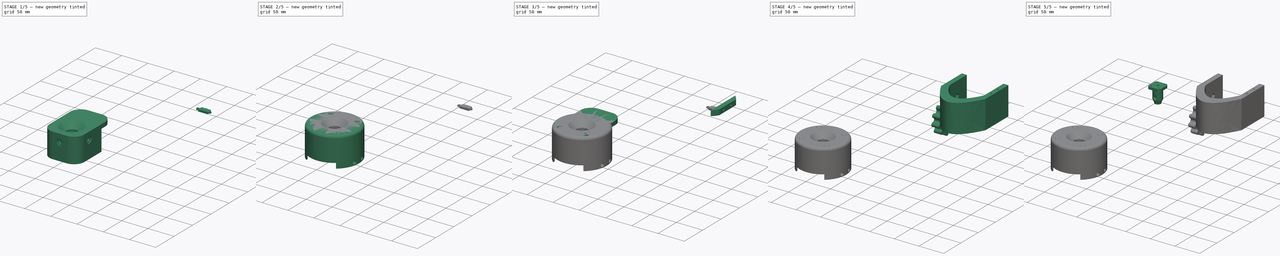
[diagram: build sequence overview — one tinted view per stage of 5, left to right]
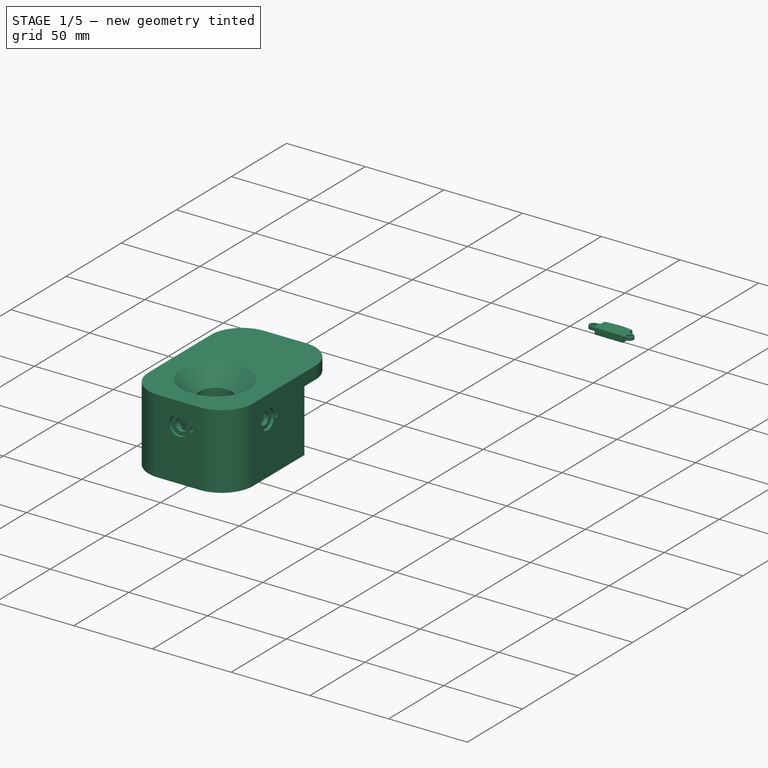
[diagram: stage 1 of 5 — iso view after this stage's code; geometry added in this stage tinted green]
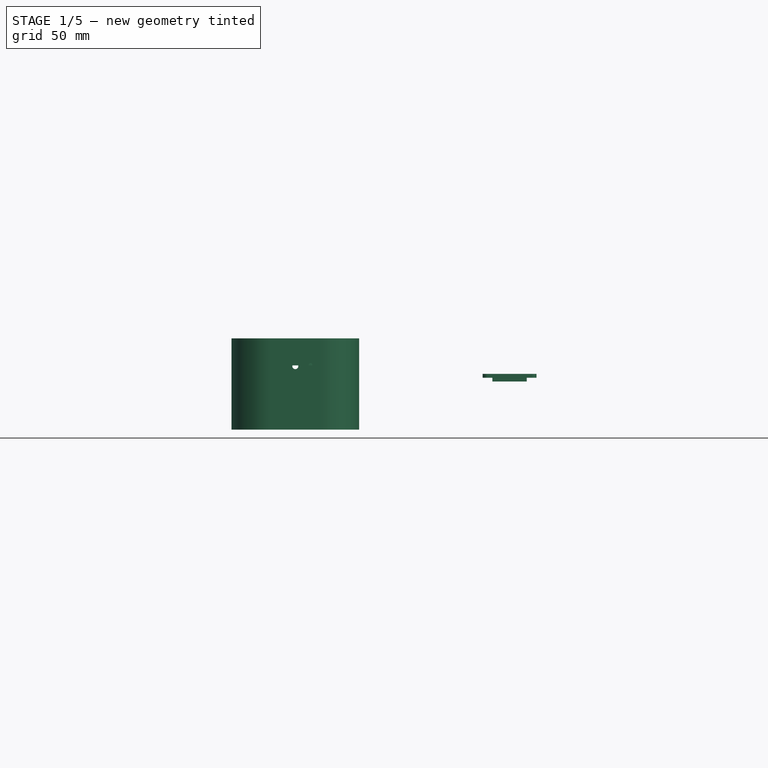
[diagram: stage 1 of 5 — front view after this stage's code; geometry added in this stage tinted green]
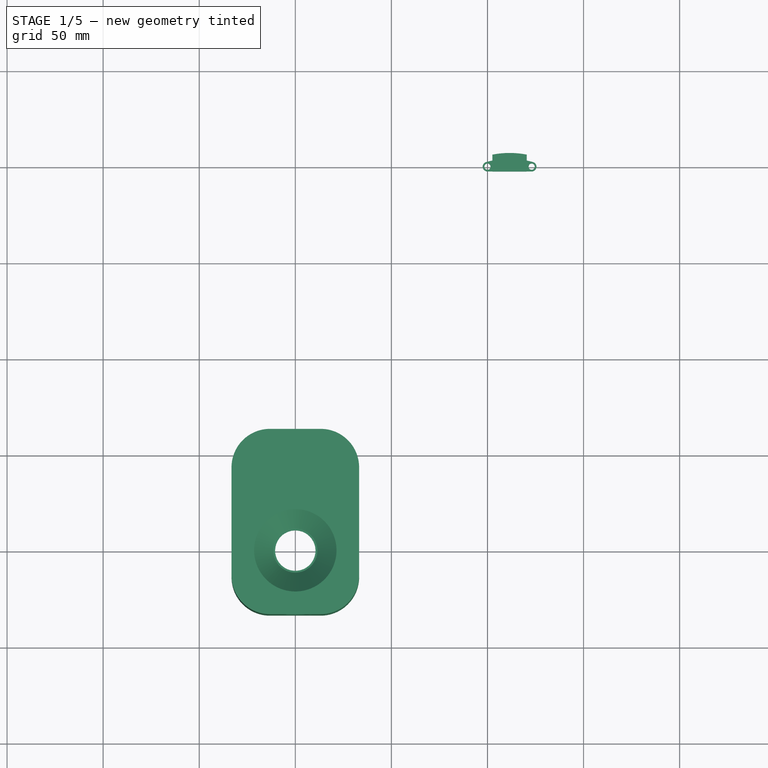
[diagram: stage 1 of 5 — top view after this stage's code; geometry added in this stage tinted green]
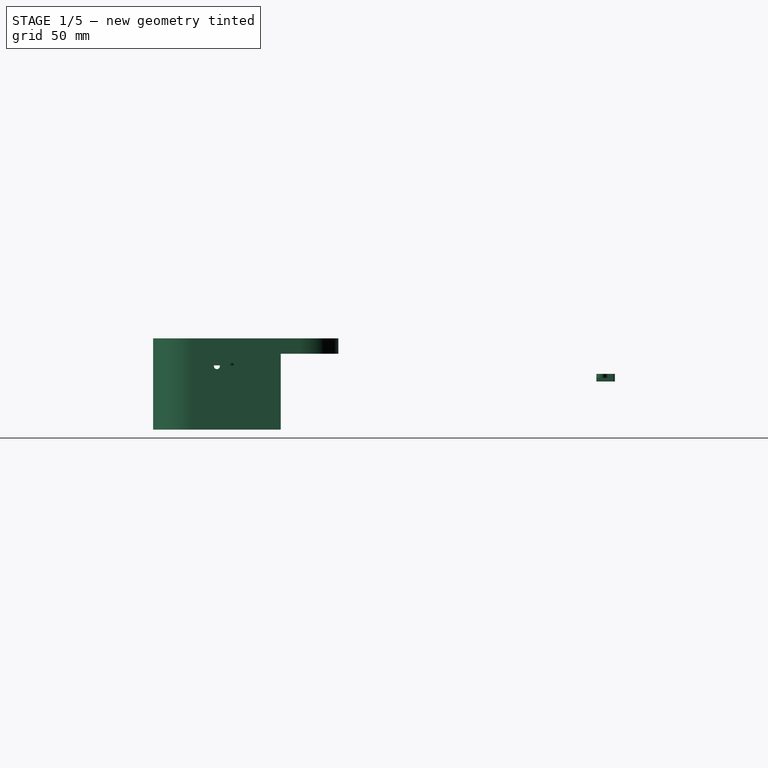
[diagram: stage 1 of 5 — right view after this stage's code; geometry added in this stage tinted green]
FCSTD DOCUMENT  (FreeCAD 1.0R39109 (Git))
Label: housing
License: All rights reserved
LicenseURL: https://en.wikipedia.org/wiki/All_rights_reserved
objects: Sketcher::SketchObject×63, PartDesign::Pocket×56, PartDesign::Pad×24, PartDesign::Chamfer×9, PartDesign::Body×9, PartDesign::Fillet×3, Part::Feature×2, Part::Refine×2, PartDesign::FeatureBase×2, PartDesign::Revolution×1
note: 422 computed .brp shape members not serialized (recipe doc carries the construction recipe); baked Part::Feature solids carry a one-line shape summary decoded from their .brp

FEATURE [PartDesign::Body] Body017  label="to_table_mount"
  AllowCompound = false
  Group = -> [Sketch126,Pad066,Sketch127,Pocket083,Sketch144,Pocket097,Pad073,Sketch147,Pocket099]
  Origin = -> Origin017
  Placement = pos=(-71.28,-233.15,-123.29) rot=(0,1,0;4.71239rad)
  Tip = -> Pocket099
FEATURE [Part::Feature] Gimbal_Housing001_solid002  label="Gimbal_Housing001 (Solid)002"
  shape: bbox 71.2 x 71.2 x 37.48 mm, 7162 faces (baked)
FEATURE [Part::Refine] Gimbal_Housing001_solid003  label="Gimbal_Housing001 (Solid)003"
  Source = -> Gimbal_Housing001_solid002
FEATURE [PartDesign::FeatureBase] BaseFeature001
  BaseFeature = -> Gimbal_Housing001_solid003
  Suppressed = false
FEATURE [Sketcher::SketchObject] Sketch150
  ArcFitTolerance = 1e-06
  AttachmentSupport = -> [BaseFeature001]
  ExternalGeometry = -> [BaseFeature001]
  FullyConstrained = true
  MakeInternals = false
  MapMode = 5
  Placement = pos=(0,-5.1e-15,-23) rot=(1,0,0;3.14159rad)
  sketch-geometry (16):
    g0: LineSegment StartX=-136.5 StartY=236.5 StartZ=0 EndX=-136.5 EndY=163.5 EndZ=0
    g1: LineSegment StartX=-136.5 StartY=163.5 StartZ=0 EndX=-63.5 EndY=163.5 EndZ=0
    g2: LineSegment StartX=-63.5 StartY=163.5 StartZ=0 EndX=-63.5 EndY=236.5 EndZ=0
    g3: LineSegment StartX=-63.5 StartY=236.5 StartZ=0 EndX=-136.5 EndY=236.5 EndZ=0
    g4: LineSegment StartX=-113.2 StartY=232.7 StartZ=0 EndX=-86.8 EndY=232.7 EndZ=0
    g5: LineSegment StartX=-67.3 StartY=213.2 StartZ=0 EndX=-67.3 EndY=186.8 EndZ=0
    g6: LineSegment StartX=-113.2 StartY=167.3 StartZ=0 EndX=-86.8 EndY=167.3 EndZ=0
    g7: LineSegment StartX=-132.7 StartY=186.8 StartZ=0 EndX=-132.7 EndY=213.2 EndZ=0
    g8: ArcOfCircle CenterX=-113.2 CenterY=213.2 CenterZ=0 NormalX=0 NormalY=0 NormalZ=1 AngleXU=0 Radius=19.5 StartAngle=1.5708 EndAngle=3.14159
    g9: ArcOfCircle CenterX=-113.2 CenterY=186.8 CenterZ=0 NormalX=0 NormalY=0 NormalZ=1 AngleXU=0 Radius=19.5 StartAngle=3.14159 EndAngle=4.71239
    g10: ArcOfCircle CenterX=-86.8 CenterY=186.8 CenterZ=0 NormalX=0 NormalY=0 NormalZ=1 AngleXU=0 Radius=19.5 StartAngle=4.71239 EndAngle=6.28319
    g11: ArcOfCircle CenterX=-86.8 CenterY=213.2 CenterZ=0 NormalX=0 NormalY=0 NormalZ=1 AngleXU=0 Radius=19.5 StartAngle=2.8568e-07 EndAngle=1.5708
    g12: GeomPoint X=-73.0114 Y=226.989 Z=0
    g13: LineSegment [constr] StartX=-73.0114 StartY=226.989 StartZ=0 EndX=-72.6579 EndY=227.342 EndZ=0
    g14: LineSegment [constr] StartX=-127.342 StartY=227.342 StartZ=0 EndX=-72.6579 EndY=172.658 EndZ=0
    g15: GeomPoint [constr] X=-100 Y=200 Z=0
  constraints (46):
    c: Coincident(g0,g1)
    c: Coincident(g1,g2)
    c: Coincident(g2,g3)
    c: Coincident(g3,g0)
    c: Vertical(g0)
    c: Vertical(g2)
    c: Horizontal(g1)
    c: Horizontal(g3)
    c: DistanceX(g3,g3) = 73
    c: Equal(g3,g2)
    c: Horizontal(g4)
    c: Vertical(g5)
    c: Horizontal(g6)
    c: Vertical(g7)
    c: Equal(g4,g7)
    c: Equal(g7,g6)
    c: Equal(g6,g5)
    c: Coincident(g8,g4)
    c: Coincident(g8,g7)
    c: Coincident(g9,g7)
    c: Coincident(g9,g6)
    c: Coincident(g10,g5)
    c: Coincident(g10,g6)
    c: Coincident(g11,g4)
    c: Coincident(g11,g5)
    c: PointOnObject(g12,g11)
    c: Distance(g-8,g12) = 0.5
    c: DistanceY(g4,g-3) = 0.5
    c: DistanceX(g5,g-4) = 0.5
    c: Horizontal(g5,g-4)
    c: Vertical(g4,g-3)
    c: Coincident(g13,g12)
    c: Coincident(g13,g-8)
    c: Perpendicular(g11,g13)
    c: Equal(g11,g8)
    c: Equal(g11,g9)
    c: Equal(g11,g10)
    c: Vertical(g-3,g4)
    c: Horizontal(g7,g-6)
    c: Vertical(g6,g-5)
    c: DistanceY(g-5,g6) = 0.5
    c: DistanceX(g-6,g7) = 0.5
    c: Coincident(g14,g-7)
    c: Coincident(g14,g-9)
    c: Symmetric(g14,g14,g15)
    c: Symmetric(g0,g1,g15)
FEATURE [PartDesign::Pocket] Pocket102
  BaseFeature = -> BaseFeature001
  Direction = (0,0,1)
  Length = 5
  Length2 = 5
  Profile = -> Sketch150
  ReferenceAxis = -> Sketch150 [N_Axis]
  Refine = true
  Suppressed = false
  Type = 1
FEATURE [Sketcher::SketchObject] Sketch151
  ArcFitTolerance = 1e-06
  AttachmentSupport = -> [Pocket102]
  ExternalGeometry = -> [Pocket102]
  FullyConstrained = true
  MakeInternals = false
  MapMode = 5
  Placement = pos=(0,-5.1e-15,-23) rot=(1,0,0;3.14159rad)
  sketch-geometry (14):
    g0: ArcOfCircle CenterX=-113.2 CenterY=213.2 CenterZ=0 NormalX=0 NormalY=0 NormalZ=1 AngleXU=0 Radius=20 StartAngle=1.5708 EndAngle=3.14159
    g1: ArcOfCircle CenterX=-86.8 CenterY=213.2 CenterZ=0 NormalX=0 NormalY=0 NormalZ=1 AngleXU=0 Radius=20 StartAngle=2.78538e-07 EndAngle=1.5708
    g2: LineSegment StartX=-133.2 StartY=213.2 StartZ=0 EndX=-133.2 EndY=166.8 EndZ=0
    g3: LineSegment StartX=-113.2 StartY=233.2 StartZ=0 EndX=-86.8 EndY=233.2 EndZ=0
    g4: LineSegment StartX=-66.8 StartY=213.2 StartZ=0 EndX=-66.8 EndY=166.8 EndZ=0
    g5: LineSegment StartX=-86.8 StartY=171.3 StartZ=0 EndX=-113.2 EndY=171.3 EndZ=0
    g6: ArcOfCircle CenterX=-113.2 CenterY=186.8 CenterZ=0 NormalX=0 NormalY=0 NormalZ=1 AngleXU=0 Radius=15.5 StartAngle=3.14159 EndAngle=4.71239
    g7: LineSegment StartX=-128.7 StartY=213.2 StartZ=0 EndX=-128.7 EndY=186.8 EndZ=0
    g8: ArcOfCircle CenterX=-113.2 CenterY=213.2 CenterZ=0 NormalX=0 NormalY=0 NormalZ=1 AngleXU=0 Radius=15.5 StartAngle=1.5708 EndAngle=3.14159
    g9: LineSegment StartX=-113.2 StartY=228.7 StartZ=0 EndX=-86.8 EndY=228.7 EndZ=0
    g10: ArcOfCircle CenterX=-86.8 CenterY=213.2 CenterZ=0 NormalX=0 NormalY=0 NormalZ=1 AngleXU=0 Radius=15.5 StartAngle=-9e-16 EndAngle=1.5708
    g11: LineSegment StartX=-71.3 StartY=213.2 StartZ=0 EndX=-71.3 EndY=186.8 EndZ=0
    g12: ArcOfCircle CenterX=-86.8 CenterY=186.8 CenterZ=0 NormalX=0 NormalY=0 NormalZ=1 AngleXU=0 Radius=15.5 StartAngle=4.71239 EndAngle=6.28319
    g13: LineSegment StartX=-133.2 StartY=166.8 StartZ=0 EndX=-66.8 EndY=166.8 EndZ=0
  constraints (38):
    c: Coincident(g0,g-5)
    c: Coincident(g1,g-3)
    c: Coincident(g2,g0)
    c: Vertical(g2)
    c: Coincident(g3,g0)
    c: Coincident(g3,g1)
    c: Horizontal(g3)
    c: Coincident(g4,g1)
    c: Vertical(g4)
    c: Vertical(g0,g-5)
    c: Vertical(g1,g-4)
    c: Horizontal(g1,g-10)
    c: Horizontal(g0,g-6)
    c: DistanceY(g-4,g1) = 0.5
    c: Tangent(g5,g6) = 1.5708
    c: Tangent(g5,g12) = 1.5708
    c: Tangent(g6,g7) = -1.5708
    c: Tangent(g7,g8) = -1.5708
    c: Tangent(g8,g9) = 1.5708
    c: Tangent(g9,g10) = 1.5708
    c: Tangent(g10,g11) = 1.5708
    c: Tangent(g11,g12) = 1.5708
    c: DistanceY(g9,g1) = 4.5
    c: Vertical(g8,g0)
    c: Horizontal(g10,g-10)
    c: Horizontal(g7,g-6)
    c: Horizontal(g11,g-10)
    c: Vertical(g1,g9)
    c: Horizontal(g9)
    c: Horizontal(g5)
    c: Vertical(g7)
    c: Vertical(g11)
    c: Horizontal(g6,g-7)
    c: Coincident(g13,g2)
    c: Horizontal(g13)
    c: Coincident(g4,g13)
    c: DistanceY(g4,g-9) = 0.5
    c: Vertical(g-9,g5)
FEATURE [PartDesign::Pad] Pad075
  BaseFeature = -> Pocket102
  Direction = (0,0,-1)
  Length = 10
  Length2 = 10
  Profile = -> Sketch151
  ReferenceAxis = -> Sketch151 [N_Axis]
  Refine = true
  Reversed = true
  Suppressed = false
  Type = 3
  UpToFace = -> Pocket102 [Face81]
FEATURE [Sketcher::SketchObject] Sketch152
  ArcFitTolerance = 1e-06
  AttachmentSupport = -> [Pocket102]
  ExternalGeometry = -> [Pocket102]
  FullyConstrained = true
  MakeInternals = false
  MapMode = 5
  Placement = pos=(0,-168.8,0) rot=(0,0.707107,0.707107;3.14159rad)
  sketch-geometry (2):
    g0: Circle CenterX=100 CenterY=1.38685e-08 CenterZ=0 NormalX=0 NormalY=0 NormalZ=1 AngleXU=0 Radius=1.55
    g1: Circle [constr] CenterX=100 CenterY=1.38685e-08 CenterZ=0 NormalX=0 NormalY=0 NormalZ=1 AngleXU=0 Radius=1.5
  constraints (5):
    c: Coincident(g1,g0)
    c: PointOnObject(g-3,g1)
    c: PointOnObject(g-4,g1)
    c: PointOnObject(g-5,g1)
    c: Radius(g0) = 1.55
FEATURE [PartDesign::Pocket] Pocket103
  BaseFeature = -> Pad075
  Direction = (0,-1,2e-16)
  Length = 5
  Length2 = 5
  Profile = -> Sketch152
  ReferenceAxis = -> Sketch152 [N_Axis]
  Refine = true
  Suppressed = false
  Type = 4
FEATURE [Sketcher::SketchObject] Sketch153
  ArcFitTolerance = 1e-06
  AttachmentSupport = -> [Pocket102]
  ExternalGeometry = -> [Pocket102]
  FullyConstrained = true
  MakeInternals = false
  MapMode = 5
  Placement = pos=(0,-167.3,0) rot=(0,0.707107,0.707107;3.14159rad)
  sketch-geometry (2):
    g0: Circle [constr] CenterX=100 CenterY=-1.2475e-07 CenterZ=0 NormalX=0 NormalY=0 NormalZ=1 AngleXU=0 Radius=3
    g1: Circle CenterX=100 CenterY=-1.2475e-07 CenterZ=0 NormalX=0 NormalY=0 NormalZ=1 AngleXU=0 Radius=3.1
  constraints (5):
    c: PointOnObject(g-3,g0)
    c: PointOnObject(g-4,g0)
    c: PointOnObject(g-5,g0)
    c: Coincident(g1,g0)
    c: Radius(g1) = 3.1
FEATURE [PartDesign::Pocket] Pocket104
  BaseFeature = -> Pocket103
  Direction = (0,-1,2e-16)
  Length = 2
  Length2 = 5
  Profile = -> Sketch153
  ReferenceAxis = -> Sketch153 [N_Axis]
  Refine = true
  Suppressed = false
  Type = 4
FEATURE [Sketcher::SketchObject] Sketch154
  ArcFitTolerance = 1e-06
  AttachmentSupport = -> [Pocket102]
  ExternalGeometry = -> [Pocket102]
  FullyConstrained = true
  MakeInternals = false
  MapMode = 5
  Placement = pos=(-132.7,0,0) rot=(0.57735,-0.57735,-0.57735;2.0944rad)
  sketch-geometry (3):
    g0: Circle [constr] CenterX=200 CenterY=-1.00082e-07 CenterZ=0 NormalX=0 NormalY=0 NormalZ=1 AngleXU=0 Radius=3
    g1: Circle CenterX=200 CenterY=-1.00082e-07 CenterZ=0 NormalX=0 NormalY=0 NormalZ=1 AngleXU=0 Radius=1.55
    g2: Circle CenterX=200 CenterY=-1.00082e-07 CenterZ=0 NormalX=0 NormalY=0 NormalZ=1 AngleXU=0 Radius=3.1
  constraints (7):
    c: PointOnObject(g-3,g0)
    c: PointOnObject(g-4,g0)
    c: PointOnObject(g-5,g0)
    c: Diameter(g1) = 3.1
    c: Coincident(g1,g0)
    c: Coincident(g2,g0)
    c: Radius(g2) = 3.1
FEATURE [PartDesign::Pocket] Pocket105
  BaseFeature = -> Pocket104
  Direction = (1,0,0)
  Length = 2
  Length2 = 5
  Profile = -> Sketch154
  ReferenceAxis = -> Sketch154 [N_Axis]
  Refine = true
  Suppressed = false
  Type = 4
FEATURE [PartDesign::Pocket] Pocket106
  BaseFeature = -> Pocket105
  Direction = (1,0,0)
  Length = 5
  Length2 = 5
  Profile = -> Pocket105 [Face378]
  Refine = true
  Suppressed = false
  Type = 0
FEATURE [Sketcher::SketchObject] Sketch155
  ArcFitTolerance = 1e-06
  AttachmentSupport = -> [Pocket102]
  ExternalGeometry = -> [Pocket102]
  FullyConstrained = true
  MakeInternals = false
  MapMode = 5
  Placement = pos=(0,-232.7,0) rot=(1,0,0;1.5708rad)
  sketch-geometry (11):
    g0: Circle [constr] CenterX=-100 CenterY=-8.93074e-08 CenterZ=0 NormalX=0 NormalY=0 NormalZ=1 AngleXU=0 Radius=6
    g1: Circle CenterX=-100 CenterY=-8.93074e-08 CenterZ=0 NormalX=0 NormalY=0 NormalZ=1 AngleXU=0 Radius=3.8
    g2: Circle CenterX=-100 CenterY=-8.93074e-08 CenterZ=0 NormalX=0 NormalY=0 NormalZ=1 AngleXU=0 Radius=6.1
    g3: ArcOfCircle [constr] CenterX=-92.1 CenterY=0.75 CenterZ=0 NormalX=0 NormalY=0 NormalZ=1 AngleXU=0 Radius=0.8 StartAngle=1e-16 EndAngle=3.14159
    g4: ArcOfCircle [constr] CenterX=-92.1 CenterY=-0.75 CenterZ=0 NormalX=0 NormalY=0 NormalZ=1 AngleXU=0 Radius=0.8 StartAngle=3.14159 EndAngle=6.28319
    g5: LineSegment [constr] StartX=-91.3 StartY=0.75 StartZ=0 EndX=-91.3 EndY=-0.75 EndZ=0
    g6: LineSegment [constr] StartX=-92.9 StartY=0.75 StartZ=0 EndX=-92.9 EndY=-0.75 EndZ=0
    g7: LineSegment StartX=-93 StartY=0.75 StartZ=0 EndX=-93 EndY=-0.75 EndZ=0
    g8: ArcOfCircle CenterX=-92.1 CenterY=-0.75 CenterZ=0 NormalX=0 NormalY=0 NormalZ=1 AngleXU=0 Radius=0.9 StartAngle=3.14159 EndAngle=6.28319
    g9: LineSegment StartX=-91.2 StartY=0.75 StartZ=0 EndX=-91.2 EndY=-0.75 EndZ=0
    g10: ArcOfCircle CenterX=-92.1 CenterY=0.75 CenterZ=0 NormalX=0 NormalY=0 NormalZ=1 AngleXU=0 Radius=0.9 StartAngle=0 EndAngle=3.14159
  constraints (25):
    c: PointOnObject(g-3,g0)
    c: PointOnObject(g-4,g0)
    c: PointOnObject(g-5,g0)
    c: Coincident(g1,g0)
    c: Coincident(g2,g0)
    c: Radius(g2) = 6.1
    c: Radius(g1) = 3.8
    c: Tangent(g3,g5) = 1.5708
    c: Tangent(g3,g6) = -1.5708
    c: Tangent(g4,g5) = 1.5708
    c: Tangent(g4,g6) = -1.5708
    c: Equal(g3,g4)
    c: Vertical(g5)
    c: PointOnObject(g-6,g3)
    c: PointOnObject(g-7,g4)
    c: PointOnObject(g-8,g4)
    c: PointOnObject(g-9,g6)
    c: Tangent(g7,g8) = -1.5708
    c: Tangent(g7,g10) = -1.5708
    c: Tangent(g8,g9) = 1.5708
    c: Tangent(g9,g10) = 1.5708
    c: Vertical(g9)
    c: Coincident(g10,g3)
    c: Coincident(g4,g8)
    c: DistanceX(g7,g3) = 0.1
FEATURE [PartDesign::Pocket] Pocket107
  BaseFeature = -> Pocket106
  Direction = (0,1,-2e-16)
  Length = 1.5
  Length2 = 5
  Profile = -> Sketch155
  ReferenceAxis = -> Sketch155 [N_Axis]
  Refine = true
  Suppressed = false
  Type = 4
FEATURE [PartDesign::Pocket] Pocket108
  BaseFeature = -> Pocket107
  Direction = (0,1,0)
  Length = 5
  Length2 = 5
  Profile = -> Pocket107 [Edge601,Face114]
  Refine = true
  Suppressed = false
  Type = 0
FEATURE [PartDesign::Pocket] Pocket109
  BaseFeature = -> Pocket108
  Direction = (0,1,0)
  Length = 5
  Length2 = 5
  Profile = -> Pocket108 [Face325]
  Refine = true
  Suppressed = false
  Type = 0
FEATURE [Sketcher::SketchObject] Sketch156
  ArcFitTolerance = 1e-06
  AttachmentSupport = -> [Pocket102]
  ExternalGeometry = -> [Pocket102]
  FullyConstrained = true
  MakeInternals = false
  MapMode = 5
  Placement = pos=(-67.3,0,0) rot=(0.57735,0.57735,0.57735;2.0944rad)
  sketch-geometry (11):
    g0: Circle [constr] CenterX=-200 CenterY=-1.71692e-07 CenterZ=0 NormalX=0 NormalY=0 NormalZ=1 AngleXU=0 Radius=6
    g1: Circle CenterX=-200 CenterY=-1.71692e-07 CenterZ=0 NormalX=0 NormalY=0 NormalZ=1 AngleXU=0 Radius=6.1
    g2: Circle CenterX=-200 CenterY=-1.71692e-07 CenterZ=0 NormalX=0 NormalY=0 NormalZ=1 AngleXU=0 Radius=3.8
    g3: ArcOfCircle [constr] CenterX=-192.1 CenterY=0.750002 CenterZ=0 NormalX=0 NormalY=0 NormalZ=1 AngleXU=0 Radius=0.799999 StartAngle=1e-16 EndAngle=3.14159
    g4: ArcOfCircle [constr] CenterX=-192.1 CenterY=-0.750001 CenterZ=0 NormalX=0 NormalY=0 NormalZ=1 AngleXU=0 Radius=0.799999 StartAngle=3.14159 EndAngle=6.28319
    g5: LineSegment [constr] StartX=-191.3 StartY=0.750002 StartZ=0 EndX=-191.3 EndY=-0.750001 EndZ=0
    g6: LineSegment [constr] StartX=-192.9 StartY=0.750002 StartZ=0 EndX=-192.9 EndY=-0.750001 EndZ=0
    g7: LineSegment StartX=-193 StartY=0.750002 StartZ=0 EndX=-193 EndY=-0.750001 EndZ=0
    g8: ArcOfCircle CenterX=-192.1 CenterY=-0.750001 CenterZ=0 NormalX=0 NormalY=0 NormalZ=1 AngleXU=0 Radius=0.899999 StartAngle=3.14159 EndAngle=6.28319
    g9: LineSegment StartX=-191.2 StartY=0.750002 StartZ=0 EndX=-191.2 EndY=-0.750001 EndZ=0
    g10: ArcOfCircle CenterX=-192.1 CenterY=0.750002 CenterZ=0 NormalX=0 NormalY=0 NormalZ=1 AngleXU=0 Radius=0.899999 StartAngle=0 EndAngle=3.14159
  constraints (25):
    c: PointOnObject(g-3,g0)
    c: PointOnObject(g-4,g0)
    c: PointOnObject(g-5,g0)
    c: Coincident(g1,g0)
    c: Coincident(g2,g0)
    c: Radius(g2) = 3.8
    c: Radius(g1) = 6.1
    c: Tangent(g3,g5) = 1.5708
    c: Tangent(g3,g6) = -1.5708
    c: Tangent(g4,g5) = 1.5708
    c: Tangent(g4,g6) = -1.5708
    c: Equal(g3,g4)
    c: Vertical(g5)
    c: PointOnObject(g-7,g3)
    c: PointOnObject(g-6,g3)
    c: PointOnObject(g-8,g4)
    c: PointOnObject(g-9,g5)
    c: Tangent(g7,g8) = -1.5708
    c: Tangent(g7,g10) = -1.5708
    c: Tangent(g8,g9) = 1.5708
    c: Tangent(g9,g10) = 1.5708
    c: Vertical(g9)
    c: Coincident(g10,g3)
    c: Coincident(g4,g8)
    c: DistanceX(g3,g9) = 0.1
FEATURE [PartDesign::Pocket] Pocket110
  BaseFeature = -> Pocket109
  Direction = (-1,0,0)
  Length = 1.5
  Length2 = 5
  Profile = -> Sketch156
  ReferenceAxis = -> Sketch156 [N_Axis]
  Refine = true
  Suppressed = false
  Type = 4
FEATURE [PartDesign::Pocket] Pocket111
  BaseFeature = -> Pocket110
  Direction = (-1,0,0)
  Length = 5
  Length2 = 5
  Profile = -> Pocket110 [Face393,Face179]
  Refine = true
  Suppressed = false
  Type = 0
FEATURE [Sketcher::SketchObject] Sketch157
  ArcFitTolerance = 1e-06
  AttachmentSupport = -> [Pocket111]
  ExternalGeometry = -> [Pocket111]
  FullyConstrained = true
  MakeInternals = false
  MapMode = 5
  Placement = pos=(0,3.2e-15,14.45) rot=(0,0,1;0rad)
  sketch-geometry (8):
    g0: LineSegment StartX=-133.2 StartY=-166.8 StartZ=0 EndX=-66.8 EndY=-166.8 EndZ=0
    g1: LineSegment StartX=-66.8 StartY=-166.8 StartZ=0 EndX=-66.8 EndY=-156.8 EndZ=0
    g2: LineSegment StartX=-86.8 StartY=-136.8 StartZ=0 EndX=-113.2 EndY=-136.8 EndZ=0
    g3: LineSegment StartX=-133.2 StartY=-156.8 StartZ=0 EndX=-133.2 EndY=-166.8 EndZ=0
    g4: ArcOfCircle CenterX=-86.8 CenterY=-156.8 CenterZ=0 NormalX=0 NormalY=0 NormalZ=1 AngleXU=0 Radius=20 StartAngle=0 EndAngle=1.5708
    g5: GeomPoint [constr] X=-66.8 Y=-136.8 Z=0
    g6: ArcOfCircle CenterX=-113.2 CenterY=-156.8 CenterZ=0 NormalX=0 NormalY=0 NormalZ=1 AngleXU=0 Radius=20 StartAngle=1.5708 EndAngle=3.14159
    g7: GeomPoint [constr] X=-133.2 Y=-136.8 Z=0
  constraints (18):
    c: Coincident(g0,g1)
    c: Coincident(g3,g0)
    c: Horizontal(g2)
    c: Vertical(g1)
    c: Vertical(g3)
    c: Coincident(g0,g-3)
    c: Coincident(g-3,g0)
    c: PointOnObject(g5,g1)
    c: PointOnObject(g5,g2)
    c: Tangent(g1,g4) = -1.5708
    c: Tangent(g2,g4) = -1.5708
    c: PointOnObject(g7,g2)
    c: PointOnObject(g7,g3)
    c: Tangent(g2,g6) = -1.5708
    c: Tangent(g3,g6) = -1.5708
    c: Equal(g4,g6)
    c: DistanceY(g0,g2) = 30
    c: Equal(g4,g-4)
FEATURE [PartDesign::Pad] Pad076
  BaseFeature = -> Pocket111
  Direction = (0,0,1)
  Length = 8
  Length2 = 10
  Profile = -> Sketch157
  ReferenceAxis = -> Sketch157 [N_Axis]
  Refine = true
  Reversed = true
  Suppressed = false
  Type = 0
FEATURE [PartDesign::Pad] Pad077
  BaseFeature = -> Pad076
  Direction = (0,0,-1)
  Length = 10
  Length2 = 10
  Profile = -> Pad076 [Face6,Face777]
  Refine = true
  Suppressed = false
  Type = 0
FEATURE [PartDesign::Pocket] Pocket112
  BaseFeature = -> Pad077
  Direction = (0,2e-16,1)
  Length = 33.4
  Length2 = 5
  Profile = -> Pad077 [Face649]
  Refine = true
  Suppressed = false
  Type = 0
FEATURE [PartDesign::Pocket] Pocket113
  BaseFeature = -> Pocket112
  Direction = (0,2e-16,1)
  Length = 0.05
  Length2 = 5
  Profile = -> Pocket112 [Face603]
  Refine = true
  Suppressed = false
  Type = 0
FEATURE [Sketcher::SketchObject] Sketch158
  ArcFitTolerance = 1e-06
  AttachmentSupport = -> [Pocket113]
  ExternalGeometry = -> [Pocket113]
  FullyConstrained = true
  MakeInternals = false
  MapMode = 5
  Placement = pos=(0,0,-33) rot=(1,0,0;3.14159rad)
  sketch-geometry (8):
    g0: LineSegment StartX=-128.7 StartY=202.1 StartZ=0 EndX=-128.7 EndY=197.9 EndZ=0
    g1: LineSegment StartX=-128.7 StartY=197.9 StartZ=0 EndX=-122.5 EndY=197.9 EndZ=0
    g2: LineSegment StartX=-122.5 StartY=197.9 StartZ=0 EndX=-122.5 EndY=202.1 EndZ=0
    g3: LineSegment StartX=-122.5 StartY=202.1 StartZ=0 EndX=-128.7 EndY=202.1 EndZ=0
    g4: LineSegment StartX=-97.9 StartY=177.5 StartZ=0 EndX=-102.1 EndY=177.5 EndZ=0
    g5: LineSegment StartX=-102.1 StartY=177.5 StartZ=0 EndX=-102.1 EndY=171.3 EndZ=0
    g6: LineSegment StartX=-102.1 StartY=171.3 StartZ=0 EndX=-97.9 EndY=171.3 EndZ=0
    g7: LineSegment StartX=-97.9 StartY=171.3 StartZ=0 EndX=-97.9 EndY=177.5 EndZ=0
  constraints (20):
    c: Coincident(g0,g1)
    c: Coincident(g1,g2)
    c: Coincident(g2,g3)
    c: Coincident(g3,g0)
    c: Vertical(g0)
    c: Vertical(g2)
    c: Horizontal(g1)
    c: Horizontal(g3)
    c: Coincident(g0,g-3)
    c: Coincident(g1,g-5)
    c: Coincident(g4,g5)
    c: Coincident(g5,g6)
    c: Coincident(g6,g7)
    c: Coincident(g7,g4)
    c: Horizontal(g4)
    c: Horizontal(g6)
    c: Vertical(g5)
    c: Vertical(g7)
    c: Coincident(g4,g-4)
    c: Coincident(g5,g-6)
FEATURE [PartDesign::Pocket] Pocket114
  BaseFeature = -> Pocket113
  Direction = (0,0,1)
  Length = 10
  Length2 = 5
  Profile = -> Sketch158
  ReferenceAxis = -> Sketch158 [N_Axis]
  Refine = true
  Suppressed = false
  Type = 0
FEATURE [Sketcher::SketchObject] Sketch187
  ArcFitTolerance = 1e-06
  AttachmentSupport = -> [XY_Plane022]
  FullyConstrained = true
  MakeInternals = false
  MapMode = 5
  sketch-geometry (18):
    g0: Circle CenterX=0 CenterY=0 CenterZ=0 NormalX=0 NormalY=0 NormalZ=1 AngleXU=0 Radius=1.6
    g1: LineSegment [constr] StartX=0 StartY=0 StartZ=0 EndX=23 EndY=0 EndZ=0
    g2: Circle CenterX=23 CenterY=0 CenterZ=0 NormalX=0 NormalY=0 NormalZ=1 AngleXU=0 Radius=1.6
    g3: LineSegment [constr] StartX=11.5 StartY=0 StartZ=0 EndX=11.5 EndY=-39.95 EndZ=0
    g4: Circle [constr] CenterX=11.5 CenterY=-39.95 CenterZ=0 NormalX=0 NormalY=0 NormalZ=1 AngleXU=0 Radius=44.05
    g5: Circle [constr] CenterX=11.5 CenterY=-39.95 CenterZ=0 NormalX=0 NormalY=0 NormalZ=1 AngleXU=0 Radius=11.2
    g6: ArcOfCircle CenterX=23 CenterY=0 CenterZ=0 NormalX=0 NormalY=0 NormalZ=1 AngleXU=0 Radius=2.5 StartAngle=4.71239 EndAngle=7.43622
    g7: LineSegment [constr] StartX=23 StartY=0 StartZ=0 EndX=23 EndY=-2.5 EndZ=0
    g8: LineSegment [constr] StartX=0 StartY=0 StartZ=0 EndX=0 EndY=-2.5 EndZ=0
    g9: ArcOfCircle CenterX=0 CenterY=0 CenterZ=0 NormalX=0 NormalY=0 NormalZ=1 AngleXU=0 Radius=2.5 StartAngle=1.98856 EndAngle=4.71239
    g10: LineSegment StartX=23 StartY=-2.5 StartZ=0 EndX=0 EndY=-2.5 EndZ=0
    g11: LineSegment StartX=2.575 StartY=3.18638 StartZ=0 EndX=2.575 EndY=6.27121 EndZ=0
    g12: LineSegment StartX=20.425 StartY=3.18638 StartZ=0 EndX=20.425 EndY=6.27121 EndZ=0
    g13: ArcOfCircle CenterX=11.5 CenterY=-39.95 CenterZ=0 NormalX=0 NormalY=0 NormalZ=1 AngleXU=0 Radius=47.075 StartAngle=1.38005 EndAngle=1.76154
    g14: LineSegment [constr] StartX=2.575 StartY=6.27121 StartZ=0 EndX=20.425 EndY=6.27121 EndZ=0
    g15: LineSegment [constr] StartX=11.5 StartY=6.27121 StartZ=0 EndX=11.5 EndY=0 EndZ=0
    g16: ArcOfCircle CenterX=11.5 CenterY=-39.95 CenterZ=0 NormalX=0 NormalY=0 NormalZ=1 AngleXU=0 Radius=44.05 StartAngle=1.28274 EndAngle=1.36677
    g17: ArcOfCircle CenterX=11.5 CenterY=-39.95 CenterZ=0 NormalX=0 NormalY=0 NormalZ=1 AngleXU=0 Radius=44.05 StartAngle=1.77482 EndAngle=1.85886
  constraints (47):
    c: Diameter(g0) = 3.2
    c: Coincident(g0,g-1)
    c: Coincident(g1,g0)
    c: PointOnObject(g1,g-1)
    c: DistanceX(g1,g1) = 23
    c: Coincident(g2,g1)
    c: Equal(g0,g2)
    c: Symmetric(g1,g1,g3)
    c: Vertical(g3)
    c: Coincident(g4,g3)
    c: Coincident(g5,g3)
    c: Diameter(g5) = 22.4
    c: DistanceY(g3,g3) = 39.95
    c: Diameter(g4) = 88.1
    c: Coincident(g6,g1)
    c: Coincident(g7,g1)
    c: Coincident(g7,g6)
    c: Vertical(g7)
    c: Diameter(g6) = 5
    c: Coincident(g8,g0)
    c: PointOnObject(g8,g-2)
    c: PointOnObject(g17,g4)
    c: Coincident(g9,g0)
    c: Coincident(g9,g8)
    c: Tangent(g10,g6) = 1.5708
    c: Coincident(g10,g8)
    c: PointOnObject(g11,g4)
    c: Vertical(g11)
    c: PointOnObject(g12,g4)
    c: Vertical(g12)
    c: Coincident(g13,g3)
    c: Coincident(g13,g12)
    c: Coincident(g13,g11)
    c: Coincident(g14,g11)
    c: Coincident(g14,g12)
    c: Horizontal(g14)
    c: Symmetric(g14,g14,g15)
    c: Coincident(g15,g3)
    c: Diameter(g13) = 94.15
    c: Coincident(g16,g3)
    c: PointOnObject(g16,g12)
    c: Coincident(g17,g3)
    c: PointOnObject(g17,g11)
    c: PointOnObject(g6,g4)
    c: Coincident(g16,g6)
    c: Coincident(g9,g17)
    c: DistanceX(g14,g14) = 17.85
FEATURE [Sketcher::SketchObject] Sketch188
  ArcFitTolerance = 1e-06
  AttachmentSupport = -> [Chamfer010]
  ExternalGeometry = -> [Chamfer010]
  FullyConstrained = true
  MakeInternals = false
  MapMode = 5
  Placement = pos=(0,0,0.45) rot=(1,0,0;3.14159rad)
  sketch-geometry (1):
    g0: Circle [constr] CenterX=-100 CenterY=200 CenterZ=0 NormalX=0 NormalY=0 NormalZ=1 AngleXU=0 Radius=11.2
  constraints (3):
    c: PointOnObject(g-3,g0)
    c: PointOnObject(g-4,g0)
    c: PointOnObject(g-4,g0)
FEATURE [PartDesign::Body] Body020  label="gimbal_housing_top"
  AllowCompound = false
  BaseFeature = -> Gimbal_Housing001_solid003
  Group = -> [BaseFeature001,Sketch150,Pocket102,Sketch151,Sketch152,Sketch153,Sketch154,Sketch155,Sketch156,Pad075,Pocket103,Pocket104,Pocket105,Pocket106,Pocket107,Pocket108,Pocket109,Pocket110,Pocket111,Sketch157,Pad076,Pad077,Pocket112,Pocket113,Sketch158,Pocket114,Pocket101,Sketch149,Pocket115,Sketch159,Pocket116,Sketch167,Sketch169,Sketch170,Sketch172,Revolution001,Pocket125,Sketch173,Pad078,Sketch174,+20 more]
  Origin = -> Origin020
  Tip = -> Chamfer010
FEATURE [PartDesign::Pad] Pad083
  Direction = (0,0,1)
  Length = 6
  Length2 = -4
  Profile = -> Sketch187
  ReferenceAxis = -> Sketch187 [N_Axis]
  Refine = true
  Reversed = true
  Suppressed = false
  Type = 4
FEATURE [Sketcher::SketchObject] Sketch189
  ArcFitTolerance = 1e-06
  AttachmentSupport = -> [Pad083]
  ExternalGeometry = -> [Pad083]
  FullyConstrained = true
  MakeInternals = false
  MapMode = 5
  Placement = pos=(0,0,-6) rot=(1,0,0;3.14159rad)
  sketch-geometry (4):
    g0: LineSegment StartX=2.575 StartY=-6.27121 StartZ=0 EndX=2.575 EndY=2.5 EndZ=0
    g1: LineSegment StartX=20.425 StartY=-6.27121 StartZ=0 EndX=20.425 EndY=2.5 EndZ=0
    g2: LineSegment StartX=2.575 StartY=2.5 StartZ=0 EndX=20.425 EndY=2.5 EndZ=0
    g3: ArcOfCircle CenterX=11.5 CenterY=39.95 CenterZ=0 NormalX=0 NormalY=0 NormalZ=1 AngleXU=0 Radius=47.075 StartAngle=4.52164 EndAngle=4.90313
  constraints (11):
    c: Coincident(g0,g-3)
    c: PointOnObject(g0,g-5)
    c: Vertical(g0)
    c: Coincident(g1,g-4)
    c: PointOnObject(g1,g-5)
    c: Vertical(g1)
    c: Coincident(g2,g0)
    c: Coincident(g2,g1)
    c: Coincident(g3,g-6)
    c: PointOnObject(g3,g1)
    c: Coincident(g3,g0)
FEATURE [PartDesign::Pad] Pad084
  BaseFeature = -> Pad083
  Direction = (0,0,-1)
  Length = 2
  Length2 = 10
  Profile = -> Sketch189
  ReferenceAxis = -> Sketch189 [N_Axis]
  Refine = true
  Suppressed = false
  Type = 0
FEATURE [PartDesign::Body] Body022  label="wire_holder"
  AllowCompound = false
  Group = -> [Sketch187,Pad083,Sketch189,Pad084]
  Origin = -> Origin022
  Placement = pos=(-111.495,-160.075,-35.55) rot=(0,0,1;0rad)
  Tip = -> Pad084
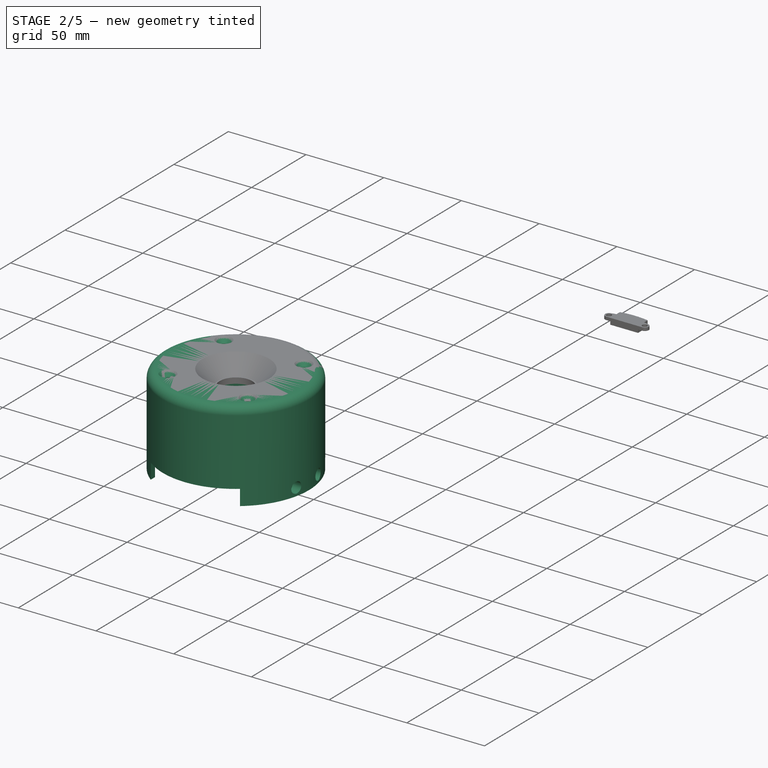
[diagram: stage 2 of 5 — iso view after this stage's code; geometry added in this stage tinted green]
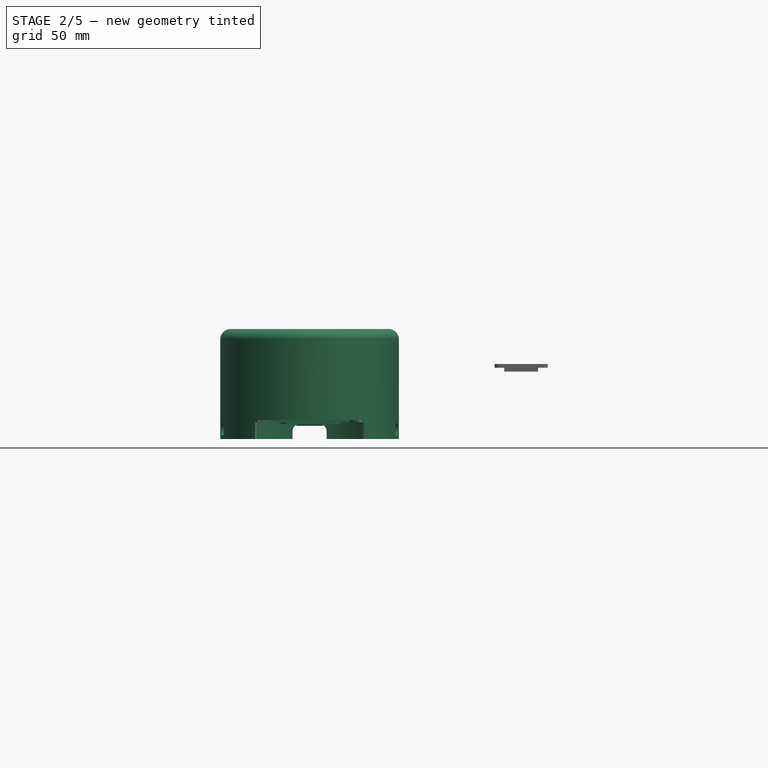
[diagram: stage 2 of 5 — front view after this stage's code; geometry added in this stage tinted green]
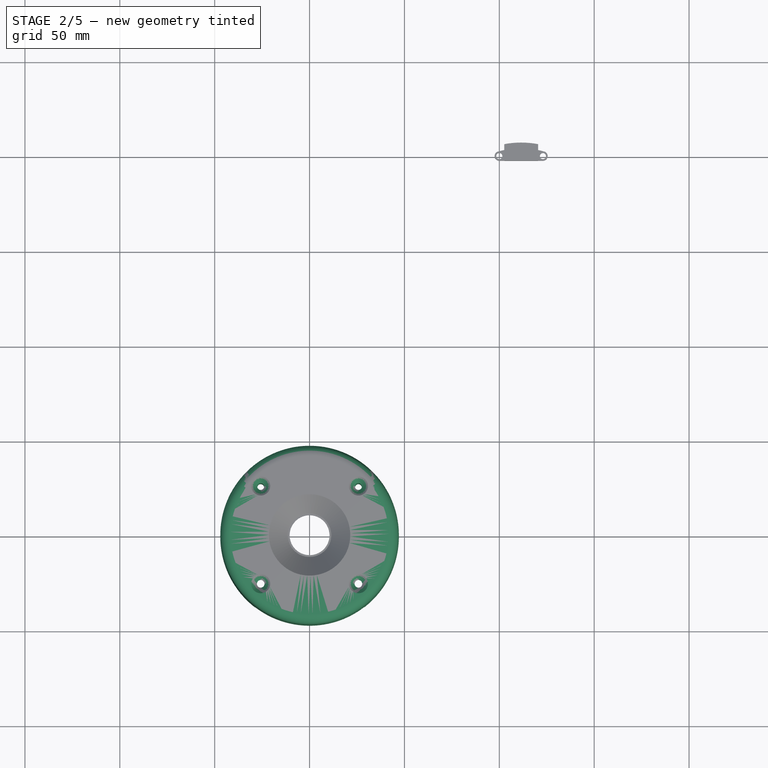
[diagram: stage 2 of 5 — top view after this stage's code; geometry added in this stage tinted green]
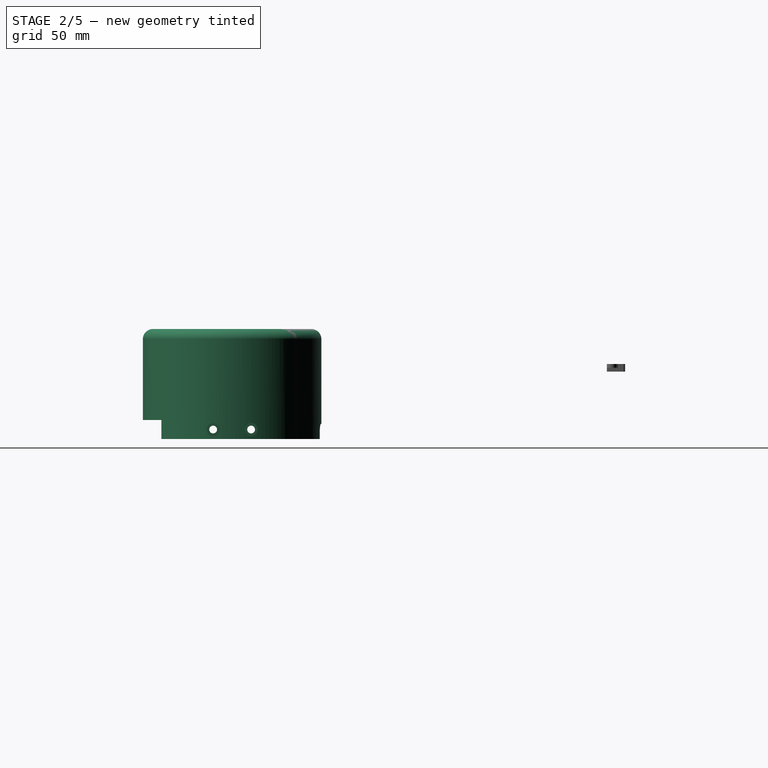
[diagram: stage 2 of 5 — right view after this stage's code; geometry added in this stage tinted green]
FEATURE [PartDesign::Pocket] Pocket101
  BaseFeature = -> Pocket114
  Direction = (0,0,1)
  Length = 5
  Length2 = 5
  Profile = -> Pocket114 [Face630]
  Refine = true
  Suppressed = false
  Type = 1
FEATURE [Sketcher::SketchObject] Sketch149
  ArcFitTolerance = 1e-06
  AttachmentSupport = -> [Pocket101]
  ExternalGeometry = -> [Pocket101]
  FullyConstrained = true
  MakeInternals = false
  MapMode = 5
  Placement = pos=(0,0,-33) rot=(1,0,0;3.14159rad)
  sketch-geometry (10):
    g0: ArcOfCircle CenterX=-113.2 CenterY=186.8 CenterZ=0 NormalX=0 NormalY=0 NormalZ=1 AngleXU=0 Radius=20 StartAngle=3.14234 EndAngle=4.71314
    g1: LineSegment StartX=-143.17 StartY=186.785 StartZ=0 EndX=-143.17 EndY=156.8 EndZ=0
    g2: LineSegment StartX=-143.17 StartY=156.8 StartZ=0 EndX=-113.185 EndY=156.8 EndZ=0
    g3: LineSegment StartX=-113.185 StartY=156.8 StartZ=0 EndX=-113.185 EndY=166.8 EndZ=0
    g4: LineSegment StartX=-133.2 StartY=186.785 StartZ=0 EndX=-143.17 EndY=186.785 EndZ=0
    g5: ArcOfCircle CenterX=-86.8 CenterY=186.8 CenterZ=0 NormalX=0 NormalY=0 NormalZ=1 AngleXU=0 Radius=20 StartAngle=4.71314 EndAngle=6.28393
    g6: LineSegment StartX=-86.7851 StartY=166.8 StartZ=0 EndX=-86.7851 EndY=156.8 EndZ=0
    g7: LineSegment StartX=-86.7851 StartY=156.8 StartZ=0 EndX=-56.8 EndY=156.8 EndZ=0
    g8: LineSegment StartX=-56.8 StartY=156.8 StartZ=0 EndX=-56.8 EndY=186.815 EndZ=0
    g9: LineSegment StartX=-56.8 StartY=186.815 StartZ=0 EndX=-66.8 EndY=186.815 EndZ=0
  constraints (30):
    c: PointOnObject(g0,g-5)
    c: PointOnObject(g0,g-6)
    c: Equal(g-3,g0)
    c: Coincident(g0,g-4)
    c: Coincident(g1,g2)
    c: Coincident(g2,g3)
    c: Coincident(g4,g1)
    c: Vertical(g1)
    c: Vertical(g3)
    c: Horizontal(g2)
    c: Horizontal(g4)
    c: Equal(g2,g1)
    c: Coincident(g3,g0)
    c: Coincident(g4,g0)
    c: DistanceY(g3,g3) = 10
    c: Coincident(g5,g-7)
    c: PointOnObject(g5,g-8)
    c: PointOnObject(g5,g-6)
    c: Equal(g0,g5)
    c: Coincident(g6,g7)
    c: Coincident(g7,g8)
    c: Coincident(g8,g9)
    c: Vertical(g6)
    c: Vertical(g8)
    c: Horizontal(g7)
    c: Horizontal(g9)
    c: Coincident(g6,g5)
    c: Coincident(g9,g5)
    c: Equal(g3,g6)
    c: Equal(g2,g7)
FEATURE [PartDesign::Pocket] Pocket115
  BaseFeature = -> Pocket101
  Direction = (0,0,1)
  Length = 5
  Length2 = 5
  Profile = -> Sketch149
  ReferenceAxis = -> Sketch149 [N_Axis]
  Refine = true
  Suppressed = false
  Type = 1
FEATURE [Sketcher::SketchObject] Sketch159
  ArcFitTolerance = 1e-06
  AttachmentSupport = -> [Pocket115]
  ExternalGeometry = -> [Pocket115]
  FullyConstrained = true
  MakeInternals = false
  MapMode = 5
  Placement = pos=(0,0,-33) rot=(1,0,0;3.14159rad)
  sketch-geometry (5):
    g0: Circle CenterX=-100 CenterY=200 CenterZ=0 NormalX=0 NormalY=0 NormalZ=1 AngleXU=0 Radius=22
    g1: LineSegment StartX=-133.2 StartY=233.2 StartZ=0 EndX=-133.2 EndY=166.8 EndZ=0
    g2: LineSegment StartX=-133.2 StartY=166.8 StartZ=0 EndX=-66.8 EndY=166.8 EndZ=0
    g3: LineSegment StartX=-66.8 StartY=166.8 StartZ=0 EndX=-66.8 EndY=233.2 EndZ=0
    g4: LineSegment StartX=-66.8 StartY=233.2 StartZ=0 EndX=-133.2 EndY=233.2 EndZ=0
  constraints (11):
    c: PointOnObject(g-5,g0)
    c: PointOnObject(g-5,g0)
    c: PointOnObject(g-3,g0)
    c: Coincident(g1,g2)
    c: Coincident(g2,g3)
    c: Coincident(g3,g4)
    c: Coincident(g4,g1)
    c: Tangent(g-6,g4)
    c: Tangent(g-8,g3)
    c: Tangent(g-9,g2)
    c: Tangent(g-7,g1)
FEATURE [PartDesign::Pocket] Pocket116
  BaseFeature = -> Pocket115
  Direction = (0,0,1)
  Length = 0
  Length2 = 5
  Profile = -> Sketch159
  ReferenceAxis = -> Sketch159 [N_Axis]
  Refine = true
  Suppressed = false
  Type = 3
  UpToFace = -> Pocket115 [Face487]
FEATURE [PartDesign::Body] Body014  label="Crown"
  AllowCompound = false
  BaseFeature = -> Gimbal_Housing001_solid001
  Group = -> [BaseFeature,Sketch104,Pocket061,Sketch105,Sketch106,Sketch107,Sketch108,Sketch109,Sketch110,Pad057,Pocket062,Pocket063,Pocket064,Pocket065,Pocket066,Pocket067,Pocket068,Pocket069,Pocket070,Sketch112,Pad058,Pad059,Pocket071,Pocket072,Sketch113,Pocket073,Pocket,Sketch,Pocket096,Sketch160,Pocket117,Pocket118,Pocket119,Sketch161,Sketch162,Pocket120,Pocket121,Sketch163,Pocket122,Sketch164,Pocket123,+4 more]
  Origin = -> Origin014
  Tip = -> Pocket124
FEATURE [Sketcher::SketchObject] Sketch169
  ArcFitTolerance = 1e-06
  AttachmentSupport = -> [Pocket116]
  ExternalGeometry = -> [Pocket116]
  FullyConstrained = true
  MakeInternals = false
  MapMode = 5
  Placement = pos=(0,7.5e-15,14.45) rot=(0,0,1;0rad)
  sketch-geometry (14):
    g0: LineSegment [constr] StartX=-133.2 StartY=-186.785 StartZ=0 EndX=-113.185 EndY=-166.8 EndZ=0
    g1: LineSegment [constr] StartX=-66.8 StartY=-213.2 StartZ=0 EndX=-86.8 EndY=-233.2 EndZ=0
    g2: LineSegment [constr] StartX=-133.2 StartY=-213.2 StartZ=0 EndX=-113.2 EndY=-233.2 EndZ=0
    g3: LineSegment [constr] StartX=-86.7851 StartY=-166.8 StartZ=0 EndX=-66.8 EndY=-186.815 EndZ=0
    g4: LineSegment [constr] StartX=-123.2 StartY=-223.2 StartZ=0 EndX=-76.7925 EndY=-176.807 EndZ=0
    g5: LineSegment [constr] StartX=-123.193 StartY=-176.793 StartZ=0 EndX=-76.8 EndY=-223.2 EndZ=0
    g6: Circle CenterX=-125.743 CenterY=-174.241 CenterZ=0 NormalX=0 NormalY=0 NormalZ=1 AngleXU=0 Radius=2
    g7: Circle CenterX=-74.2493 CenterY=-225.752 CenterZ=0 NormalX=0 NormalY=0 NormalZ=1 AngleXU=0 Radius=2
    g8: Circle CenterX=-74.241 CenterY=-174.257 CenterZ=0 NormalX=0 NormalY=0 NormalZ=1 AngleXU=0 Radius=2
    g9: Circle CenterX=-125.752 CenterY=-225.751 CenterZ=0 NormalX=0 NormalY=0 NormalZ=1 AngleXU=0 Radius=2
    g10: GeomPoint X=-127.334 Y=-172.65 Z=0
    g11: GeomPoint X=-127.343 Y=-227.341 Z=0
    g12: GeomPoint X=-72.6585 Y=-227.343 Z=0
    g13: GeomPoint X=-72.6497 Y=-172.666 Z=0
  constraints (32):
    c: Coincident(g0,g-3)
    c: Coincident(g0,g-3)
    c: Coincident(g1,g-4)
    c: Coincident(g1,g-4)
    c: Coincident(g2,g-6)
    c: Coincident(g2,g-6)
    c: Coincident(g3,g-5)
    c: Coincident(g3,g-5)
    c: Symmetric(g2,g2,g4)
    c: Symmetric(g3,g3,g4)
    c: Symmetric(g0,g0,g5)
    c: Symmetric(g1,g1,g5)
    c: PointOnObject(g6,g5)
    c: PointOnObject(g7,g5)
    c: PointOnObject(g8,g4)
    c: PointOnObject(g9,g4)
    c: PointOnObject(g10,g-3)
    c: PointOnObject(g10,g5)
    c: Distance(g10,g6) = 2.25
    c: Diameter(g6) = 4
    c: PointOnObject(g11,g-6)
    c: PointOnObject(g12,g-4)
    c: PointOnObject(g13,g-5)
    c: PointOnObject(g13,g4)
    c: PointOnObject(g11,g4)
    c: PointOnObject(g12,g5)
    c: Distance(g9,g11) = 2.25
    c: Distance(g7,g12) = 2.25
    c: Distance(g13,g8) = 2.25
    c: Equal(g6,g8)
    c: Equal(g6,g9)
    c: Equal(g6,g7)
FEATURE [Sketcher::SketchObject] Sketch167
  ArcFitTolerance = 1e-06
  AttachmentSupport = -> [Pocket116]
  ExternalGeometry = -> [Pocket116]
  FullyConstrained = true
  MakeInternals = false
  MapMode = 5
  Placement = pos=(0,2.7e-15,11.45) rot=(1,0,0;3.14159rad)
  sketch-geometry (8):
    g0: Circle CenterX=-100 CenterY=200 CenterZ=0 NormalX=0 NormalY=0 NormalZ=1 AngleXU=0 Radius=22
    g1: Circle CenterX=-100 CenterY=200 CenterZ=0 NormalX=0 NormalY=0 NormalZ=1 AngleXU=0 Radius=47.0461
    g2: LineSegment [constr] StartX=-142.2 StartY=208.493 StartZ=0 EndX=-142.2 EndY=191.493 EndZ=0
    g3: LineSegment [constr] StartX=-142.2 StartY=191.493 StartZ=0 EndX=-133.2 EndY=191.493 EndZ=0
    g4: LineSegment [constr] StartX=-133.2 StartY=191.493 StartZ=0 EndX=-133.2 EndY=208.493 EndZ=0
    g5: LineSegment [constr] StartX=-133.2 StartY=208.493 StartZ=0 EndX=-142.2 EndY=208.493 EndZ=0
    g6: GeomPoint [constr] X=-133.2 Y=199.993 Z=0
    g7: LineSegment [constr] StartX=-100 StartY=200 StartZ=0 EndX=-146.121 EndY=209.282 EndZ=0
  constraints (20):
    c: PointOnObject(g-3,g0)
    c: PointOnObject(g-4,g0)
    c: PointOnObject(g-3,g0)
    c: Coincident(g1,g0)
    c: Coincident(g2,g3)
    c: Coincident(g3,g4)
    c: Coincident(g4,g5)
    c: Coincident(g5,g2)
    c: Vertical(g2)
    c: Vertical(g4)
    c: Horizontal(g3)
    c: Horizontal(g5)
    c: DistanceY(g2,g2) = 17
    c: DistanceX(g5,g5) = 9
    c: Symmetric(g-5,g-5,g6)
    c: Symmetric(g4,g3,g6)
    c: Coincident(g7,g0)
    c: PointOnObject(g7,g1)
    c: PointOnObject(g2,g7)
    c: Distance(g2,g7) = 4
FEATURE [Sketcher::SketchObject] Sketch170
  ArcFitTolerance = 1e-06
  AttachmentSupport = -> [Pocket116]
  ExternalGeometry = -> [Pocket116]
  FullyConstrained = true
  MakeInternals = false
  MapMode = 5
  Placement = pos=(0,7.5e-15,14.45) rot=(0,0,1;0rad)
  sketch-geometry (3):
    g0: LineSegment [constr] StartX=-133.2 StartY=-213.2 StartZ=0 EndX=-113.2 EndY=-233.2 EndZ=0
    g1: LineSegment [constr] StartX=-86.7851 StartY=-166.8 StartZ=0 EndX=-66.8 EndY=-186.815 EndZ=0
    g2: LineSegment StartX=-123.2 StartY=-223.2 StartZ=0 EndX=-76.7925 EndY=-176.807 EndZ=0
  constraints (6):
    c: Coincident(g0,g-4)
    c: Coincident(g0,g-4)
    c: Coincident(g1,g-3)
    c: Coincident(g1,g-3)
    c: Symmetric(g0,g0,g2)
    c: Symmetric(g1,g1,g2)
FEATURE [Sketcher::SketchObject] Sketch172
  ArcFitTolerance = 1e-06
  AttachmentSupport = -> [Sketch170]
  ExternalGeometry = -> [Sketch167,Pocket116]
  FullyConstrained = true
  MakeInternals = false
  MapMode = 45
  Placement = pos=(-99.9963,-200.004,14.45) rot=(0.281144,0.678586,0.678586;2.59346rad)
  sketch-geometry (14):
    g0: LineSegment [constr] StartX=0 StartY=0 StartZ=0 EndX=41.6729 EndY=0 EndZ=0
    g1: ArcOfCircle CenterX=41.6729 CenterY=-5.37843 CenterZ=0 NormalX=0 NormalY=0 NormalZ=1 AngleXU=0 Radius=5.37843 StartAngle=0 EndAngle=1.5708
    g2: LineSegment [constr] StartX=41.6729 StartY=0 StartZ=0 EndX=41.6729 EndY=-5.37843 EndZ=0
    g3: LineSegment [constr] StartX=41.6729 StartY=-5.37843 StartZ=0 EndX=47.0513 EndY=-5.37843 EndZ=0
    g4: LineSegment StartX=47.0513 StartY=-5.37843 StartZ=0 EndX=47.0513 EndY=-58 EndZ=0
    g5: LineSegment [constr] StartX=0 StartY=-3 StartZ=0 EndX=41.6729 EndY=-3 EndZ=0
    g6: ArcOfCircle CenterX=41.6729 CenterY=-5.37843 CenterZ=0 NormalX=0 NormalY=0 NormalZ=1 AngleXU=0 Radius=2.37843 StartAngle=0 EndAngle=1.5708
    g7: LineSegment [constr] StartX=41.6729 StartY=-5.37843 StartZ=0 EndX=41.6729 EndY=-3 EndZ=0
    g8: LineSegment [constr] StartX=41.6729 StartY=-5.37843 StartZ=0 EndX=44.0513 EndY=-5.37843 EndZ=0
    g9: LineSegment StartX=44.0513 StartY=-5.37843 StartZ=0 EndX=44.0513 EndY=-58 EndZ=0
    g10: LineSegment StartX=47.0513 StartY=-58 StartZ=0 EndX=44.0513 EndY=-58 EndZ=0
    g11: LineSegment StartX=32.8068 StartY=0 StartZ=0 EndX=32.8068 EndY=-3 EndZ=0
    g12: LineSegment StartX=32.8068 StartY=0 StartZ=0 EndX=41.6729 EndY=0 EndZ=0
    g13: LineSegment StartX=32.8068 StartY=-3 StartZ=0 EndX=41.6729 EndY=-3 EndZ=0
  constraints (38):
    c: Coincident(g0,g-1)
    c: Coincident(g1,g0)
    c: PointOnObject(g0,g-1)
    c: Coincident(g2,g0)
    c: Coincident(g2,g1)
    c: Vertical(g2)
    c: Coincident(g3,g1)
    c: Coincident(g3,g1)
    c: Horizontal(g3)
    c: Coincident(g4,g1)
    c: Vertical(g4)
    c: PointOnObject(g-3,g4)
    c: PointOnObject(g5,g-2)
    c: Horizontal(g5)
    c: PointOnObject(g5,g-3)
    c: Coincident(g6,g5)
    c: Coincident(g7,g6)
    c: Coincident(g7,g6)
    c: Coincident(g8,g6)
    c: Coincident(g8,g6)
    c: Vertical(g7)
    c: Horizontal(g8)
    c: PointOnObject(g5,g2)
    c: PointOnObject(g6,g3)
    c: DistanceX(g-4,g0) = 3
    c: Coincident(g9,g6)
    c: Vertical(g9)
    c: Coincident(g10,g4)
    c: Coincident(g10,g9)
    c: Horizontal(g10)
    c: DistanceY(g4,g0) = 58
    c: Coincident(g11,g-4)
    c: PointOnObject(g11,g5)
    c: Vertical(g11)
    c: Coincident(g12,g-4)
    c: Coincident(g12,g0)
    c: Coincident(g13,g11)
    c: Coincident(g13,g5)
FEATURE [PartDesign::Revolution] Revolution001
  Angle = 360
  Angle2 = 60
  Axis = (-1e-16,-1e-16,1)
  Base = (-99.9963,-200.004,14.45)
  BaseFeature = -> Pocket116
  Profile = -> Sketch172
  ReferenceAxis = -> Sketch172 [V_Axis]
  Refine = true
  Reversed = true
  Suppressed = false
  Type = 0
FEATURE [PartDesign::Pocket] Pocket125
  BaseFeature = -> Revolution001
  Direction = (0,0,-1)
  Length = 5
  Length2 = 5
  Profile = -> Sketch169
  ReferenceAxis = -> Sketch169 [N_Axis]
  Refine = true
  Suppressed = false
  Type = 1
FEATURE [Sketcher::SketchObject] Sketch173
  ArcFitTolerance = 1e-06
  AttachmentSupport = -> [Pocket125]
  ExternalGeometry = -> [Pocket125]
  FullyConstrained = true
  MakeInternals = false
  MapMode = 5
  Placement = pos=(2.6e-15,4.8e-15,-43.55) rot=(1,0,0;3.14159rad)
  sketch-geometry (17):
    g0: LineSegment StartX=-137.569 StartY=222.999 StartZ=0 EndX=-137.569 EndY=177.008 EndZ=0
    g1: LineSegment StartX=-62.4232 StartY=177.008 StartZ=0 EndX=-62.4232 EndY=222.999 EndZ=0
    g2: GeomPoint [constr] X=-137.569 Y=210.004 Z=0
    g3: GeomPoint [constr] X=-137.569 Y=190.004 Z=0
    g4: LineSegment [constr] StartX=-145.069 StartY=213.504 StartZ=0 EndX=-145.069 EndY=206.504 EndZ=0
    g5: LineSegment [constr] StartX=-145.069 StartY=206.504 StartZ=0 EndX=-141.069 EndY=206.504 EndZ=0
    g6: LineSegment [constr] StartX=-141.069 StartY=206.504 StartZ=0 EndX=-141.069 EndY=213.504 EndZ=0
    g7: LineSegment [constr] StartX=-141.069 StartY=213.504 StartZ=0 EndX=-145.069 EndY=213.504 EndZ=0
    g8: LineSegment [constr] StartX=-141.069 StartY=210.004 StartZ=0 EndX=-137.569 EndY=210.004 EndZ=0
    g9: GeomPoint [constr] X=-137.569 Y=200.004 Z=0
    g10: LineSegment [constr] StartX=-145.069 StartY=186.504 StartZ=0 EndX=-141.069 EndY=186.504 EndZ=0
    g11: LineSegment [constr] StartX=-141.069 StartY=186.504 StartZ=0 EndX=-141.069 EndY=193.504 EndZ=0
    g12: LineSegment [constr] StartX=-141.069 StartY=193.504 StartZ=0 EndX=-145.069 EndY=193.504 EndZ=0
    g13: LineSegment [constr] StartX=-145.069 StartY=193.504 StartZ=0 EndX=-145.069 EndY=186.504 EndZ=0
    g14: LineSegment [constr] StartX=-137.569 StartY=190.004 StartZ=0 EndX=-141.069 EndY=190.004 EndZ=0
    g15: ArcOfCircle CenterX=-99.9963 CenterY=200.004 CenterZ=0 NormalX=0 NormalY=0 NormalZ=1 AngleXU=0 Radius=44.0513 StartAngle=2.59238 EndAngle=3.6908
    g16: ArcOfCircle CenterX=-99.9963 CenterY=200.004 CenterZ=0 NormalX=0 NormalY=0 NormalZ=1 AngleXU=0 Radius=44.0513 StartAngle=5.73398 EndAngle=6.83239
  constraints (46):
    c: PointOnObject(g0,g-3)
    c: PointOnObject(g0,g-3)
    c: Vertical(g0)
    c: PointOnObject(g1,g-3)
    c: PointOnObject(g1,g-3)
    c: Vertical(g1)
    c: Equal(g0,g1)
    c: PointOnObject(g2,g0)
    c: Coincident(g4,g5)
    c: Coincident(g5,g6)
    c: Coincident(g6,g7)
    c: Coincident(g7,g4)
    c: Vertical(g4)
    c: Vertical(g6)
    c: Horizontal(g5)
    c: Horizontal(g7)
    c: PointOnObject(g4,g-4)
    c: DistanceY(g6,g6) = 7
    c: DistanceX(g5,g5) = 4
    c: Symmetric(g6,g6,g8)
    c: Coincident(g8,g2)
    c: Horizontal(g8)
    c: DistanceX(g8,g8) = 3.5
    c: DistanceY(g-4,g2) = 10
    c: Symmetric(g0,g0,g9)
    c: Symmetric(g2,g3,g9)
    c: Coincident(g10,g11)
    c: Coincident(g11,g12)
    c: Coincident(g12,g13)
    c: Coincident(g13,g10)
    c: Horizontal(g10)
    c: Horizontal(g12)
    c: Vertical(g11)
    c: Vertical(g13)
    c: PointOnObject(g10,g-4)
    c: Equal(g5,g12)
    c: Coincident(g14,g3)
    c: Symmetric(g11,g11,g14)
    c: Horizontal(g14)
    c: Equal(g4,g13)
    c: Coincident(g15,g-4)
    c: Coincident(g15,g0)
    c: PointOnObject(g15,g0)
    c: Coincident(g16,g15)
    c: Coincident(g16,g1)
    c: PointOnObject(g16,g1)
FEATURE [PartDesign::Pad] Pad078
  BaseFeature = -> Pocket125
  Direction = (0,0,-1)
  Length = 10
  Length2 = 10
  Profile = -> Sketch173
  ReferenceAxis = -> Sketch173 [N_Axis]
  Refine = true
  Reversed = true
  Suppressed = false
  Type = 0
FEATURE [Sketcher::SketchObject] Sketch174
  ArcFitTolerance = 1e-06
  AttachmentSupport = -> [Pad078]
  ExternalGeometry = -> [Pad078]
  FullyConstrained = true
  MakeInternals = false
  MapMode = 5
  Placement = pos=(-137.569,0,0) rot=(0.57735,0.57735,0.57735;2.0944rad)
  sketch-geometry (5):
    g0: LineSegment [constr] StartX=-210.004 StartY=-33.55 StartZ=0 EndX=-210.004 EndY=-43.55 EndZ=0
    g1: LineSegment [constr] StartX=-190.004 StartY=-33.55 StartZ=0 EndX=-190.004 EndY=-43.55 EndZ=0
    g2: Circle CenterX=-210.004 CenterY=-38.55 CenterZ=0 NormalX=0 NormalY=0 NormalZ=1 AngleXU=0 Radius=3.5
    g3: Circle CenterX=-190.004 CenterY=-38.55 CenterZ=0 NormalX=0 NormalY=0 NormalZ=1 AngleXU=0 Radius=3.5
    g4: GeomPoint X=-200.004 Y=-43.55 Z=0
  constraints (12):
    c: PointOnObject(g0,g-4)
    c: PointOnObject(g0,g-3)
    c: Vertical(g0)
    c: PointOnObject(g1,g-4)
    c: Vertical(g1)
    c: Symmetric(g0,g0,g2)
    c: Symmetric(g1,g1,g3)
    c: Diameter(g2) = 7
    c: Equal(g2,g3)
    c: Symmetric(g-3,g-3,g4)
    c: Symmetric(g0,g1,g4)
    c: DistanceX(g0,g4) = 10
FEATURE [PartDesign::Pocket] Pocket126
  BaseFeature = -> Pad078
  Direction = (-1,0,0)
  Length = 10
  Length2 = -3.5
  Profile = -> Sketch174
  ReferenceAxis = -> Sketch174 [N_Axis]
  Refine = true
  Suppressed = false
  Type = 4
FEATURE [Sketcher::SketchObject] Sketch175
  ArcFitTolerance = 1e-06
  AttachmentSupport = -> [Pocket126]
  ExternalGeometry = -> [Pocket126]
  FullyConstrained = true
  MakeInternals = false
  MapMode = 5
  Placement = pos=(-62.4232,0,0) rot=(0.57735,-0.57735,-0.57735;2.0944rad)
  sketch-geometry (5):
    g0: LineSegment [constr] StartX=190.004 StartY=-33.55 StartZ=0 EndX=190.004 EndY=-43.55 EndZ=0
    g1: LineSegment [constr] StartX=210.004 StartY=-33.55 StartZ=0 EndX=210.004 EndY=-43.55 EndZ=0
    g2: GeomPoint X=200.004 Y=-43.55 Z=0
    g3: Circle CenterX=190.004 CenterY=-38.55 CenterZ=0 NormalX=0 NormalY=0 NormalZ=1 AngleXU=0 Radius=3.5
    g4: Circle CenterX=210.004 CenterY=-38.55 CenterZ=0 NormalX=0 NormalY=0 NormalZ=1 AngleXU=0 Radius=3.5
  constraints (12):
    c: PointOnObject(g0,g-3)
    c: PointOnObject(g0,g-4)
    c: Vertical(g0)
    c: PointOnObject(g1,g-3)
    c: Vertical(g1)
    c: Symmetric(g-4,g-4,g2)
    c: Symmetric(g0,g1,g2)
    c: DistanceX(g0,g2) = 10
    c: Symmetric(g0,g0,g3)
    c: Symmetric(g1,g1,g4)
    c: Diameter(g3) = 7
    c: Equal(g3,g4)
FEATURE [PartDesign::Pocket] Pocket127
  BaseFeature = -> Pocket126
  Direction = (1,0,0)
  Length = 10
  Length2 = -3.5
  Profile = -> Sketch175
  ReferenceAxis = -> Sketch175 [N_Axis]
  Refine = true
  Suppressed = false
  Type = 4
FEATURE [Sketcher::SketchObject] Sketch176
  ArcFitTolerance = 1e-06
  AttachmentSupport = -> [Pocket127]
  ExternalGeometry = -> [Pocket127]
  FullyConstrained = true
  MakeInternals = false
  MapMode = 5
  Placement = pos=(-141.069,0,0) rot=(0.57735,-0.57735,-0.57735;2.0944rad)
  sketch-geometry (2):
    g0: Circle CenterX=190.004 CenterY=-38.55 CenterZ=0 NormalX=0 NormalY=0 NormalZ=1 AngleXU=0 Radius=2.05
    g1: Circle CenterX=210.004 CenterY=-38.55 CenterZ=0 NormalX=0 NormalY=0 NormalZ=1 AngleXU=0 Radius=2.05
  constraints (4):
    c: Coincident(g0,g-3)
    c: Coincident(g1,g-4)
    c: Diameter(g0) = 4.1
    c: Equal(g0,g1)
FEATURE [PartDesign::Pocket] Pocket128
  BaseFeature = -> Pocket127
  Direction = (1,0,0)
  Length = 5
  Length2 = 5
  Profile = -> Sketch176
  ReferenceAxis = -> Sketch176 [N_Axis]
  Refine = true
  Suppressed = false
  Type = 1
FEATURE [PartDesign::Chamfer] Chamfer008
  Angle = 45
  Base = -> Pocket128 [Edge111,Edge108]
  BaseFeature = -> Pocket128
  ChamferType = 0
  FlipDirection = false
  Refine = true
  Size = 6
  Size2 = 1
  SupportTransform = false
  Suppressed = false
  UseAllEdges = false
FEATURE [Sketcher::SketchObject] Sketch177
  ArcFitTolerance = 1e-06
  AttachmentSupport = -> [Chamfer008]
  ExternalGeometry = -> [Chamfer008]
  FullyConstrained = true
  MakeInternals = false
  MapMode = 5
  Placement = pos=(2.6e-15,4.8e-15,-43.55) rot=(1,0,0;3.14159rad)
  sketch-geometry (4):
    g0: LineSegment StartX=-128.696 StartY=237.288 StartZ=0 EndX=-128.696 EndY=233.423 EndZ=0
    g1: LineSegment StartX=-71.2963 StartY=237.288 StartZ=0 EndX=-71.2963 EndY=233.423 EndZ=0
    g2: ArcOfCircle CenterX=-99.9963 CenterY=200.004 CenterZ=0 NormalX=0 NormalY=0 NormalZ=1 AngleXU=0 Radius=44.0513 StartAngle=0.86122 EndAngle=2.28037
    g3: ArcOfCircle CenterX=-99.9963 CenterY=200.004 CenterZ=0 NormalX=0 NormalY=0 NormalZ=1 AngleXU=0 Radius=47.0513 StartAngle=0.914771 EndAngle=2.22682
  constraints (12):
    c: PointOnObject(g0,g-3)
    c: PointOnObject(g0,g-4)
    c: Vertical(g0)
    c: Coincident(g2,g0)
    c: Coincident(g2,g1)
    c: Coincident(g3,g2)
    c: Coincident(g3,g1)
    c: Coincident(g3,g0)
    c: DistanceX(g0,g2) = 28.7
    c: Vertical(g1)
    c: Coincident(g2,g-4)
    c: Equal(g1,g0)
FEATURE [PartDesign::Pocket] Pocket129
  BaseFeature = -> Chamfer008
  Direction = (0,0,1)
  Length = 10
  Length2 = 5
  Profile = -> Sketch177
  ReferenceAxis = -> Sketch177 [N_Axis]
  Refine = true
  Suppressed = false
  Type = 0
FEATURE [Sketcher::SketchObject] Sketch178
  ArcFitTolerance = 1e-06
  AttachmentSupport = -> [Pocket129]
  ExternalGeometry = -> [Pocket129]
  FullyConstrained = false
  MakeInternals = false
  MapMode = 5
  Placement = pos=(0,-185,0) rot=(0,0.707107,0.707107;3.14159rad)
  sketch-geometry (10):
    g0: LineSegment [constr] StartX=99.9963 StartY=-33.55 StartZ=0 EndX=99.9963 EndY=-43.55 EndZ=0
    g1: LineSegment StartX=90.9963 StartY=-39.55 StartZ=0 EndX=90.9963 EndY=-43.55 EndZ=0
    g2: LineSegment StartX=90.9963 StartY=-43.55 StartZ=0 EndX=108.996 EndY=-43.55 EndZ=0
    g3: LineSegment StartX=108.996 StartY=-43.55 StartZ=0 EndX=108.996 EndY=-39.55 EndZ=0
    g4: LineSegment StartX=104.996 StartY=-35.55 StartZ=0 EndX=94.9963 EndY=-35.55 EndZ=0
    g5: GeomPoint [constr] X=99.9963 Y=-35.55 Z=0
    g6: ArcOfCircle CenterX=94.9963 CenterY=-39.55 CenterZ=0 NormalX=0 NormalY=0 NormalZ=1 AngleXU=0 Radius=4 StartAngle=1.5708 EndAngle=3.14159
    g7: GeomPoint [constr] X=90.9963 Y=-35.55 Z=0
    g8: ArcOfCircle CenterX=104.996 CenterY=-39.55 CenterZ=0 NormalX=0 NormalY=0 NormalZ=1 AngleXU=0 Radius=4 StartAngle=-2.3785e-12 EndAngle=1.5708
    g9: GeomPoint [constr] X=108.996 Y=-35.55 Z=0
  constraints (23):
    c: Symmetric(g-4,g-4,g0)
    c: Vertical(g0)
    c: Coincident(g1,g2)
    c: Coincident(g2,g3)
    c: Vertical(g1)
    c: Vertical(g3)
    c: Horizontal(g2)
    c: Horizontal(g4)
    c: PointOnObject(g3,g-3)
    c: Symmetric(g9,g7,g5)
    c: PointOnObject(g5,g0)
    c: PointOnObject(g7,g4)
    c: PointOnObject(g7,g1)
    c: Tangent(g4,g6) = -1.5708
    c: Tangent(g1,g6) = -1.5708
    c: PointOnObject(g9,g3)
    c: PointOnObject(g9,g4)
    c: Tangent(g3,g8) = -1.5708
    c: Tangent(g4,g8) = -1.5708
    c: Equal(g6,g8)
    c: Radius(g8) = 4
    c: DistanceY(g3,g3) = 4
    c: DistanceX(g4,g4) = 10
FEATURE [PartDesign::Pocket] Pocket130
  BaseFeature = -> Pocket129
  Direction = (0,-1,2e-16)
  Length = 5
  Length2 = 5
  Profile = -> Sketch178
  ReferenceAxis = -> Sketch178 [N_Axis]
  Refine = true
  Reversed = true
  Suppressed = false
  Type = 1
FEATURE [PartDesign::Chamfer] Chamfer009
  Angle = 45
  Base = -> Pocket130 [Edge329,Edge325,Edge171,Edge327]
  BaseFeature = -> Pocket130
  ChamferType = 0
  FlipDirection = false
  Refine = true
  Size = 2.999
  Size2 = 1
  SupportTransform = false
  Suppressed = false
  UseAllEdges = false
FEATURE [PartDesign::Body] Body  label="spacer"
  AllowCompound = false
  Group = -> [Sketch179,Pad079,Sketch181,Pocket131]
  Origin = -> Origin
  Placement = pos=(-99.9963,-200.004,-43.5) rot=(0,0,1;0rad)
  Tip = -> Pocket131
FEATURE [Sketcher::SketchObject] Sketch182
  ArcFitTolerance = 1e-06
  AttachmentSupport = -> [XY_Plane021]
  FullyConstrained = true
  MakeInternals = false
  MapMode = 5
  sketch-geometry (7):
    g0: Circle CenterX=-74.25 CenterY=-174.25 CenterZ=0 NormalX=0 NormalY=0 NormalZ=1 AngleXU=0 Radius=1.8
    g1: LineSegment [constr] StartX=-125.75 StartY=-174.25 StartZ=0 EndX=-74.25 EndY=-174.25 EndZ=0
    g2: Circle CenterX=-125.75 CenterY=-174.25 CenterZ=0 NormalX=0 NormalY=0 NormalZ=1 AngleXU=0 Radius=1.8
    g3: ArcOfCircle CenterX=-125.75 CenterY=-174.25 CenterZ=0 NormalX=0 NormalY=0 NormalZ=1 AngleXU=0 Radius=5 StartAngle=0.411517 EndAngle=5.87167
    g4: LineSegment StartX=-121.167 StartY=-176.25 StartZ=0 EndX=-78.8326 EndY=-176.25 EndZ=0
    g5: LineSegment StartX=-121.167 StartY=-172.25 StartZ=0 EndX=-78.8326 EndY=-172.25 EndZ=0
    g6: ArcOfCircle CenterX=-74.25 CenterY=-174.25 CenterZ=0 NormalX=0 NormalY=0 NormalZ=1 AngleXU=0 Radius=5 StartAngle=3.55311 EndAngle=9.01326
  constraints (20):
    c: Diameter(g0) = 3.6
    c: DistanceY(g0,g-1) = 174.25
    c: DistanceX(g0,g-1) = 74.25
    c: Coincident(g1,g0)
    c: Horizontal(g1)
    c: Coincident(g2,g1)
    c: Equal(g2,g0)
    c: DistanceX(g1,g1) = 51.5
    c: Coincident(g3,g1)
    c: Coincident(g4,g3)
    c: Horizontal(g4)
    c: Coincident(g5,g3)
    c: Horizontal(g5)
    c: Coincident(g6,g0)
    c: Coincident(g6,g4)
    c: Coincident(g6,g5)
    c: Equal(g4,g5)
    c: Equal(g3,g6)
    c: Diameter(g3) = 10
    c: DistanceY(g3,g3) = 4
FEATURE [PartDesign::Pad] Pad080
  Direction = (0,0,1)
  Length = 34.75
  Length2 = 10
  Profile = -> Sketch182
  ReferenceAxis = -> Sketch182 [N_Axis]
  Refine = true
  Reversed = true
  Suppressed = false
  Type = 0
FEATURE [PartDesign::Body] Body021  label="hardener"
  AllowCompound = false
  Group = -> [Sketch182,Pad080,Sketch183,Pocket132]
  Origin = -> Origin021
  Placement = pos=(0,0,1.45) rot=(0,0,1;0rad)
  Tip = -> Pocket132
FEATURE [Sketcher::SketchObject] Sketch184
  ArcFitTolerance = 1e-06
  AttachmentSupport = -> [Chamfer009]
  ExternalGeometry = -> [Chamfer009]
  FullyConstrained = true
  MakeInternals = false
  MapMode = 5
  Placement = pos=(-7e-16,-1.3e-15,11.45) rot=(1,0,0;3.14159rad)
  sketch-geometry (18):
    g0: Circle [constr] CenterX=-111.496 CenterY=160.076 CenterZ=0 NormalX=0 NormalY=0 NormalZ=1 AngleXU=0 Radius=2.5
    g1: Circle [constr] CenterX=-88.4963 CenterY=160.076 CenterZ=0 NormalX=0 NormalY=0 NormalZ=1 AngleXU=0 Radius=2.5
    g2: LineSegment [constr] StartX=-108.996 StartY=156.882 StartZ=0 EndX=-108.996 EndY=160.076 EndZ=0
    g3: LineSegment [constr] StartX=-90.9963 StartY=156.882 StartZ=0 EndX=-90.9963 EndY=160.076 EndZ=0
    g4: ArcOfCircle CenterX=-116.209 CenterY=161.746 CenterZ=0 NormalX=0 NormalY=0 NormalZ=1 AngleXU=0 Radius=2.5 StartAngle=4.31156 EndAngle=5.94256
    g5: ArcOfCircle CenterX=-111.496 CenterY=160.076 CenterZ=0 NormalX=0 NormalY=0 NormalZ=1 AngleXU=0 Radius=2.5 StartAngle=1.5708 EndAngle=2.80096
    g6: LineSegment [constr] StartX=-117.184 StartY=159.444 StartZ=0 EndX=-116.209 EndY=161.746 EndZ=0
    g7: LineSegment [constr] StartX=-116.209 StartY=161.746 StartZ=0 EndX=-113.853 EndY=160.911 EndZ=0
    g8: LineSegment [constr] StartX=-113.853 StartY=160.911 StartZ=0 EndX=-111.496 EndY=160.076 EndZ=0
    g9: LineSegment [constr] StartX=-111.496 StartY=162.576 StartZ=0 EndX=-111.496 EndY=160.076 EndZ=0
    g10: LineSegment [constr] StartX=-82.8081 StartY=159.444 StartZ=0 EndX=-83.7835 EndY=161.746 EndZ=0
    g11: LineSegment [constr] StartX=-83.7835 StartY=161.746 StartZ=0 EndX=-86.1399 EndY=160.911 EndZ=0
    g12: LineSegment [constr] StartX=-86.1399 StartY=160.911 StartZ=0 EndX=-88.4963 EndY=160.076 EndZ=0
    g13: LineSegment [constr] StartX=-88.4963 StartY=160.076 StartZ=0 EndX=-88.4963 EndY=162.576 EndZ=0
    g14: ArcOfCircle CenterX=-83.7835 CenterY=161.746 CenterZ=0 NormalX=0 NormalY=0 NormalZ=1 AngleXU=0 Radius=2.5 StartAngle=3.48222 EndAngle=5.11322
    g15: ArcOfCircle CenterX=-88.4963 CenterY=160.076 CenterZ=0 NormalX=0 NormalY=0 NormalZ=1 AngleXU=0 Radius=2.5 StartAngle=0.34063 EndAngle=1.5708
    g16: LineSegment StartX=-111.496 StartY=162.576 StartZ=0 EndX=-88.4963 EndY=162.576 EndZ=0
    g17: ArcOfCircle CenterX=-99.9963 CenterY=200.004 CenterZ=0 NormalX=0 NormalY=0 NormalZ=1 AngleXU=0 Radius=44.0513 StartAngle=4.31156 EndAngle=5.11322
  constraints (48):
    c: Coincident(g2,g-6)
    c: Vertical(g2)
    c: Coincident(g3,g-5)
    c: Vertical(g3)
    c: Tangent(g0,g-3)
    c: Tangent(g1,g-4)
    c: Tangent(g2,g0) = -1.5708
    c: Tangent(g3,g1) = 1.5708
    c: Equal(g0,g1)
    c: Coincident(g5,g0)
    c: Coincident(g5,g4)
    c: PointOnObject(g6,g-3)
    c: Coincident(g6,g4)
    c: Coincident(g7,g4)
    c: PointOnObject(g8,g5)
    c: Coincident(g8,g0)
    c: Coincident(g9,g5)
    c: Coincident(g9,g0)
    c: Vertical(g9)
    c: Perpendicular(g5,g7)
    c: Perpendicular(g4,g8)
    c: Coincident(g4,g7)
    c: Perpendicular(g-3,g6)
    c: PointOnObject(g5,g0)
    c: Coincident(g4,g6)
    c: PointOnObject(g10,g-4)
    c: Coincident(g11,g10)
    c: PointOnObject(g11,g1)
    c: Coincident(g12,g11)
    c: Coincident(g12,g1)
    c: Coincident(g13,g1)
    c: Vertical(g13)
    c: Perpendicular(g1,g11)
    c: Coincident(g14,g10)
    c: Coincident(g14,g10)
    c: Coincident(g14,g11)
    c: Coincident(g15,g1)
    c: Coincident(g15,g13)
    c: Coincident(g15,g11)
    c: Coincident(g16,g5)
    c: Coincident(g16,g13)
    c: Perpendicular(g-4,g10)
    c: Equal(g4,g14)
    c: Diameter(g0) = 5
    c: Equal(g11,g12)
    c: Coincident(g17,g-4)
    c: PointOnObject(g17,g6)
    c: Coincident(g17,g10)
FEATURE [PartDesign::Pad] Pad081
  BaseFeature = -> Chamfer009
  Direction = (0,0,-1)
  Length = 10
  Length2 = 10
  Profile = -> Sketch184
  ReferenceAxis = -> Sketch184 [N_Axis]
  Refine = true
  Suppressed = false
  Type = 3
  UpToFace = -> Chamfer009 [Face309]
FEATURE [Sketcher::SketchObject] Sketch185
  ArcFitTolerance = 1e-06
  AttachmentSupport = -> [Pad081]
  ExternalGeometry = -> [Pad081]
  FullyConstrained = true
  MakeInternals = false
  MapMode = 5
  Placement = pos=(0,4.05e-14,-35.55) rot=(1,0,0;3.14159rad)
  sketch-geometry (2):
    g0: Circle CenterX=-111.496 CenterY=160.076 CenterZ=0 NormalX=0 NormalY=0 NormalZ=1 AngleXU=0 Radius=1.35
    g1: Circle CenterX=-88.4963 CenterY=160.076 CenterZ=0 NormalX=0 NormalY=0 NormalZ=1 AngleXU=0 Radius=1.35
  constraints (4):
    c: Coincident(g0,g-3)
    c: Coincident(g1,g-4)
    c: Diameter(g0) = 2.7
    c: Equal(g0,g1)
FEATURE [PartDesign::Pocket] Pocket133
  BaseFeature = -> Pad081
  Direction = (0,-1.1e-15,1)
  Length = 10
  Length2 = 5
  Profile = -> Sketch185
  ReferenceAxis = -> Sketch185 [N_Axis]
  Refine = true
  Suppressed = false
  Type = 0
FEATURE [Sketcher::SketchObject] Sketch186
  ArcFitTolerance = 1e-06
  AttachmentSupport = -> [Pocket133]
  ExternalGeometry = -> [Pocket133]
  FullyConstrained = true
  MakeInternals = false
  MapMode = 5
  Placement = pos=(0,4.05e-14,-35.55) rot=(1,0,0;3.14159rad)
  sketch-geometry (16):
    g0: LineSegment StartX=-106.996 StartY=162.576 StartZ=0 EndX=-106.996 EndY=161.565 EndZ=0
    g1: LineSegment StartX=-106.996 StartY=161.565 StartZ=0 EndX=-92.9963 EndY=161.565 EndZ=0
    g2: LineSegment StartX=-92.9963 StartY=161.565 StartZ=0 EndX=-92.9963 EndY=162.576 EndZ=0
    g3: LineSegment StartX=-92.9963 StartY=162.576 StartZ=0 EndX=-106.996 EndY=162.576 EndZ=0
    g4: LineSegment StartX=-106.996 StartY=160.554 StartZ=0 EndX=-106.996 EndY=159.544 EndZ=0
    g5: LineSegment StartX=-106.996 StartY=159.544 StartZ=0 EndX=-92.9963 EndY=159.544 EndZ=0
    g6: LineSegment StartX=-92.9963 StartY=159.544 StartZ=0 EndX=-92.9963 EndY=160.554 EndZ=0
    g7: LineSegment StartX=-92.9963 StartY=160.554 StartZ=0 EndX=-106.996 EndY=160.554 EndZ=0
    g8: LineSegment StartX=-106.996 StartY=158.533 StartZ=0 EndX=-106.996 EndY=157.523 EndZ=0
    g9: LineSegment StartX=-106.996 StartY=157.523 StartZ=0 EndX=-92.9963 EndY=157.523 EndZ=0
    g10: LineSegment StartX=-92.9963 StartY=157.523 StartZ=0 EndX=-92.9963 EndY=158.533 EndZ=0
    g11: LineSegment StartX=-92.9963 StartY=158.533 StartZ=0 EndX=-106.996 EndY=158.533 EndZ=0
    g12: LineSegment [constr] StartX=-106.996 StartY=160.554 StartZ=0 EndX=-106.996 EndY=161.565 EndZ=0
    g13: LineSegment [constr] StartX=-106.996 StartY=158.533 StartZ=0 EndX=-106.996 EndY=159.544 EndZ=0
    g14: GeomPoint [constr] X=-99.9963 Y=162.576 Z=0
    g15: LineSegment [constr] StartX=-106.996 StartY=157.523 StartZ=0 EndX=-106.996 EndY=156.512 EndZ=0
  constraints (43):
    c: Coincident(g0,g1)
    c: Coincident(g1,g2)
    c: Coincident(g2,g3)
    c: Coincident(g3,g0)
    c: Vertical(g0)
    c: Vertical(g2)
    c: Horizontal(g1)
    c: Horizontal(g3)
    c: Coincident(g4,g5)
    c: Coincident(g5,g6)
    c: Coincident(g6,g7)
    c: Coincident(g7,g4)
    c: Vertical(g4)
    c: Vertical(g6)
    c: Horizontal(g5)
    c: Horizontal(g7)
    c: Coincident(g8,g9)
    c: Coincident(g9,g10)
    c: Coincident(g10,g11)
    c: Coincident(g11,g8)
    c: Vertical(g8)
    c: Vertical(g10)
    c: Horizontal(g9)
    c: Horizontal(g11)
    c: Coincident(g12,g4)
    c: Coincident(g12,g0)
    c: Coincident(g13,g8)
    c: Coincident(g13,g4)
    c: Vertical(g13)
    c: Vertical(g12)
    c: Equal(g0,g12)
    c: Equal(g4,g12)
    c: Equal(g13,g4)
    c: Equal(g8,g13)
    c: Equal(g11,g5)
    c: Equal(g7,g1)
    c: Symmetric(g3,g3,g14)
    c: Symmetric(g-3,g-3,g14)
    c: Coincident(g15,g8)
    c: PointOnObject(g15,g-4)
    c: Vertical(g15)
    c: Equal(g15,g8)
    c: DistanceX(g3,g3) = 14
FEATURE [PartDesign::Pad] Pad082
  BaseFeature = -> Pocket133
  Direction = (0,1.1e-15,-1)
  Length = 1
  Length2 = 10
  Profile = -> Sketch186
  ReferenceAxis = -> Sketch186 [N_Axis]
  Refine = true
  Suppressed = false
  Type = 0
FEATURE [PartDesign::Chamfer] Chamfer
  Angle = 45
  Base = -> Pad082 [Edge726,Edge703,Edge723,Edge720,Edge713,Edge710]
  BaseFeature = -> Pad082
  ChamferType = 0
  FlipDirection = false
  Refine = true
  Size = 0.5
  Size2 = 1
  SupportTransform = false
  Suppressed = false
  UseAllEdges = false
FEATURE [PartDesign::Chamfer] Chamfer010
  Angle = 45
  Base = -> Chamfer [Edge27,Edge32,Edge3,Edge29,Edge34,Edge18]
  BaseFeature = -> Chamfer
  ChamferType = 0
  FlipDirection = false
  Refine = true
  Size = 0.5
  Size2 = 1
  SupportTransform = false
  Suppressed = false
  UseAllEdges = false
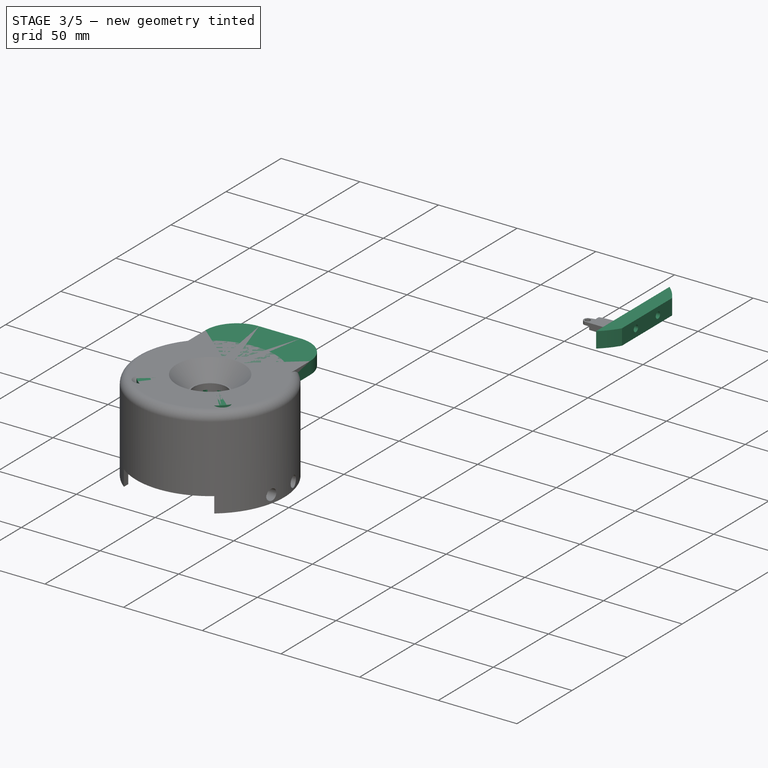
[diagram: stage 3 of 5 — iso view after this stage's code; geometry added in this stage tinted green]
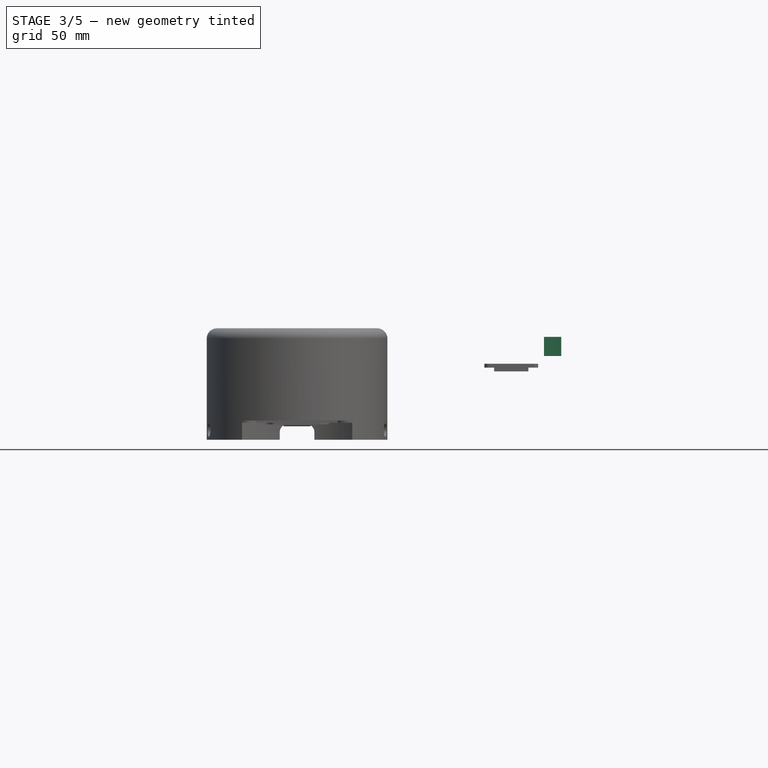
[diagram: stage 3 of 5 — front view after this stage's code; geometry added in this stage tinted green]
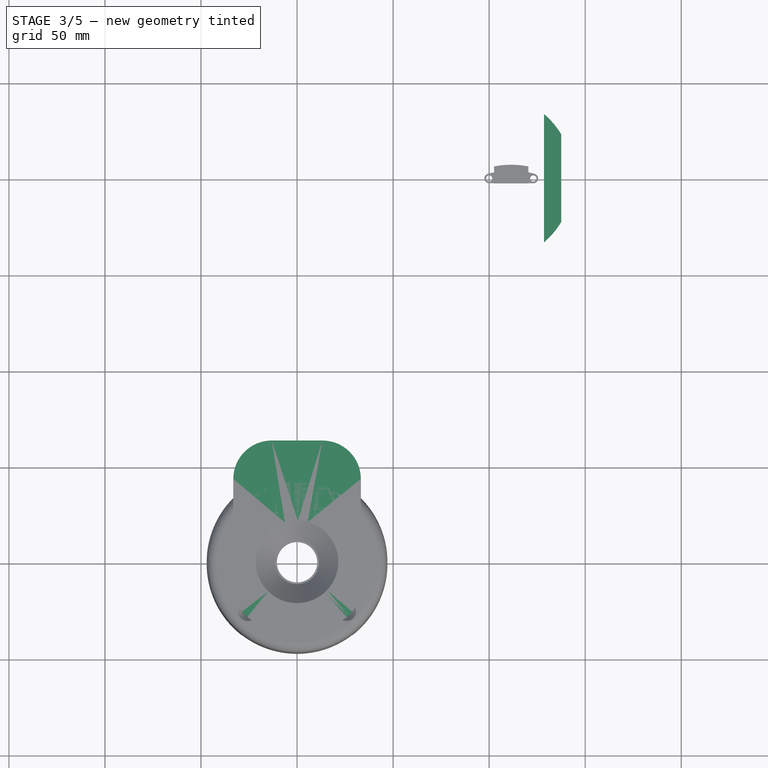
[diagram: stage 3 of 5 — top view after this stage's code; geometry added in this stage tinted green]
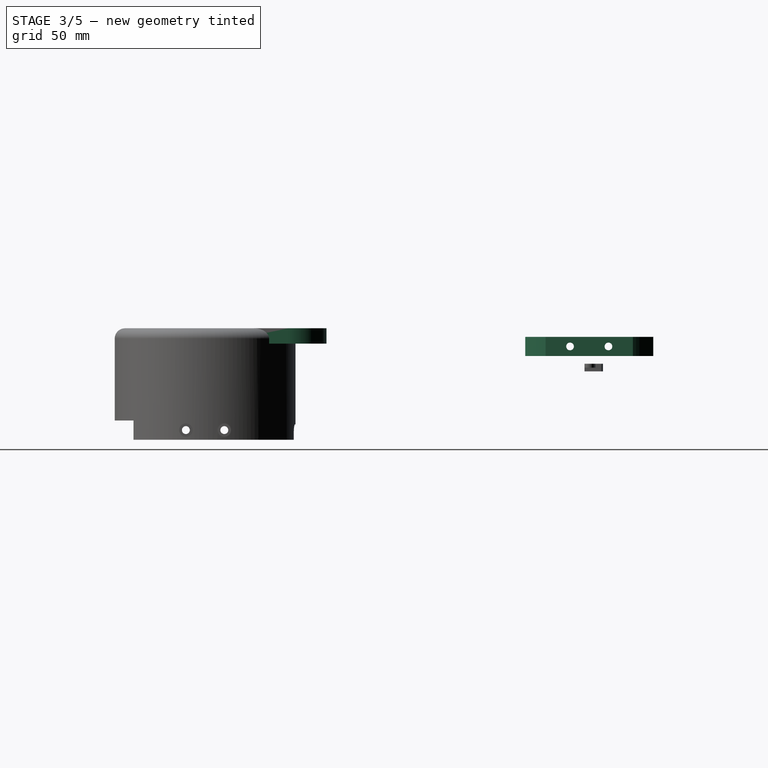
[diagram: stage 3 of 5 — right view after this stage's code; geometry added in this stage tinted green]
FEATURE [PartDesign::Body] Body012  label="Stick_nut_mount"
  AllowCompound = false
  Group = -> [Sketch094,Pad052,Sketch095,Pad053,Sketch096,Pocket055,Sketch097,Sketch098,Pad054,Chamfer003,Pocket056,Pocket057,Chamfer004,Sketch099,Pad055,Chamfer005,Pad056,Chamfer006,Chamfer007]
  Origin = -> Origin012
  Tip = -> Chamfer007
FEATURE [Part::Feature] Gimbal_Housing001_solid  label="Gimbal_Housing001 (Solid)"
  shape: bbox 71.2 x 71.2 x 37.48 mm, 7162 faces (baked)
FEATURE [Part::Refine] Gimbal_Housing001_solid001  label="Gimbal_Housing001 (Solid)001"
  Source = -> Gimbal_Housing001_solid
FEATURE [PartDesign::FeatureBase] BaseFeature
  BaseFeature = -> Gimbal_Housing001_solid001
  Suppressed = false
FEATURE [Sketcher::SketchObject] Sketch104
  ArcFitTolerance = 1e-06
  AttachmentSupport = -> [BaseFeature]
  ExternalGeometry = -> [BaseFeature]
  FullyConstrained = true
  MakeInternals = false
  MapMode = 5
  Placement = pos=(0,-5.1e-15,-23) rot=(1,0,0;3.14159rad)
  sketch-geometry (16):
    g0: LineSegment StartX=-136.5 StartY=236.5 StartZ=0 EndX=-136.5 EndY=163.5 EndZ=0
    g1: LineSegment StartX=-136.5 StartY=163.5 StartZ=0 EndX=-63.5 EndY=163.5 EndZ=0
    g2: LineSegment StartX=-63.5 StartY=163.5 StartZ=0 EndX=-63.5 EndY=236.5 EndZ=0
    g3: LineSegment StartX=-63.5 StartY=236.5 StartZ=0 EndX=-136.5 EndY=236.5 EndZ=0
    g4: LineSegment StartX=-113.2 StartY=232.7 StartZ=0 EndX=-86.8 EndY=232.7 EndZ=0
    g5: LineSegment StartX=-67.3 StartY=213.2 StartZ=0 EndX=-67.3 EndY=186.8 EndZ=0
    g6: LineSegment StartX=-113.2 StartY=167.3 StartZ=0 EndX=-86.8 EndY=167.3 EndZ=0
    g7: LineSegment StartX=-132.7 StartY=186.8 StartZ=0 EndX=-132.7 EndY=213.2 EndZ=0
    g8: ArcOfCircle CenterX=-113.2 CenterY=213.2 CenterZ=0 NormalX=0 NormalY=0 NormalZ=1 AngleXU=0 Radius=19.5 StartAngle=1.5708 EndAngle=3.14159
    g9: ArcOfCircle CenterX=-113.2 CenterY=186.8 CenterZ=0 NormalX=0 NormalY=0 NormalZ=1 AngleXU=0 Radius=19.5 StartAngle=3.14159 EndAngle=4.71239
    g10: ArcOfCircle CenterX=-86.8 CenterY=186.8 CenterZ=0 NormalX=0 NormalY=0 NormalZ=1 AngleXU=0 Radius=19.5 StartAngle=4.71239 EndAngle=6.28319
    g11: ArcOfCircle CenterX=-86.8 CenterY=213.2 CenterZ=0 NormalX=0 NormalY=0 NormalZ=1 AngleXU=0 Radius=19.5 StartAngle=2.8568e-07 EndAngle=1.5708
    g12: GeomPoint X=-73.0114 Y=226.989 Z=0
    g13: LineSegment [constr] StartX=-73.0114 StartY=226.989 StartZ=0 EndX=-72.6579 EndY=227.342 EndZ=0
    g14: LineSegment [constr] StartX=-127.342 StartY=227.342 StartZ=0 EndX=-72.6579 EndY=172.658 EndZ=0
    g15: GeomPoint [constr] X=-100 Y=200 Z=0
  constraints (46):
    c: Coincident(g0,g1)
    c: Coincident(g1,g2)
    c: Coincident(g2,g3)
    c: Coincident(g3,g0)
    c: Vertical(g0)
    c: Vertical(g2)
    c: Horizontal(g1)
    c: Horizontal(g3)
    c: DistanceX(g3,g3) = 73
    c: Equal(g3,g2)
    c: Horizontal(g4)
    c: Vertical(g5)
    c: Horizontal(g6)
    c: Vertical(g7)
    c: Equal(g4,g7)
    c: Equal(g7,g6)
    c: Equal(g6,g5)
    c: Coincident(g8,g4)
    c: Coincident(g8,g7)
    c: Coincident(g9,g7)
    c: Coincident(g9,g6)
    c: Coincident(g10,g5)
    c: Coincident(g10,g6)
    c: Coincident(g11,g4)
    c: Coincident(g11,g5)
    c: PointOnObject(g12,g11)
    c: Distance(g-8,g12) = 0.5
    c: DistanceY(g4,g-3) = 0.5
    c: DistanceX(g5,g-4) = 0.5
    c: Horizontal(g5,g-4)
    c: Vertical(g4,g-3)
    c: Coincident(g13,g12)
    c: Coincident(g13,g-8)
    c: Perpendicular(g11,g13)
    c: Equal(g11,g8)
    c: Equal(g11,g9)
    c: Equal(g11,g10)
    c: Vertical(g-3,g4)
    c: Horizontal(g7,g-6)
    c: Vertical(g6,g-5)
    c: DistanceY(g-5,g6) = 0.5
    c: DistanceX(g-6,g7) = 0.5
    c: Coincident(g14,g-7)
    c: Coincident(g14,g-9)
    c: Symmetric(g14,g14,g15)
    c: Symmetric(g0,g1,g15)
FEATURE [PartDesign::Pocket] Pocket061
  BaseFeature = -> BaseFeature
  Direction = (0,0,1)
  Length = 5
  Length2 = 5
  Profile = -> Sketch104
  ReferenceAxis = -> Sketch104 [N_Axis]
  Refine = true
  Suppressed = false
  Type = 1
FEATURE [Sketcher::SketchObject] Sketch105
  ArcFitTolerance = 1e-06
  AttachmentSupport = -> [Pocket061]
  ExternalGeometry = -> [Pocket061]
  FullyConstrained = true
  MakeInternals = false
  MapMode = 5
  Placement = pos=(0,-5.1e-15,-23) rot=(1,0,0;3.14159rad)
  sketch-geometry (14):
    g0: ArcOfCircle CenterX=-113.2 CenterY=213.2 CenterZ=0 NormalX=0 NormalY=0 NormalZ=1 AngleXU=0 Radius=20 StartAngle=1.5708 EndAngle=3.14159
    g1: ArcOfCircle CenterX=-86.8 CenterY=213.2 CenterZ=0 NormalX=0 NormalY=0 NormalZ=1 AngleXU=0 Radius=20 StartAngle=2.78538e-07 EndAngle=1.5708
    g2: LineSegment StartX=-133.2 StartY=213.2 StartZ=0 EndX=-133.2 EndY=166.8 EndZ=0
    g3: LineSegment StartX=-113.2 StartY=233.2 StartZ=0 EndX=-86.8 EndY=233.2 EndZ=0
    g4: LineSegment StartX=-66.8 StartY=213.2 StartZ=0 EndX=-66.8 EndY=166.8 EndZ=0
    g5: LineSegment StartX=-86.8 StartY=171.3 StartZ=0 EndX=-113.2 EndY=171.3 EndZ=0
    g6: ArcOfCircle CenterX=-113.2 CenterY=186.8 CenterZ=0 NormalX=0 NormalY=0 NormalZ=1 AngleXU=0 Radius=15.5 StartAngle=3.14159 EndAngle=4.71239
    g7: LineSegment StartX=-128.7 StartY=213.2 StartZ=0 EndX=-128.7 EndY=186.8 EndZ=0
    g8: ArcOfCircle CenterX=-113.2 CenterY=213.2 CenterZ=0 NormalX=0 NormalY=0 NormalZ=1 AngleXU=0 Radius=15.5 StartAngle=1.5708 EndAngle=3.14159
    g9: LineSegment StartX=-113.2 StartY=228.7 StartZ=0 EndX=-86.8 EndY=228.7 EndZ=0
    g10: ArcOfCircle CenterX=-86.8 CenterY=213.2 CenterZ=0 NormalX=0 NormalY=0 NormalZ=1 AngleXU=0 Radius=15.5 StartAngle=-9e-16 EndAngle=1.5708
    g11: LineSegment StartX=-71.3 StartY=213.2 StartZ=0 EndX=-71.3 EndY=186.8 EndZ=0
    g12: ArcOfCircle CenterX=-86.8 CenterY=186.8 CenterZ=0 NormalX=0 NormalY=0 NormalZ=1 AngleXU=0 Radius=15.5 StartAngle=4.71239 EndAngle=6.28319
    g13: LineSegment StartX=-133.2 StartY=166.8 StartZ=0 EndX=-66.8 EndY=166.8 EndZ=0
  constraints (38):
    c: Coincident(g0,g-5)
    c: Coincident(g1,g-3)
    c: Coincident(g2,g0)
    c: Vertical(g2)
    c: Coincident(g3,g0)
    c: Coincident(g3,g1)
    c: Horizontal(g3)
    c: Coincident(g4,g1)
    c: Vertical(g4)
    c: Vertical(g0,g-5)
    c: Vertical(g1,g-4)
    c: Horizontal(g1,g-10)
    c: Horizontal(g0,g-6)
    c: DistanceY(g-4,g1) = 0.5
    c: Tangent(g5,g6) = 1.5708
    c: Tangent(g5,g12) = 1.5708
    c: Tangent(g6,g7) = -1.5708
    c: Tangent(g7,g8) = -1.5708
    c: Tangent(g8,g9) = 1.5708
    c: Tangent(g9,g10) = 1.5708
    c: Tangent(g10,g11) = 1.5708
    c: Tangent(g11,g12) = 1.5708
    c: DistanceY(g9,g1) = 4.5
    c: Vertical(g8,g0)
    c: Horizontal(g10,g-10)
    c: Horizontal(g7,g-6)
    c: Horizontal(g11,g-10)
    c: Vertical(g1,g9)
    c: Horizontal(g9)
    c: Horizontal(g5)
    c: Vertical(g7)
    c: Vertical(g11)
    c: Horizontal(g6,g-7)
    c: Coincident(g13,g2)
    c: Horizontal(g13)
    c: Coincident(g4,g13)
    c: DistanceY(g4,g-9) = 0.5
    c: Vertical(g-9,g5)
FEATURE [Sketcher::SketchObject] Sketch106
  ArcFitTolerance = 1e-06
  AttachmentSupport = -> [Pocket061]
  ExternalGeometry = -> [Pocket061]
  FullyConstrained = true
  MakeInternals = false
  MapMode = 5
  Placement = pos=(0,-168.8,0) rot=(0,0.707107,0.707107;3.14159rad)
  sketch-geometry (2):
    g0: Circle CenterX=100 CenterY=1.38685e-08 CenterZ=0 NormalX=0 NormalY=0 NormalZ=1 AngleXU=0 Radius=1.55
    g1: Circle [constr] CenterX=100 CenterY=1.38685e-08 CenterZ=0 NormalX=0 NormalY=0 NormalZ=1 AngleXU=0 Radius=1.5
  constraints (5):
    c: Coincident(g1,g0)
    c: PointOnObject(g-3,g1)
    c: PointOnObject(g-4,g1)
    c: PointOnObject(g-5,g1)
    c: Radius(g0) = 1.55
FEATURE [Sketcher::SketchObject] Sketch107
  ArcFitTolerance = 1e-06
  AttachmentSupport = -> [Pocket061]
  ExternalGeometry = -> [Pocket061]
  FullyConstrained = true
  MakeInternals = false
  MapMode = 5
  Placement = pos=(0,-167.3,0) rot=(0,0.707107,0.707107;3.14159rad)
  sketch-geometry (2):
    g0: Circle [constr] CenterX=100 CenterY=-1.2475e-07 CenterZ=0 NormalX=0 NormalY=0 NormalZ=1 AngleXU=0 Radius=3
    g1: Circle CenterX=100 CenterY=-1.2475e-07 CenterZ=0 NormalX=0 NormalY=0 NormalZ=1 AngleXU=0 Radius=3.1
  constraints (5):
    c: PointOnObject(g-3,g0)
    c: PointOnObject(g-4,g0)
    c: PointOnObject(g-5,g0)
    c: Coincident(g1,g0)
    c: Radius(g1) = 3.1
FEATURE [Sketcher::SketchObject] Sketch108
  ArcFitTolerance = 1e-06
  AttachmentSupport = -> [Pocket061]
  ExternalGeometry = -> [Pocket061]
  FullyConstrained = true
  MakeInternals = false
  MapMode = 5
  Placement = pos=(-132.7,0,0) rot=(0.57735,-0.57735,-0.57735;2.0944rad)
  sketch-geometry (3):
    g0: Circle [constr] CenterX=200 CenterY=-1.00082e-07 CenterZ=0 NormalX=0 NormalY=0 NormalZ=1 AngleXU=0 Radius=3
    g1: Circle CenterX=200 CenterY=-1.00082e-07 CenterZ=0 NormalX=0 NormalY=0 NormalZ=1 AngleXU=0 Radius=1.55
    g2: Circle CenterX=200 CenterY=-1.00082e-07 CenterZ=0 NormalX=0 NormalY=0 NormalZ=1 AngleXU=0 Radius=3.1
  constraints (7):
    c: PointOnObject(g-3,g0)
    c: PointOnObject(g-4,g0)
    c: PointOnObject(g-5,g0)
    c: Diameter(g1) = 3.1
    c: Coincident(g1,g0)
    c: Coincident(g2,g0)
    c: Radius(g2) = 3.1
FEATURE [Sketcher::SketchObject] Sketch109
  ArcFitTolerance = 1e-06
  AttachmentSupport = -> [Pocket061]
  ExternalGeometry = -> [Pocket061]
  FullyConstrained = true
  MakeInternals = false
  MapMode = 5
  Placement = pos=(0,-232.7,0) rot=(1,0,0;1.5708rad)
  sketch-geometry (11):
    g0: Circle [constr] CenterX=-100 CenterY=-8.93074e-08 CenterZ=0 NormalX=0 NormalY=0 NormalZ=1 AngleXU=0 Radius=6
    g1: Circle CenterX=-100 CenterY=-8.93074e-08 CenterZ=0 NormalX=0 NormalY=0 NormalZ=1 AngleXU=0 Radius=3.8
    g2: Circle CenterX=-100 CenterY=-8.93074e-08 CenterZ=0 NormalX=0 NormalY=0 NormalZ=1 AngleXU=0 Radius=6.1
    g3: ArcOfCircle [constr] CenterX=-92.1 CenterY=0.75 CenterZ=0 NormalX=0 NormalY=0 NormalZ=1 AngleXU=0 Radius=0.8 StartAngle=1e-16 EndAngle=3.14159
    g4: ArcOfCircle [constr] CenterX=-92.1 CenterY=-0.75 CenterZ=0 NormalX=0 NormalY=0 NormalZ=1 AngleXU=0 Radius=0.8 StartAngle=3.14159 EndAngle=6.28319
    g5: LineSegment [constr] StartX=-91.3 StartY=0.75 StartZ=0 EndX=-91.3 EndY=-0.75 EndZ=0
    g6: LineSegment [constr] StartX=-92.9 StartY=0.75 StartZ=0 EndX=-92.9 EndY=-0.75 EndZ=0
    g7: LineSegment StartX=-93 StartY=0.75 StartZ=0 EndX=-93 EndY=-0.75 EndZ=0
    g8: ArcOfCircle CenterX=-92.1 CenterY=-0.75 CenterZ=0 NormalX=0 NormalY=0 NormalZ=1 AngleXU=0 Radius=0.9 StartAngle=3.14159 EndAngle=6.28319
    g9: LineSegment StartX=-91.2 StartY=0.75 StartZ=0 EndX=-91.2 EndY=-0.75 EndZ=0
    g10: ArcOfCircle CenterX=-92.1 CenterY=0.75 CenterZ=0 NormalX=0 NormalY=0 NormalZ=1 AngleXU=0 Radius=0.9 StartAngle=0 EndAngle=3.14159
  constraints (25):
    c: PointOnObject(g-3,g0)
    c: PointOnObject(g-4,g0)
    c: PointOnObject(g-5,g0)
    c: Coincident(g1,g0)
    c: Coincident(g2,g0)
    c: Radius(g2) = 6.1
    c: Radius(g1) = 3.8
    c: Tangent(g3,g5) = 1.5708
    c: Tangent(g3,g6) = -1.5708
    c: Tangent(g4,g5) = 1.5708
    c: Tangent(g4,g6) = -1.5708
    c: Equal(g3,g4)
    c: Vertical(g5)
    c: PointOnObject(g-6,g3)
    c: PointOnObject(g-7,g4)
    c: PointOnObject(g-8,g4)
    c: PointOnObject(g-9,g6)
    c: Tangent(g7,g8) = -1.5708
    c: Tangent(g7,g10) = -1.5708
    c: Tangent(g8,g9) = 1.5708
    c: Tangent(g9,g10) = 1.5708
    c: Vertical(g9)
    c: Coincident(g10,g3)
    c: Coincident(g4,g8)
    c: DistanceX(g7,g3) = 0.1
FEATURE [Sketcher::SketchObject] Sketch110
  ArcFitTolerance = 1e-06
  AttachmentSupport = -> [Pocket061]
  ExternalGeometry = -> [Pocket061]
  FullyConstrained = true
  MakeInternals = false
  MapMode = 5
  Placement = pos=(-67.3,0,0) rot=(0.57735,0.57735,0.57735;2.0944rad)
  sketch-geometry (11):
    g0: Circle [constr] CenterX=-200 CenterY=-1.71692e-07 CenterZ=0 NormalX=0 NormalY=0 NormalZ=1 AngleXU=0 Radius=6
    g1: Circle CenterX=-200 CenterY=-1.71692e-07 CenterZ=0 NormalX=0 NormalY=0 NormalZ=1 AngleXU=0 Radius=6.1
    g2: Circle CenterX=-200 CenterY=-1.71692e-07 CenterZ=0 NormalX=0 NormalY=0 NormalZ=1 AngleXU=0 Radius=3.8
    g3: ArcOfCircle [constr] CenterX=-192.1 CenterY=0.750002 CenterZ=0 NormalX=0 NormalY=0 NormalZ=1 AngleXU=0 Radius=0.799999 StartAngle=1e-16 EndAngle=3.14159
    g4: ArcOfCircle [constr] CenterX=-192.1 CenterY=-0.750001 CenterZ=0 NormalX=0 NormalY=0 NormalZ=1 AngleXU=0 Radius=0.799999 StartAngle=3.14159 EndAngle=6.28319
    g5: LineSegment [constr] StartX=-191.3 StartY=0.750002 StartZ=0 EndX=-191.3 EndY=-0.750001 EndZ=0
    g6: LineSegment [constr] StartX=-192.9 StartY=0.750002 StartZ=0 EndX=-192.9 EndY=-0.750001 EndZ=0
    g7: LineSegment StartX=-193 StartY=0.750002 StartZ=0 EndX=-193 EndY=-0.750001 EndZ=0
    g8: ArcOfCircle CenterX=-192.1 CenterY=-0.750001 CenterZ=0 NormalX=0 NormalY=0 NormalZ=1 AngleXU=0 Radius=0.899999 StartAngle=3.14159 EndAngle=6.28319
    g9: LineSegment StartX=-191.2 StartY=0.750002 StartZ=0 EndX=-191.2 EndY=-0.750001 EndZ=0
    g10: ArcOfCircle CenterX=-192.1 CenterY=0.750002 CenterZ=0 NormalX=0 NormalY=0 NormalZ=1 AngleXU=0 Radius=0.899999 StartAngle=0 EndAngle=3.14159
  constraints (25):
    c: PointOnObject(g-3,g0)
    c: PointOnObject(g-4,g0)
    c: PointOnObject(g-5,g0)
    c: Coincident(g1,g0)
    c: Coincident(g2,g0)
    c: Radius(g2) = 3.8
    c: Radius(g1) = 6.1
    c: Tangent(g3,g5) = 1.5708
    c: Tangent(g3,g6) = -1.5708
    c: Tangent(g4,g5) = 1.5708
    c: Tangent(g4,g6) = -1.5708
    c: Equal(g3,g4)
    c: Vertical(g5)
    c: PointOnObject(g-7,g3)
    c: PointOnObject(g-6,g3)
    c: PointOnObject(g-8,g4)
    c: PointOnObject(g-9,g5)
    c: Tangent(g7,g8) = -1.5708
    c: Tangent(g7,g10) = -1.5708
    c: Tangent(g8,g9) = 1.5708
    c: Tangent(g9,g10) = 1.5708
    c: Vertical(g9)
    c: Coincident(g10,g3)
    c: Coincident(g4,g8)
    c: DistanceX(g3,g9) = 0.1
FEATURE [PartDesign::Pad] Pad057
  BaseFeature = -> Pocket061
  Direction = (0,0,-1)
  Length = 10
  Length2 = 10
  Profile = -> Sketch105
  ReferenceAxis = -> Sketch105 [N_Axis]
  Refine = true
  Reversed = true
  Suppressed = false
  Type = 3
  UpToFace = -> Pocket061 [Face81]
FEATURE [PartDesign::Pocket] Pocket062
  BaseFeature = -> Pad057
  Direction = (0,-1,2e-16)
  Length = 5
  Length2 = 5
  Profile = -> Sketch106
  ReferenceAxis = -> Sketch106 [N_Axis]
  Refine = true
  Suppressed = false
  Type = 4
FEATURE [PartDesign::Pocket] Pocket063
  BaseFeature = -> Pocket062
  Direction = (0,-1,2e-16)
  Length = 2
  Length2 = 5
  Profile = -> Sketch107
  ReferenceAxis = -> Sketch107 [N_Axis]
  Refine = true
  Suppressed = false
  Type = 4
FEATURE [PartDesign::Pocket] Pocket064
  BaseFeature = -> Pocket063
  Direction = (1,0,0)
  Length = 2
  Length2 = 5
  Profile = -> Sketch108
  ReferenceAxis = -> Sketch108 [N_Axis]
  Refine = true
  Suppressed = false
  Type = 4
FEATURE [PartDesign::Pocket] Pocket065
  BaseFeature = -> Pocket064
  Direction = (1,0,0)
  Length = 5
  Length2 = 5
  Profile = -> Pocket064 [Face378]
  Refine = true
  Suppressed = false
  Type = 0
FEATURE [PartDesign::Pocket] Pocket066
  BaseFeature = -> Pocket065
  Direction = (0,1,-2e-16)
  Length = 1.5
  Length2 = 5
  Profile = -> Sketch109
  ReferenceAxis = -> Sketch109 [N_Axis]
  Refine = true
  Suppressed = false
  Type = 4
FEATURE [PartDesign::Pocket] Pocket067
  BaseFeature = -> Pocket066
  Direction = (0,1,0)
  Length = 5
  Length2 = 5
  Profile = -> Pocket066 [Edge601,Face114]
  Refine = true
  Suppressed = false
  Type = 0
FEATURE [PartDesign::Pocket] Pocket068
  BaseFeature = -> Pocket067
  Direction = (0,1,0)
  Length = 5
  Length2 = 5
  Profile = -> Pocket067 [Face325]
  Refine = true
  Suppressed = false
  Type = 0
FEATURE [PartDesign::Pocket] Pocket069
  BaseFeature = -> Pocket068
  Direction = (-1,0,0)
  Length = 1.5
  Length2 = 5
  Profile = -> Sketch110
  ReferenceAxis = -> Sketch110 [N_Axis]
  Refine = true
  Suppressed = false
  Type = 4
FEATURE [PartDesign::Pocket] Pocket070
  BaseFeature = -> Pocket069
  Direction = (-1,0,0)
  Length = 5
  Length2 = 5
  Profile = -> Pocket069 [Face393,Face179]
  Refine = true
  Suppressed = false
  Type = 0
FEATURE [Sketcher::SketchObject] Sketch112
  ArcFitTolerance = 1e-06
  AttachmentSupport = -> [Pocket070]
  ExternalGeometry = -> [Pocket070]
  FullyConstrained = true
  MakeInternals = false
  MapMode = 5
  Placement = pos=(0,3.2e-15,14.45) rot=(0,0,1;0rad)
  sketch-geometry (8):
    g0: LineSegment StartX=-133.2 StartY=-166.8 StartZ=0 EndX=-66.8 EndY=-166.8 EndZ=0
    g1: LineSegment StartX=-66.8 StartY=-166.8 StartZ=0 EndX=-66.8 EndY=-156.8 EndZ=0
    g2: LineSegment StartX=-86.8 StartY=-136.8 StartZ=0 EndX=-113.2 EndY=-136.8 EndZ=0
    g3: LineSegment StartX=-133.2 StartY=-156.8 StartZ=0 EndX=-133.2 EndY=-166.8 EndZ=0
    g4: ArcOfCircle CenterX=-86.8 CenterY=-156.8 CenterZ=0 NormalX=0 NormalY=0 NormalZ=1 AngleXU=0 Radius=20 StartAngle=0 EndAngle=1.5708
    g5: GeomPoint [constr] X=-66.8 Y=-136.8 Z=0
    g6: ArcOfCircle CenterX=-113.2 CenterY=-156.8 CenterZ=0 NormalX=0 NormalY=0 NormalZ=1 AngleXU=0 Radius=20 StartAngle=1.5708 EndAngle=3.14159
    g7: GeomPoint [constr] X=-133.2 Y=-136.8 Z=0
  constraints (18):
    c: Coincident(g0,g1)
    c: Coincident(g3,g0)
    c: Horizontal(g2)
    c: Vertical(g1)
    c: Vertical(g3)
    c: Coincident(g0,g-3)
    c: Coincident(g-3,g0)
    c: PointOnObject(g5,g1)
    c: PointOnObject(g5,g2)
    c: Tangent(g1,g4) = -1.5708
    c: Tangent(g2,g4) = -1.5708
    c: PointOnObject(g7,g2)
    c: PointOnObject(g7,g3)
    c: Tangent(g2,g6) = -1.5708
    c: Tangent(g3,g6) = -1.5708
    c: Equal(g4,g6)
    c: DistanceY(g0,g2) = 30
    c: Equal(g4,g-4)
FEATURE [PartDesign::Pad] Pad058
  BaseFeature = -> Pocket070
  Direction = (0,0,1)
  Length = 8
  Length2 = 10
  Profile = -> Sketch112
  ReferenceAxis = -> Sketch112 [N_Axis]
  Refine = true
  Reversed = true
  Suppressed = false
  Type = 0
FEATURE [PartDesign::Pad] Pad059
  BaseFeature = -> Pad058
  Direction = (0,0,-1)
  Length = 10
  Length2 = 10
  Profile = -> Pad058 [Face6,Face777]
  Refine = true
  Suppressed = false
  Type = 0
FEATURE [PartDesign::Pocket] Pocket071
  BaseFeature = -> Pad059
  Direction = (0,2e-16,1)
  Length = 33.4
  Length2 = 5
  Profile = -> Pad059 [Face649]
  Refine = true
  Suppressed = false
  Type = 0
FEATURE [PartDesign::Pocket] Pocket072
  BaseFeature = -> Pocket071
  Direction = (0,2e-16,1)
  Length = 0.05
  Length2 = 5
  Profile = -> Pocket071 [Face603]
  Refine = true
  Suppressed = false
  Type = 0
FEATURE [Sketcher::SketchObject] Sketch179
  ArcFitTolerance = 1e-06
  AttachmentSupport = -> [XY_Plane]
  FullyConstrained = true
  MakeInternals = false
  MapMode = 5
  sketch-geometry (4):
    g0: ArcOfCircle CenterX=0 CenterY=0 CenterZ=0 NormalX=0 NormalY=0 NormalZ=1 AngleXU=0 Radius=43.9 StartAngle=0.543684 EndAngle=0.862162
    g1: LineSegment StartX=37.57 StartY=22.7091 StartZ=0 EndX=37.57 EndY=-22.7091 EndZ=0
    g2: LineSegment StartX=28.57 StartY=33.3311 StartZ=0 EndX=28.57 EndY=-33.3311 EndZ=0
    g3: ArcOfCircle CenterX=0 CenterY=0 CenterZ=0 NormalX=0 NormalY=0 NormalZ=1 AngleXU=0 Radius=43.9 StartAngle=5.42102 EndAngle=5.7395
  constraints (12):
    c: Coincident(g1,g0)
    c: Vertical(g1)
    c: Coincident(g2,g0)
    c: Vertical(g2)
    c: Coincident(g3,g0)
    c: Coincident(g3,g1)
    c: Coincident(g3,g2)
    c: DistanceX(g0,g0) = 9
    c: Coincident(g0,g-1)
    c: Radius(g0) = 43.9
    c: Equal(g3,g0)
    c: DistanceX(g0,g0) = 37.57
FEATURE [PartDesign::Pad] Pad079
  Direction = (0,0,1)
  Length = 10
  Length2 = 10
  Profile = -> Sketch179
  ReferenceAxis = -> Sketch179 [N_Axis]
  Refine = true
  Suppressed = false
  Type = 0
FEATURE [Sketcher::SketchObject] Sketch181
  ArcFitTolerance = 1e-06
  AttachmentSupport = -> [Pad079]
  ExternalGeometry = -> [Pad079]
  FullyConstrained = true
  MakeInternals = false
  MapMode = 5
  Placement = pos=(37.57,0,0) rot=(0.57735,0.57735,0.57735;2.0944rad)
  sketch-geometry (5):
    g0: LineSegment [constr] StartX=-4.2e-15 StartY=10 StartZ=0 EndX=-3.1e-15 EndY=0 EndZ=0
    g1: LineSegment [constr] StartX=-10 StartY=5 StartZ=0 EndX=10 EndY=5 EndZ=0
    g2: GeomPoint [constr] X=-3.6e-15 Y=5 Z=0
    g3: Circle CenterX=-10 CenterY=5 CenterZ=0 NormalX=0 NormalY=0 NormalZ=1 AngleXU=0 Radius=2
    g4: Circle CenterX=10 CenterY=5 CenterZ=0 NormalX=0 NormalY=0 NormalZ=1 AngleXU=0 Radius=2
  constraints (10):
    c: Symmetric(g-3,g-3,g0)
    c: Symmetric(g-4,g-4,g0)
    c: Horizontal(g1)
    c: Symmetric(g1,g1,g2)
    c: Symmetric(g0,g0,g2)
    c: Coincident(g3,g1)
    c: Coincident(g4,g1)
    c: Radius(g4) = 2
    c: Equal(g4,g3)
    c: DistanceX(g1,g1) = 20
FEATURE [PartDesign::Pocket] Pocket131
  BaseFeature = -> Pad079
  Direction = (-1,0,0)
  Length = 5
  Length2 = 5
  Profile = -> Sketch181
  ReferenceAxis = -> Sketch181 [N_Axis]
  Refine = true
  Suppressed = false
  Type = 1
FEATURE [Sketcher::SketchObject] Sketch183
  ArcFitTolerance = 1e-06
  AttachmentSupport = -> [Pad080]
  ExternalGeometry = -> [Pad080]
  FullyConstrained = true
  MakeInternals = false
  MapMode = 5
  Placement = pos=(0,-172.25,0) rot=(0,0.707107,0.707107;3.14159rad)
  sketch-geometry (8):
    g0: Circle [constr] CenterX=100 CenterY=-1.45 CenterZ=0 NormalX=0 NormalY=0 NormalZ=1 AngleXU=0 Radius=1.55
    g1: LineSegment [constr] StartX=100 StartY=0 StartZ=0 EndX=100 EndY=-1.45 EndZ=0
    g2: ArcOfCircle CenterX=100 CenterY=-1.45 CenterZ=0 NormalX=0 NormalY=0 NormalZ=1 AngleXU=0 Radius=28.3 StartAngle=3.8674 EndAngle=5.55738
    g3: LineSegment [constr] StartX=78.8326 StartY=-20.2338 StartZ=0 EndX=121.167 EndY=-20.2338 EndZ=0
    g4: LineSegment [constr] StartX=100 StartY=-29.75 StartZ=0 EndX=100 EndY=-34.75 EndZ=0
    g5: LineSegment StartX=78.8326 StartY=-20.2338 StartZ=0 EndX=78.8326 EndY=0 EndZ=0
    g6: LineSegment StartX=78.8326 StartY=0 StartZ=0 EndX=121.167 EndY=0 EndZ=0
    g7: LineSegment StartX=121.167 StartY=0 StartZ=0 EndX=121.167 EndY=-20.2338 EndZ=0
  constraints (21):
    c: Diameter(g0) = 3.1
    c: Symmetric(g-3,g-3,g1)
    c: Coincident(g1,g0)
    c: Vertical(g1)
    c: DistanceY(g1,g1) = 1.45
    c: Coincident(g2,g0)
    c: PointOnObject(g2,g-4)
    c: PointOnObject(g2,g-5)
    c: Coincident(g3,g2)
    c: Coincident(g3,g2)
    c: PointOnObject(g4,g2)
    c: Symmetric(g-6,g-6,g4)
    c: Vertical(g4)
    c: DistanceY(g4,g4) = 5
    c: Coincident(g5,g2)
    c: Coincident(g5,g-4)
    c: Coincident(g7,g6)
    c: Coincident(g7,g2)
    c: Vertical(g7)
    c: Horizontal(g6)
    c: Coincident(g6,g5)
FEATURE [PartDesign::Pocket] Pocket132
  BaseFeature = -> Pad080
  Direction = (0,-1,2e-16)
  Length = 5
  Length2 = 5
  Profile = -> Sketch183
  ReferenceAxis = -> Sketch183 [N_Axis]
  Refine = true
  Suppressed = false
  Type = 1
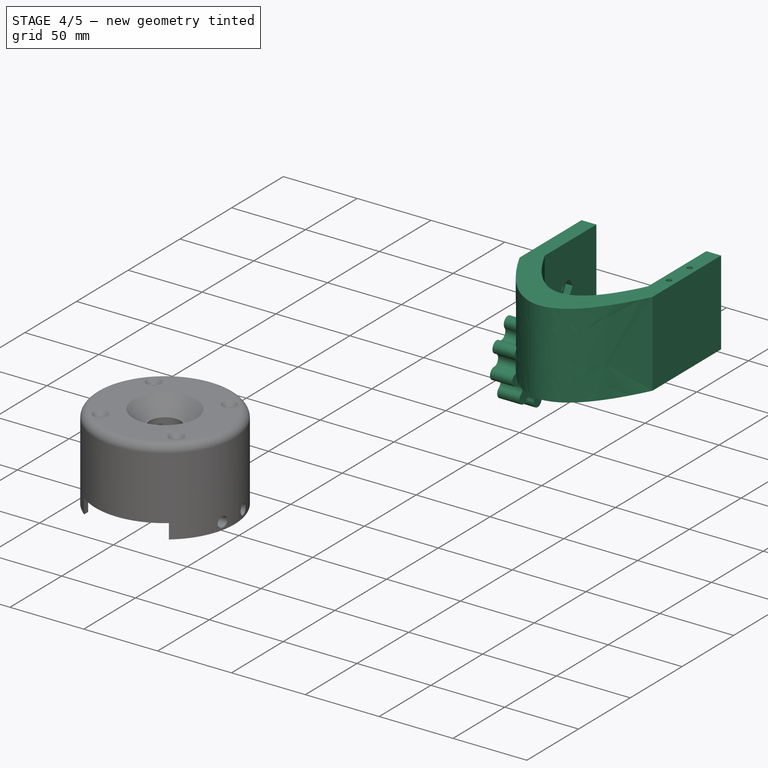
[diagram: stage 4 of 5 — iso view after this stage's code; geometry added in this stage tinted green]
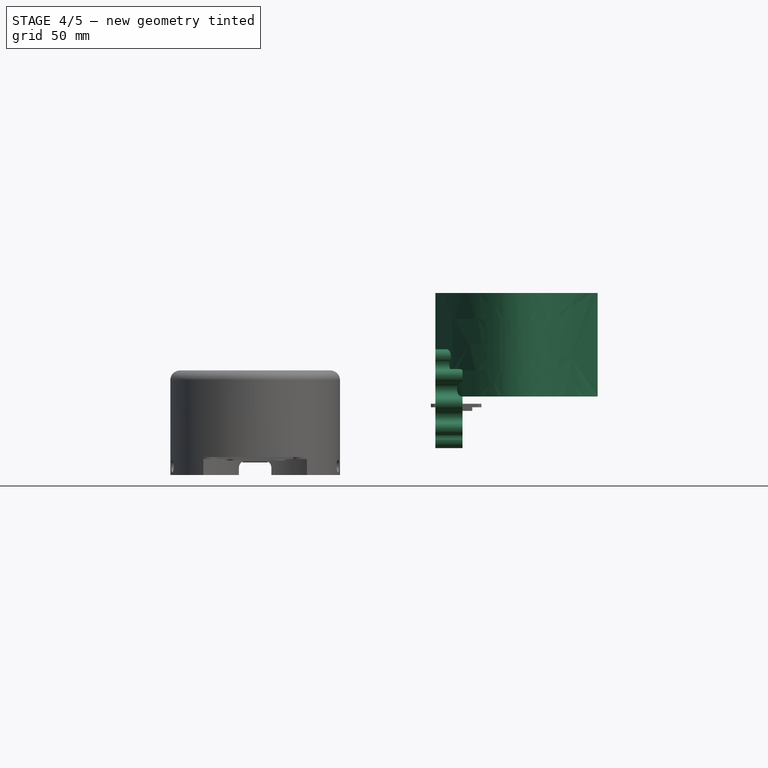
[diagram: stage 4 of 5 — front view after this stage's code; geometry added in this stage tinted green]
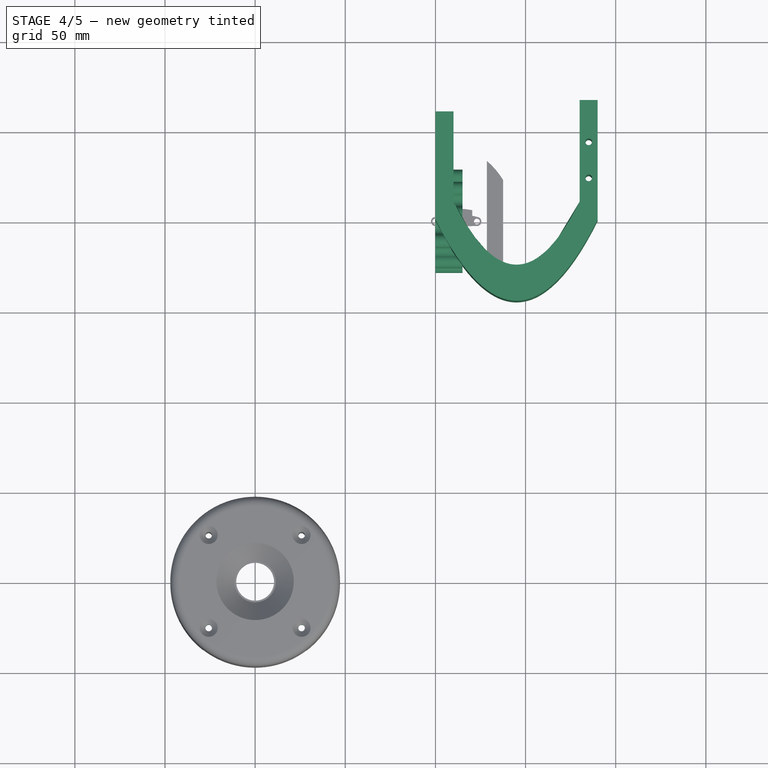
[diagram: stage 4 of 5 — top view after this stage's code; geometry added in this stage tinted green]
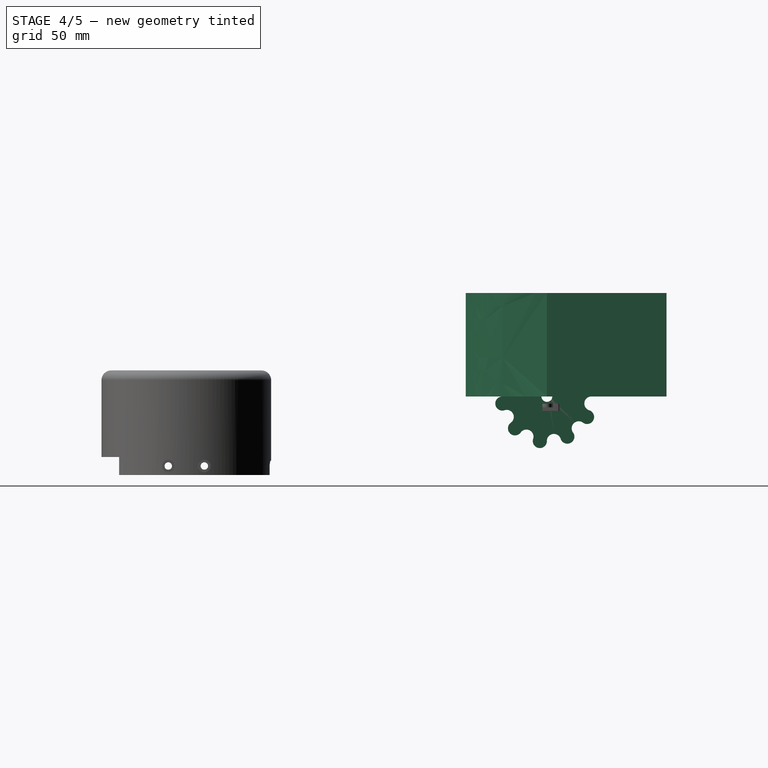
[diagram: stage 4 of 5 — right view after this stage's code; geometry added in this stage tinted green]
FEATURE [Sketcher::SketchObject] Sketch113
  ArcFitTolerance = 1e-06
  AttachmentSupport = -> [Pocket072]
  ExternalGeometry = -> [Pocket072]
  FullyConstrained = true
  MakeInternals = false
  MapMode = 5
  Placement = pos=(0,0,-33) rot=(1,0,0;3.14159rad)
  sketch-geometry (8):
    g0: LineSegment StartX=-128.7 StartY=202.1 StartZ=0 EndX=-128.7 EndY=197.9 EndZ=0
    g1: LineSegment StartX=-128.7 StartY=197.9 StartZ=0 EndX=-122.5 EndY=197.9 EndZ=0
    g2: LineSegment StartX=-122.5 StartY=197.9 StartZ=0 EndX=-122.5 EndY=202.1 EndZ=0
    g3: LineSegment StartX=-122.5 StartY=202.1 StartZ=0 EndX=-128.7 EndY=202.1 EndZ=0
    g4: LineSegment StartX=-97.9 StartY=177.5 StartZ=0 EndX=-102.1 EndY=177.5 EndZ=0
    g5: LineSegment StartX=-102.1 StartY=177.5 StartZ=0 EndX=-102.1 EndY=171.3 EndZ=0
    g6: LineSegment StartX=-102.1 StartY=171.3 StartZ=0 EndX=-97.9 EndY=171.3 EndZ=0
    g7: LineSegment StartX=-97.9 StartY=171.3 StartZ=0 EndX=-97.9 EndY=177.5 EndZ=0
  constraints (20):
    c: Coincident(g0,g1)
    c: Coincident(g1,g2)
    c: Coincident(g2,g3)
    c: Coincident(g3,g0)
    c: Vertical(g0)
    c: Vertical(g2)
    c: Horizontal(g1)
    c: Horizontal(g3)
    c: Coincident(g0,g-3)
    c: Coincident(g1,g-5)
    c: Coincident(g4,g5)
    c: Coincident(g5,g6)
    c: Coincident(g6,g7)
    c: Coincident(g7,g4)
    c: Horizontal(g4)
    c: Horizontal(g6)
    c: Vertical(g5)
    c: Vertical(g7)
    c: Coincident(g4,g-4)
    c: Coincident(g5,g-6)
FEATURE [PartDesign::Pocket] Pocket073
  BaseFeature = -> Pocket072
  Direction = (0,0,1)
  Length = 10
  Length2 = 5
  Profile = -> Sketch113
  ReferenceAxis = -> Sketch113 [N_Axis]
  Refine = true
  Suppressed = false
  Type = 0
FEATURE [Sketcher::SketchObject] Sketch126
  ArcFitTolerance = 1e-06
  AttachmentSupport = -> [XY_Plane017]
  FullyConstrained = true
  MakeInternals = false
  MapMode = 5
  sketch-geometry (26):
    g0: LineSegment StartX=0 StartY=60 StartZ=0 EndX=0 EndY=0 EndZ=0
    g1: LineSegment StartX=10 StartY=10 StartZ=0 EndX=10 EndY=60 EndZ=0
    g2: LineSegment StartX=10 StartY=60 StartZ=0 EndX=0 EndY=60 EndZ=0
    g3: LineSegment StartX=90 StartY=0 StartZ=0 EndX=90 EndY=60 EndZ=0
    g4: LineSegment StartX=90 StartY=60 StartZ=0 EndX=80 EndY=60 EndZ=0
    g5: LineSegment StartX=80 StartY=60 StartZ=0 EndX=80 EndY=10 EndZ=0
    g6: LineSegment [constr] StartX=10 StartY=10 StartZ=0 EndX=45 EndY=-25 EndZ=0
    g7: LineSegment [constr] StartX=45 StartY=-25 StartZ=0 EndX=80 EndY=10 EndZ=0
    g8: LineSegment [constr] StartX=10 StartY=10 StartZ=0 EndX=80 EndY=10 EndZ=0
    g9: GeomPoint [constr] X=45 Y=10 Z=0
    g10: LineSegment [constr] StartX=45 StartY=10 StartZ=0 EndX=45 EndY=-25 EndZ=0
    g11: LineSegment [constr] StartX=45 StartY=-25 StartZ=0 EndX=45 EndY=-45 EndZ=0
    g12: LineSegment [constr] StartX=0 StartY=0 StartZ=0 EndX=45 EndY=-45 EndZ=0
    g13: LineSegment [constr] StartX=45 StartY=-45 StartZ=0 EndX=90 EndY=0 EndZ=0
    g14: Circle [constr] CenterX=0 CenterY=0 CenterZ=0 NormalX=0 NormalY=0 NormalZ=1 AngleXU=0 Radius=1
    g15: Circle [constr] CenterX=45 CenterY=-90 CenterZ=0 NormalX=0 NormalY=0 NormalZ=1 AngleXU=0 Radius=1
    g16: Circle [constr] CenterX=90 CenterY=0 CenterZ=0 NormalX=0 NormalY=0 NormalZ=1 AngleXU=0 Radius=1
    g17: BSplineCurve PolesCount=3 KnotsCount=2 Degree=2 IsPeriodic=0
    g18: GeomPoint [constr] X=0 Y=0 Z=0
    g19: GeomPoint [constr] X=90 Y=0 Z=0
    g20: Circle [constr] CenterX=10 CenterY=10 CenterZ=0 NormalX=0 NormalY=0 NormalZ=1 AngleXU=0 Radius=1
    g21: Circle [constr] CenterX=45 CenterY=-60 CenterZ=0 NormalX=0 NormalY=0 NormalZ=1 AngleXU=0 Radius=1
    g22: Circle [constr] CenterX=80 CenterY=10 CenterZ=0 NormalX=0 NormalY=0 NormalZ=1 AngleXU=0 Radius=1
    g23: BSplineCurve PolesCount=3 KnotsCount=2 Degree=2 IsPeriodic=0
    g24: GeomPoint [constr] X=10 Y=10 Z=0
    g25: GeomPoint [constr] X=80 Y=10 Z=0
  constraints (60):
    c: Coincident(g1,g2)
    c: Coincident(g2,g0)
    c: Vertical(g0)
    c: Vertical(g1)
    c: Horizontal(g2)
    c: Coincident(g3,g4)
    c: Coincident(g4,g5)
    c: Vertical(g3)
    c: Vertical(g5)
    c: Horizontal(g4)
    c: DistanceY(g5,g5) = 50
    c: Equal(g5,g1)
    c: DistanceX(g2,g2) = 10
    c: Coincident(g0,g-1)
    c: DistanceX(g1,g5) = 70
    c: Coincident(g6,g1)
    c: Coincident(g7,g6)
    c: Coincident(g7,g5)
    c: Coincident(g8,g1)
    c: Coincident(g8,g5)
    c: Horizontal(g8)
    c: Symmetric(g8,g8,g9)
    c: Equal(g4,g2)
    c: Angle(g5,g7) = 2.35619
    c: Coincident(g10,g9)
    c: Coincident(g10,g6)
    c: Vertical(g10)
    c: DistanceY(g0,g1) = 10
    c: PointOnObject(g3,g-1)
    c: Coincident(g11,g6)
    c: Vertical(g11)
    c: Coincident(g12,g0)
    c: Coincident(g12,g11)
    c: Coincident(g13,g11)
    c: Coincident(g13,g3)
    c: Angle(g3,g13) = 2.35619
    c: Weight(g14) = 1
    c: Equal(g14,g15)
    c: Equal(g14,g16)
    c: InternalAlignment(g14,g17)
    c: InternalAlignment(g15,g17)
    c: InternalAlignment(g16,g17)
    c: InternalAlignment(g18,g17)
    c: InternalAlignment(g19,g17)
    c: Coincident(g17,g3)
    c: Coincident(g17,g0)
    c: PointOnObject(g15,g10)
    c: PointOnObject(g11,g17)
    c: Weight(g20) = 1
    c: Equal(g20,g21)
    c: Equal(g20,g22)
    c: InternalAlignment(g20,g23)
    c: InternalAlignment(g21,g23)
    c: InternalAlignment(g22,g23)
    c: InternalAlignment(g24,g23)
    c: InternalAlignment(g25,g23)
    c: PointOnObject(g21,g11)
    c: PointOnObject(g6,g23)
    c: Coincident(g23,g1)
    c: Coincident(g23,g5)
FEATURE [PartDesign::Pad] Pad066
  Direction = (0,0,1)
  Length = 57.4
  Length2 = 10
  Profile = -> Sketch126
  ReferenceAxis = -> Sketch126 [N_Axis]
  Refine = true
  Suppressed = false
  Type = 0
FEATURE [Sketcher::SketchObject] Sketch127
  ArcFitTolerance = 1e-06
  AttachmentSupport = -> [Pad066]
  ExternalGeometry = -> [Pad066]
  FullyConstrained = true
  MakeInternals = false
  MapMode = 5
  Placement = pos=(10,0,0) rot=(0.57735,0.57735,0.57735;2.0944rad)
  sketch-geometry (13):
    g0: LineSegment StartX=28.425 StartY=33.6796 StartZ=0 EndX=25.55 EndY=28.7 EndZ=0
    g1: LineSegment StartX=25.55 StartY=28.7 StartZ=0 EndX=28.425 EndY=23.7204 EndZ=0
    g2: LineSegment StartX=28.425 StartY=23.7204 StartZ=0 EndX=34.175 EndY=23.7204 EndZ=0
    g3: LineSegment StartX=34.175 StartY=23.7204 StartZ=0 EndX=37.05 EndY=28.7 EndZ=0
    g4: LineSegment StartX=37.05 StartY=28.7 StartZ=0 EndX=34.175 EndY=33.6796 EndZ=0
    g5: LineSegment StartX=34.175 StartY=33.6796 StartZ=0 EndX=28.425 EndY=33.6796 EndZ=0
    g6: Circle [constr] CenterX=31.3 CenterY=28.7 CenterZ=0 NormalX=0 NormalY=0 NormalZ=1 AngleXU=0 Radius=5.75
    g7: LineSegment [constr] StartX=60 StartY=57.4 StartZ=0 EndX=2.6 EndY=57.4 EndZ=0
    g8: LineSegment [constr] StartX=2.6 StartY=57.4 StartZ=0 EndX=2.6 EndY=0 EndZ=0
    g9: LineSegment [constr] StartX=2.6 StartY=0 StartZ=0 EndX=60 EndY=0 EndZ=0
    g10: LineSegment [constr] StartX=60 StartY=0 StartZ=0 EndX=60 EndY=57.4 EndZ=0
    g11: LineSegment [constr] StartX=2.6 StartY=57.4 StartZ=0 EndX=60 EndY=0 EndZ=0
    g12: GeomPoint [constr] X=31.3 Y=28.7 Z=0
  constraints (29):
    c: Coincident(g0,g1)
    c: Coincident(g1,g2)
    c: Coincident(g2,g3)
    c: Coincident(g3,g4)
    c: Coincident(g4,g5)
    c: Coincident(g5,g0)
    c: Equal(g0, g1-g5) x5
    c: PointOnObject(g0,g6)
    c: PointOnObject(g1,g6)
    c: PointOnObject(g2,g6)
    c: PointOnObject(g3,g6)
    c: PointOnObject(g4,g6)
    c: PointOnObject(g5,g6)
    c: Diameter(g6) = 11.5
    c: Coincident(g7,g8)
    c: Coincident(g8,g9)
    c: Coincident(g9,g10)
    c: Coincident(g10,g7)
    c: Horizontal(g7)
    c: Horizontal(g9)
    c: Vertical(g8)
    c: Coincident(g7,g-3)
    c: Coincident(g9,g-3)
    c: Equal(g10,g7)
    c: Coincident(g11,g9)
    c: Symmetric(g11,g11,g12)
    c: Coincident(g6,g12)
    c: Coincident(g11,g7)
    c: Horizontal(g2)
FEATURE [PartDesign::Pocket] Pocket083
  BaseFeature = -> Pad066
  Direction = (-1,0,0)
  Length = 4.5
  Length2 = 5
  Profile = -> Sketch127
  ReferenceAxis = -> Sketch127 [N_Axis]
  Refine = true
  Suppressed = false
  Type = 0
FEATURE [PartDesign::Body] Body018  label="to_table_mount_nut"
  AllowCompound = false
  Group = -> [Sketch129,Pad067,Sketch130,Pad068,Fillet001]
  Origin = -> Origin018
  Placement = pos=(-100,-121.8,-33.01) rot=(0,1,0;1.5708rad)
  Tip = -> Fillet001
FEATURE [Sketcher::SketchObject] Sketch131
  ArcFitTolerance = 1e-06
  AttachmentSupport = -> [YZ_Plane019]
  FullyConstrained = true
  MakeInternals = false
  MapMode = 5
  Placement = pos=(0,0,0) rot=(0.57735,0.57735,0.57735;2.0944rad)
  sketch-geometry (22):
    g0: Circle [constr] CenterX=0 CenterY=0 CenterZ=0 NormalX=0 NormalY=0 NormalZ=1 AngleXU=0 Radius=25
    g1: ArcOfCircle CenterX=-11.3498 CenterY=22.2752 CenterZ=0 NormalX=0 NormalY=0 NormalZ=1 AngleXU=0 Radius=3.92295 StartAngle=0.392699 EndAngle=3.69137
    g2: ArcOfCircle CenterX=-3.91086 CenterY=24.6922 CenterZ=0 NormalX=0 NormalY=0 NormalZ=1 AngleXU=0 Radius=3.92295 StartAngle=3.37721 EndAngle=6.36173
    g3: ArcOfCircle CenterX=11.3498 CenterY=22.2752 CenterZ=0 NormalX=0 NormalY=0 NormalZ=1 AngleXU=0 Radius=3.92295 StartAngle=2.74889 EndAngle=5.73341
    g4: ArcOfCircle CenterX=3.91086 CenterY=24.6922 CenterZ=0 NormalX=0 NormalY=0 NormalZ=1 AngleXU=0 Radius=3.92295 StartAngle=6.04757 EndAngle=9.34624
    g5: ArcOfCircle CenterX=17.6777 CenterY=17.6777 CenterZ=0 NormalX=0 NormalY=0 NormalZ=1 AngleXU=0 Radius=3.92295 StartAngle=5.41925 EndAngle=8.71792
    g6: ArcOfCircle CenterX=22.2752 CenterY=11.3498 CenterZ=0 NormalX=0 NormalY=0 NormalZ=1 AngleXU=0 Radius=3.92295 StartAngle=2.12058 EndAngle=5.10509
    g7: ArcOfCircle CenterX=24.6922 CenterY=-3.91086 CenterZ=0 NormalX=0 NormalY=0 NormalZ=1 AngleXU=0 Radius=3.92295 StartAngle=1.49226 EndAngle=4.47677
    g8: ArcOfCircle CenterX=24.6922 CenterY=3.91086 CenterZ=0 NormalX=0 NormalY=0 NormalZ=1 AngleXU=0 Radius=3.92295 StartAngle=4.79093 EndAngle=8.0896
    g9: ArcOfCircle CenterX=17.6777 CenterY=-17.6777 CenterZ=0 NormalX=0 NormalY=0 NormalZ=1 AngleXU=0 Radius=3.92295 StartAngle=0.863938 EndAngle=3.84845
    g10: ArcOfCircle CenterX=22.2752 CenterY=-11.3498 CenterZ=0 NormalX=0 NormalY=0 NormalZ=1 AngleXU=0 Radius=3.92295 StartAngle=4.16261 EndAngle=7.46128
    g11: ArcOfCircle CenterX=3.91086 CenterY=-24.6922 CenterZ=0 NormalX=0 NormalY=0 NormalZ=1 AngleXU=0 Radius=3.92295 StartAngle=0.235619 EndAngle=3.22013
    g12: ArcOfCircle CenterX=11.3498 CenterY=-22.2752 CenterZ=0 NormalX=0 NormalY=0 NormalZ=1 AngleXU=0 Radius=3.92295 StartAngle=3.53429 EndAngle=6.83296
    g13: ArcOfCircle CenterX=-11.3498 CenterY=-22.2752 CenterZ=0 NormalX=0 NormalY=0 NormalZ=1 AngleXU=0 Radius=3.92295 StartAngle=5.89049 EndAngle=8.875
    g14: ArcOfCircle CenterX=-3.91086 CenterY=-24.6922 CenterZ=0 NormalX=0 NormalY=0 NormalZ=1 AngleXU=0 Radius=3.92295 StartAngle=2.90597 EndAngle=6.20465
    g15: ArcOfCircle CenterX=-22.2752 CenterY=-11.3498 CenterZ=0 NormalX=0 NormalY=0 NormalZ=1 AngleXU=0 Radius=3.92295 StartAngle=5.26217 EndAngle=8.24668
    g16: ArcOfCircle CenterX=-17.6777 CenterY=-17.6777 CenterZ=0 NormalX=0 NormalY=0 NormalZ=1 AngleXU=0 Radius=3.92295 StartAngle=2.27765 EndAngle=5.57633
    g17: ArcOfCircle CenterX=-24.6922 CenterY=3.91086 CenterZ=0 NormalX=0 NormalY=0 NormalZ=1 AngleXU=0 Radius=3.92295 StartAngle=4.63385 EndAngle=7.61836
    g18: ArcOfCircle CenterX=-24.6922 CenterY=-3.91086 CenterZ=0 NormalX=0 NormalY=0 NormalZ=1 AngleXU=0 Radius=3.92295 StartAngle=1.64934 EndAngle=4.94801
    g19: ArcOfCircle CenterX=-17.6777 CenterY=17.6777 CenterZ=0 NormalX=0 NormalY=0 NormalZ=1 AngleXU=0 Radius=3.92295 StartAngle=4.00553 EndAngle=6.99004
    g20: ArcOfCircle CenterX=-22.2752 CenterY=11.3498 CenterZ=0 NormalX=0 NormalY=0 NormalZ=1 AngleXU=0 Radius=3.92295 StartAngle=1.02102 EndAngle=4.31969
    g21: Circle CenterX=0 CenterY=0 CenterZ=0 NormalX=0 NormalY=0 NormalZ=1 AngleXU=0 Radius=3
  constraints (84):
    c: Coincident(g0,g-1)
    c: Diameter(g0) = 50
    c: Coincident(g2,g1)
    c: PointOnObject(g2,g0)
    c: PointOnObject(g2,g0)
    c: PointOnObject(g2,g-2)
    c: PointOnObject(g1,g0)
    c: PointOnObject(g1,g0)
    c: PointOnObject(g1,g0)
    c: Equal(g2,g1)
    c: Coincident(g3,g4)
    c: Coincident(g7,g8)
    c: Coincident(g9,g10)
    c: Coincident(g11,g12)
    c: Coincident(g13,g14)
    c: Coincident(g15,g16)
    c: Coincident(g17,g18)
    c: Coincident(g19,g20)
    c: Equal(g3,g4)
    c: Equal(g7,g8)
    c: Equal(g9,g10)
    c: Equal(g11,g12)
    c: Equal(g13,g14)
    c: Equal(g15,g16)
    c: Equal(g17,g18)
    c: Equal(g19,g20)
    c: Coincident(g4,g2)
    c: Coincident(g3,g5)
    c: PointOnObject(g3,g0)
    c: PointOnObject(g3,g0)
    c: Coincident(g6,g8)
    c: Coincident(g7,g10)
    c: PointOnObject(g4,g0)
    c: PointOnObject(g3,g0)
    c: PointOnObject(g5,g0)
    c: PointOnObject(g6,g0)
    c: PointOnObject(g8,g0)
    c: PointOnObject(g7,g0)
    c: PointOnObject(g10,g0)
    c: PointOnObject(g9,g0)
    c: PointOnObject(g11,g0)
    c: PointOnObject(g13,g0)
    c: PointOnObject(g16,g0)
    c: PointOnObject(g7,g0)
    c: PointOnObject(g6,g0)
    c: PointOnObject(g6,g0)
    c: PointOnObject(g7,g0)
    c: PointOnObject(g9,g0)
    c: PointOnObject(g12,g0)
    c: Coincident(g12,g9)
    c: PointOnObject(g11,g0)
    c: PointOnObject(g11,g0)
    c: Coincident(g14,g11)
    c: PointOnObject(g13,g0)
    c: Coincident(g13,g16)
    c: PointOnObject(g13,g0)
    c: PointOnObject(g15,g0)
    c: Coincident(g15,g18)
    c: PointOnObject(g15,g0)
    c: PointOnObject(g15,g0)
    c: PointOnObject(g17,g0)
    c: PointOnObject(g17,g0)
    c: PointOnObject(g17,g0)
    c: PointOnObject(g18,g0)
    c: Coincident(g17,g20)
    c: PointOnObject(g20,g0)
    c: PointOnObject(g19,g0)
    c: PointOnObject(g19,g0)
    c: Coincident(g19,g1)
    c: Equal(g2,g4)
    c: Equal(g4,g5)
    c: Equal(g6,g8)
    c: Equal(g7,g10)
    c: Equal(g9,g12)
    c: Equal(g11,g14)
    c: Equal(g13,g16)
    c: Equal(g15,g18)
    c: Equal(g17,g20)
    c: Coincident(g6,g5)
    c: Equal(g5,g6)
    c: PointOnObject(g14,g0)
    c: PointOnObject(g12,g0)
    c: Diameter(g21) = 6
    c: Coincident(g21,g0)
FEATURE [PartDesign::Pad] Pad069
  Direction = (1,0,0)
  Length = 15
  Length2 = 10
  Placement = pos=(0,0,0) rot=(1,1,1;2.0944rad)
  Profile = -> Sketch131
  ReferenceAxis = -> Sketch131 [N_Axis]
  Refine = true
  Suppressed = false
  Type = 0
FEATURE [Sketcher::SketchObject] Sketch132
  ArcFitTolerance = 1e-06
  AttachmentSupport = -> [Pad069]
  ExternalGeometry = -> [Pad069]
  FullyConstrained = true
  MakeInternals = false
  MapMode = 5
  Placement = pos=(0,0,0) rot=(0.57735,0.57735,-0.57735;4.18879rad)
  sketch-geometry (7):
    g0: LineSegment StartX=-2.875 StartY=4.97965 StartZ=0 EndX=-5.75 EndY=0 EndZ=0
    g1: LineSegment StartX=-5.75 StartY=0 StartZ=0 EndX=-2.875 EndY=-4.97965 EndZ=0
    g2: LineSegment StartX=-2.875 StartY=-4.97965 StartZ=0 EndX=2.875 EndY=-4.97965 EndZ=0
    g3: LineSegment StartX=2.875 StartY=-4.97965 StartZ=0 EndX=5.75 EndY=0 EndZ=0
    g4: LineSegment StartX=5.75 StartY=0 StartZ=0 EndX=2.875 EndY=4.97965 EndZ=0
    g5: LineSegment StartX=2.875 StartY=4.97965 StartZ=0 EndX=-2.875 EndY=4.97965 EndZ=0
    g6: Circle [constr] CenterX=0 CenterY=0 CenterZ=0 NormalX=0 NormalY=0 NormalZ=1 AngleXU=0 Radius=5.75
  constraints (16):
    c: Coincident(g0,g1)
    c: Coincident(g1,g2)
    c: Coincident(g2,g3)
    c: Coincident(g3,g4)
    c: Coincident(g4,g5)
    c: Coincident(g5,g0)
    c: Equal(g0, g1-g5) x5
    c: PointOnObject(g0,g6)
    c: PointOnObject(g1,g6)
    c: PointOnObject(g2,g6)
    c: PointOnObject(g3,g6)
    c: PointOnObject(g4,g6)
    c: PointOnObject(g5,g6)
    c: Coincident(g6,g-1)
    c: Diameter(g6) = 11.5
    c: Horizontal(g5)
FEATURE [PartDesign::Pocket] Pocket085
  BaseFeature = -> Pad069
  Direction = (1,0,0)
  Length = 7
  Length2 = 5
  Placement = pos=(0,0,0) rot=(1,1,1;2.0944rad)
  Profile = -> Sketch132
  ReferenceAxis = -> Sketch132 [N_Axis]
  Refine = true
  Suppressed = false
  Type = 0
FEATURE [PartDesign::Body] Body019  label="to_table_mount_walve"
  AllowCompound = false
  Group = -> [Sketch131,Pad069,Sketch132,Pocket085,Sketch133,Pocket086,Fillet002,Fillet]
  Origin = -> Origin019
  Placement = pos=(-100,-121.8,-88.55) rot=(0,1,0;4.71239rad)
  Tip = -> Fillet
FEATURE [PartDesign::Pocket] Pocket
  BaseFeature = -> Pocket073
  Direction = (0,0,1)
  Length = 5
  Length2 = 5
  Profile = -> Pocket073 [Face630]
  Refine = true
  Suppressed = false
  Type = 1
FEATURE [Sketcher::SketchObject] Sketch
  ArcFitTolerance = 1e-06
  AttachmentSupport = -> [Pocket]
  ExternalGeometry = -> [Pocket]
  FullyConstrained = true
  MakeInternals = false
  MapMode = 5
  Placement = pos=(0,0,-33) rot=(1,0,0;3.14159rad)
  sketch-geometry (10):
    g0: ArcOfCircle CenterX=-113.2 CenterY=186.8 CenterZ=0 NormalX=0 NormalY=0 NormalZ=1 AngleXU=0 Radius=20 StartAngle=3.14234 EndAngle=4.71314
    g1: LineSegment StartX=-143.17 StartY=186.785 StartZ=0 EndX=-143.17 EndY=156.8 EndZ=0
    g2: LineSegment StartX=-143.17 StartY=156.8 StartZ=0 EndX=-113.185 EndY=156.8 EndZ=0
    g3: LineSegment StartX=-113.185 StartY=156.8 StartZ=0 EndX=-113.185 EndY=166.8 EndZ=0
    g4: LineSegment StartX=-133.2 StartY=186.785 StartZ=0 EndX=-143.17 EndY=186.785 EndZ=0
    g5: ArcOfCircle CenterX=-86.8 CenterY=186.8 CenterZ=0 NormalX=0 NormalY=0 NormalZ=1 AngleXU=0 Radius=20 StartAngle=4.71314 EndAngle=6.28393
    g6: LineSegment StartX=-86.7851 StartY=166.8 StartZ=0 EndX=-86.7851 EndY=156.8 EndZ=0
    g7: LineSegment StartX=-86.7851 StartY=156.8 StartZ=0 EndX=-56.8 EndY=156.8 EndZ=0
    g8: LineSegment StartX=-56.8 StartY=156.8 StartZ=0 EndX=-56.8 EndY=186.815 EndZ=0
    g9: LineSegment StartX=-56.8 StartY=186.815 StartZ=0 EndX=-66.8 EndY=186.815 EndZ=0
  constraints (30):
    c: PointOnObject(g0,g-5)
    c: PointOnObject(g0,g-6)
    c: Equal(g-3,g0)
    c: Coincident(g0,g-4)
    c: Coincident(g1,g2)
    c: Coincident(g2,g3)
    c: Coincident(g4,g1)
    c: Vertical(g1)
    c: Vertical(g3)
    c: Horizontal(g2)
    c: Horizontal(g4)
    c: Equal(g2,g1)
    c: Coincident(g3,g0)
    c: Coincident(g4,g0)
    c: DistanceY(g3,g3) = 10
    c: Coincident(g5,g-7)
    c: PointOnObject(g5,g-8)
    c: PointOnObject(g5,g-6)
    c: Equal(g0,g5)
    c: Coincident(g6,g7)
    c: Coincident(g7,g8)
    c: Coincident(g8,g9)
    c: Vertical(g6)
    c: Vertical(g8)
    c: Horizontal(g7)
    c: Horizontal(g9)
    c: Coincident(g6,g5)
    c: Coincident(g9,g5)
    c: Equal(g3,g6)
    c: Equal(g2,g7)
FEATURE [PartDesign::Pocket] Pocket096
  BaseFeature = -> Pocket
  Direction = (0,0,1)
  Length = 5
  Length2 = 5
  Profile = -> Sketch
  ReferenceAxis = -> Sketch [N_Axis]
  Refine = true
  Suppressed = false
  Type = 1
FEATURE [Sketcher::SketchObject] Sketch144
  ArcFitTolerance = 1e-06
  AttachmentSupport = -> [Pocket083]
  ExternalGeometry = -> [Pocket083]
  FullyConstrained = true
  MakeInternals = false
  MapMode = 5
  Placement = pos=(0,0,0) rot=(0.57735,-0.57735,-0.57735;2.0944rad)
  sketch-geometry (2):
    g0: Circle [constr] CenterX=-31.3 CenterY=28.7 CenterZ=0 NormalX=0 NormalY=0 NormalZ=1 AngleXU=0 Radius=5.75
    g1: Circle CenterX=-31.3 CenterY=28.7 CenterZ=0 NormalX=0 NormalY=0 NormalZ=1 AngleXU=0 Radius=3.1
  constraints (5):
    c: PointOnObject(g-3,g0)
    c: PointOnObject(g-4,g0)
    c: PointOnObject(g-4,g0)
    c: Coincident(g1,g0)
    c: Diameter(g1) = 6.2
FEATURE [PartDesign::Pocket] Pocket097
  BaseFeature = -> Pocket083
  Direction = (1,0,0)
  Length = 10
  Length2 = 5
  Profile = -> Sketch144
  ReferenceAxis = -> Sketch144 [N_Axis]
  Refine = true
  Suppressed = false
  Type = 0
FEATURE [PartDesign::Pad] Pad073
  BaseFeature = -> Pocket097
  Direction = (0,1,0)
  Length = 6.35
  Length2 = 10
  Profile = -> Pocket097 [Face16]
  Refine = true
  Suppressed = false
  Type = 0
FEATURE [Sketcher::SketchObject] Sketch147
  ArcFitTolerance = 1e-06
  AttachmentSupport = -> [Pad073]
  ExternalGeometry = -> [Pad073]
  FullyConstrained = true
  MakeInternals = false
  MapMode = 5
  Placement = pos=(0,0,57.4) rot=(0,0,1;0rad)
  sketch-geometry (4):
    g0: Circle CenterX=85 CenterY=43.15 CenterZ=0 NormalX=0 NormalY=0 NormalZ=1 AngleXU=0 Radius=1.85
    g1: Circle CenterX=85 CenterY=23.15 CenterZ=0 NormalX=0 NormalY=0 NormalZ=1 AngleXU=0 Radius=1.85
    g2: LineSegment [constr] StartX=85 StartY=43.15 StartZ=0 EndX=85 EndY=23.15 EndZ=0
    g3: LineSegment [constr] StartX=85 StartY=43.15 StartZ=0 EndX=85 EndY=66.35 EndZ=0
  constraints (10):
    c: Coincident(g2,g0)
    c: Coincident(g2,g1)
    c: Vertical(g2)
    c: DistanceY(g2,g2) = 20
    c: Coincident(g3,g0)
    c: Symmetric(g-3,g-3,g3)
    c: Vertical(g3)
    c: DistanceY(g3,g3) = 23.2
    c: Diameter(g0) = 3.7
    c: Equal(g0,g1)
FEATURE [PartDesign::Pocket] Pocket099
  BaseFeature = -> Pad073
  Direction = (0,0,-1)
  Length = 5
  Length2 = 5
  Profile = -> Sketch147
  ReferenceAxis = -> Sketch147 [N_Axis]
  Refine = true
  Suppressed = false
  Type = 1
FEATURE [Sketcher::SketchObject] Sketch160
  ArcFitTolerance = 1e-06
  AttachmentSupport = -> [Pocket096]
  ExternalGeometry = -> [Pocket096]
  FullyConstrained = true
  MakeInternals = false
  MapMode = 5
  Placement = pos=(0,0,0.45) rot=(1,0,0;3.14159rad)
  sketch-geometry (1):
    g0: Circle CenterX=-100 CenterY=200 CenterZ=0 NormalX=0 NormalY=0 NormalZ=1 AngleXU=0 Radius=22.5978
  constraints (3):
    c: PointOnObject(g-3,g0)
    c: PointOnObject(g-4,g0)
    c: PointOnObject(g-4,g0)
FEATURE [PartDesign::Pocket] Pocket117
  BaseFeature = -> Pocket096
  Direction = (0,0,1)
  Length = 5
  Length2 = 5
  Profile = -> Sketch160
  ReferenceAxis = -> Sketch160 [N_Axis]
  Refine = true
  Suppressed = false
  Type = 1
FEATURE [PartDesign::Pocket] Pocket118
  BaseFeature = -> Pocket117
  Direction = (0,-5e-16,-1)
  Length = 0
  Length2 = 5
  Profile = -> Pocket117 [Face32]
  Refine = true
  Suppressed = false
  Type = 3
  UpToFace = -> Pocket117 [Face1]
FEATURE [PartDesign::Pocket] Pocket119
  BaseFeature = -> Pocket118
  Direction = (0,0,1)
  Length = 0
  Length2 = 5
  Profile = -> Pocket118 [Face2]
  Refine = true
  Suppressed = false
  Type = 3
  UpToFace = -> Pocket118 [Face9]
FEATURE [Sketcher::SketchObject] Sketch161
  ArcFitTolerance = 1e-06
  AttachmentSupport = -> [Pocket119]
  ExternalGeometry = -> [Pocket119]
  FullyConstrained = true
  MakeInternals = false
  MapMode = 5
  Placement = pos=(0,-166.8,0) rot=(0,0.707107,0.707107;3.14159rad)
  sketch-geometry (28):
    g0: LineSegment StartX=66.8 StartY=1.45 StartZ=0 EndX=82.4851 EndY=1.45 EndZ=0
    g1: LineSegment [constr] StartX=92.4851 StartY=-8.55 StartZ=0 EndX=92.4851 EndY=-23 EndZ=0
    g2: LineSegment [constr] StartX=107.485 StartY=-23 StartZ=0 EndX=107.485 EndY=-8.55 EndZ=0
    g3: LineSegment StartX=117.485 StartY=1.45 StartZ=0 EndX=133.2 EndY=1.45 EndZ=0
    g4: LineSegment [constr] StartX=92.4851 StartY=1.45 StartZ=0 EndX=107.485 EndY=1.45 EndZ=0
    g5: GeomPoint [constr] X=99.9851 Y=1.45 Z=0
    g6: GeomPoint [constr] X=99.9851 Y=11.45 Z=0
    g7: ArcOfCircle CenterX=82.4851 CenterY=-8.55 CenterZ=0 NormalX=0 NormalY=0 NormalZ=1 AngleXU=0 Radius=10 StartAngle=0 EndAngle=1.5708
    g8: GeomPoint [constr] X=92.4851 Y=1.45 Z=0
    g9: ArcOfCircle CenterX=117.485 CenterY=-8.55 CenterZ=0 NormalX=0 NormalY=0 NormalZ=1 AngleXU=0 Radius=10 StartAngle=1.5708 EndAngle=3.14159
    g10: GeomPoint [constr] X=107.485 Y=1.45 Z=0
    g11: LineSegment [constr] StartX=133.2 StartY=11.45 StartZ=0 EndX=133.2 EndY=1.45 EndZ=0
    g12: LineSegment StartX=66.8 StartY=1.45 StartZ=0 EndX=66.8 EndY=-23 EndZ=0
    g13: LineSegment [constr] StartX=66.8 StartY=-23 StartZ=0 EndX=92.4851 EndY=-23 EndZ=0
    g14: LineSegment [constr] StartX=107.485 StartY=-23 StartZ=0 EndX=133.2 EndY=-23 EndZ=0
    g15: LineSegment StartX=133.2 StartY=-23 StartZ=0 EndX=133.2 EndY=1.45 EndZ=0
    g16: LineSegment StartX=92.4851 StartY=-8.55 StartZ=0 EndX=92.4851 EndY=-18 EndZ=0
    g17: LineSegment StartX=107.485 StartY=-8.55 StartZ=0 EndX=107.485 EndY=-18 EndZ=0
    g18: LineSegment StartX=133.2 StartY=-23 StartZ=0 EndX=102.485 EndY=-23 EndZ=0
    g19: LineSegment StartX=66.8 StartY=-23 StartZ=0 EndX=97.4851 EndY=-23 EndZ=0
    g20: GeomPoint X=99.9851 Y=-23 Z=0
    g21: LineSegment [constr] StartX=97.4851 StartY=-23 StartZ=0 EndX=102.485 EndY=-23 EndZ=0
    g22: LineSegment [constr] StartX=97.4851 StartY=-23 StartZ=0 EndX=97.4851 EndY=-18 EndZ=0
    g23: LineSegment [constr] StartX=92.4851 StartY=-18 StartZ=0 EndX=97.4851 EndY=-18 EndZ=0
    g24: LineSegment [constr] StartX=102.485 StartY=-23 StartZ=0 EndX=102.485 EndY=-18 EndZ=0
    g25: LineSegment [constr] StartX=107.485 StartY=-18 StartZ=0 EndX=102.485 EndY=-18 EndZ=0
    g26: ArcOfCircle CenterX=97.4851 CenterY=-18 CenterZ=0 NormalX=0 NormalY=0 NormalZ=1 AngleXU=0 Radius=5 StartAngle=3.14159 EndAngle=4.71239
    g27: ArcOfCircle CenterX=102.485 CenterY=-18 CenterZ=0 NormalX=0 NormalY=0 NormalZ=1 AngleXU=0 Radius=5 StartAngle=4.71239 EndAngle=6.28319
  constraints (64):
    c: PointOnObject(g0,g-4)
    c: Horizontal(g0)
    c: Vertical(g1)
    c: Vertical(g2)
    c: PointOnObject(g3,g-5)
    c: Horizontal(g3)
    c: PointOnObject(g1,g-6)
    c: PointOnObject(g2,g-6)
    c: Coincident(g4,g8)
    c: Coincident(g4,g10)
    c: Horizontal(g4)
    c: DistanceX(g4,g4) = 15
    c: Symmetric(g4,g4,g5)
    c: Symmetric(g-3,g-3,g6)
    c: Vertical(g6,g5)
    c: PointOnObject(g8,g0)
    c: PointOnObject(g8,g1)
    c: Tangent(g0,g7) = 1.5708
    c: Tangent(g1,g7) = 1.5708
    c: PointOnObject(g10,g3)
    c: PointOnObject(g10,g2)
    c: Tangent(g3,g9) = 1.5708
    c: Tangent(g2,g9) = 1.5708
    c: Radius(g9) = 10
    c: Equal(g9,g7)
    c: Coincident(g11,g-5)
    c: Coincident(g11,g3)
    c: DistanceY(g11,g11) = 10
    c: Coincident(g12,g0)
    c: Coincident(g12,g-4)
    c: Coincident(g13,g12)
    c: Coincident(g13,g1)
    c: Coincident(g14,g2)
    c: Coincident(g14,g-5)
    c: Coincident(g15,g14)
    c: Coincident(g15,g3)
    c: Coincident(g16,g1)
    c: PointOnObject(g16,g1)
    c: Coincident(g17,g2)
    c: PointOnObject(g17,g2)
    c: Coincident(g18,g14)
    c: PointOnObject(g18,g-6)
    c: Coincident(g19,g12)
    c: Symmetric(g-6,g-6,g20)
    c: Coincident(g21,g19)
    c: Coincident(g21,g18)
    c: Symmetric(g19,g18,g20)
    c: DistanceX(g21,g21) = 5
    c: Coincident(g22,g19)
    c: Vertical(g22)
    c: Coincident(g23,g16)
    c: Coincident(g23,g22)
    c: Horizontal(g23)
    c: Coincident(g24,g18)
    c: Vertical(g24)
    c: Coincident(g25,g17)
    c: Coincident(g25,g24)
    c: Horizontal(g25)
    c: Coincident(g26,g22)
    c: Coincident(g26,g16)
    c: Coincident(g26,g19)
    c: Coincident(g27,g24)
    c: Coincident(g27,g17)
    c: Coincident(g27,g18)
FEATURE [Sketcher::SketchObject] Sketch162
  ArcFitTolerance = 1e-06
  AttachmentSupport = -> [Pocket119]
  ExternalGeometry = -> [Pocket119]
  FullyConstrained = true
  MakeInternals = false
  MapMode = 5
  Placement = pos=(-133.2,0,0) rot=(0.57735,-0.57735,-0.57735;2.0944rad)
  sketch-geometry (27):
    g0: LineSegment [constr] StartX=166.8 StartY=-23 StartZ=0 EndX=192.493 EndY=-23 EndZ=0
    g1: LineSegment [constr] StartX=192.493 StartY=-23 StartZ=0 EndX=192.493 EndY=-8.55 EndZ=0
    g2: LineSegment StartX=182.493 StartY=1.45 StartZ=0 EndX=166.8 EndY=1.45 EndZ=0
    g3: LineSegment StartX=166.8 StartY=1.45 StartZ=0 EndX=166.8 EndY=-23 EndZ=0
    g4: LineSegment StartX=233.2 StartY=-23 StartZ=0 EndX=233.2 EndY=1.45 EndZ=0
    g5: LineSegment StartX=233.2 StartY=1.45 StartZ=0 EndX=217.493 EndY=1.45 EndZ=0
    g6: LineSegment [constr] StartX=207.493 StartY=-8.55 StartZ=0 EndX=207.493 EndY=-23 EndZ=0
    g7: LineSegment [constr] StartX=207.493 StartY=-23 StartZ=0 EndX=233.2 EndY=-23 EndZ=0
    g8: LineSegment [constr] StartX=192.493 StartY=1.45 StartZ=0 EndX=207.493 EndY=1.45 EndZ=0
    g9: ArcOfCircle CenterX=182.493 CenterY=-8.55 CenterZ=0 NormalX=0 NormalY=0 NormalZ=1 AngleXU=0 Radius=10 StartAngle=1e-16 EndAngle=1.5708
    g10: GeomPoint [constr] X=192.493 Y=1.45 Z=0
    g11: ArcOfCircle CenterX=217.493 CenterY=-8.55 CenterZ=0 NormalX=0 NormalY=0 NormalZ=1 AngleXU=0 Radius=10 StartAngle=1.5708 EndAngle=3.14159
    g12: GeomPoint [constr] X=207.493 Y=1.45 Z=0
    g13: GeomPoint [constr] X=199.993 Y=-23 Z=0
    g14: GeomPoint [constr] X=199.993 Y=1.45 Z=0
    g15: LineSegment [constr] StartX=199.993 StartY=1.45 StartZ=0 EndX=199.993 EndY=-23 EndZ=0
    g16: LineSegment StartX=192.493 StartY=-8.55 StartZ=0 EndX=192.493 EndY=-18 EndZ=0
    g17: LineSegment StartX=197.493 StartY=-23 StartZ=0 EndX=166.8 EndY=-23 EndZ=0
    g18: LineSegment StartX=202.493 StartY=-23 StartZ=0 EndX=233.2 EndY=-23 EndZ=0
    g19: LineSegment StartX=207.493 StartY=-8.55 StartZ=0 EndX=207.493 EndY=-18 EndZ=0
    g20: ArcOfCircle CenterX=202.493 CenterY=-18 CenterZ=0 NormalX=0 NormalY=0 NormalZ=1 AngleXU=0 Radius=5 StartAngle=4.71239 EndAngle=6.28319
    g21: ArcOfCircle CenterX=197.493 CenterY=-18 CenterZ=0 NormalX=0 NormalY=0 NormalZ=1 AngleXU=0 Radius=5 StartAngle=3.14159 EndAngle=4.71239
    g22: LineSegment [constr] StartX=197.493 StartY=-23 StartZ=0 EndX=202.493 EndY=-23 EndZ=0
    g23: LineSegment [constr] StartX=197.493 StartY=-18 StartZ=0 EndX=197.493 EndY=-23 EndZ=0
    g24: LineSegment [constr] StartX=197.493 StartY=-18 StartZ=0 EndX=192.493 EndY=-18 EndZ=0
    g25: LineSegment [constr] StartX=202.493 StartY=-18 StartZ=0 EndX=202.493 EndY=-23 EndZ=0
    g26: LineSegment [constr] StartX=202.493 StartY=-18 StartZ=0 EndX=207.493 EndY=-18 EndZ=0
  constraints (63):
    c: Coincident(g0,g1)
    c: Coincident(g2,g3)
    c: Coincident(g3,g0)
    c: Horizontal(g0)
    c: Horizontal(g2)
    c: Vertical(g1)
    c: Vertical(g3)
    c: Coincident(g0,g-3)
    c: Coincident(g4,g5)
    c: Coincident(g6,g7)
    c: Coincident(g7,g4)
    c: Vertical(g4)
    c: Vertical(g6)
    c: Horizontal(g5)
    c: Horizontal(g7)
    c: Coincident(g4,g-4)
    c: Coincident(g8,g10)
    c: Coincident(g8,g12)
    c: Horizontal(g8)
    c: PointOnObject(g10,g1)
    c: PointOnObject(g10,g2)
    c: Tangent(g1,g9) = -1.5708
    c: Tangent(g2,g9) = -1.5708
    c: PointOnObject(g12,g6)
    c: PointOnObject(g12,g5)
    c: Tangent(g6,g11) = -1.5708
    c: Tangent(g5,g11) = -1.5708
    c: DistanceY(g4,g-4) = 10
    c: DistanceX(g8,g8) = 15
    c: Radius(g11) = 10
    c: Equal(g9,g11)
    c: Symmetric(g-5,g-5,g13)
    c: Symmetric(g8,g8,g14)
    c: Coincident(g15,g14)
    c: Coincident(g15,g13)
    c: Vertical(g15)
    c: Coincident(g16,g1)
    c: PointOnObject(g16,g1)
    c: PointOnObject(g17,g-5)
    c: Coincident(g17,g0)
    c: Coincident(g18,g4)
    c: Coincident(g19,g6)
    c: PointOnObject(g19,g6)
    c: Coincident(g20,g19)
    c: Coincident(g20,g18)
    c: Coincident(g21,g16)
    c: Coincident(g21,g17)
    c: Equal(g20,g21)
    c: Coincident(g22,g17)
    c: Coincident(g22,g18)
    c: Symmetric(g17,g18,g13)
    c: Coincident(g23,g21)
    c: Coincident(g23,g17)
    c: Coincident(g24,g21)
    c: Coincident(g24,g16)
    c: Coincident(g25,g20)
    c: Coincident(g25,g18)
    c: Coincident(g26,g20)
    c: Coincident(g26,g19)
    c: Perpendicular(g19,g26)
    c: Perpendicular(g22,g25)
    c: Perpendicular(g16,g24)
    c: DistanceX(g22,g22) = 5
FEATURE [PartDesign::Pocket] Pocket120
  BaseFeature = -> Pocket119
  Direction = (0,-1,2e-16)
  Length = 10
  Length2 = 5
  Profile = -> Sketch161
  ReferenceAxis = -> Sketch161 [N_Axis]
  Refine = true
  Suppressed = false
  Type = 0
FEATURE [PartDesign::Pocket] Pocket121
  BaseFeature = -> Pocket120
  Direction = (1,0,0)
  Length = 10
  Length2 = 5
  Profile = -> Sketch162
  ReferenceAxis = -> Sketch162 [N_Axis]
  Refine = true
  Suppressed = false
  Type = 0
FEATURE [Sketcher::SketchObject] Sketch163
  ArcFitTolerance = 1e-06
  AttachmentSupport = -> [Pocket121]
  ExternalGeometry = -> [Pocket121]
  FullyConstrained = true
  MakeInternals = false
  MapMode = 5
  Placement = pos=(0,-233.2,0) rot=(1,0,0;1.5708rad)
  sketch-geometry (12):
    g0: ArcOfCircle CenterX=-121.009 CenterY=-13.55 CenterZ=0 NormalX=0 NormalY=0 NormalZ=1 AngleXU=0 Radius=15 StartAngle=0.572815 EndAngle=1.5708
    g1: ArcOfCircle CenterX=-100 CenterY=-8.93074e-08 CenterZ=0 NormalX=0 NormalY=0 NormalZ=1 AngleXU=0 Radius=10 StartAngle=3.71441 EndAngle=5.71037
    g2: ArcOfCircle CenterX=-78.9905 CenterY=-13.55 CenterZ=0 NormalX=0 NormalY=0 NormalZ=1 AngleXU=0 Radius=15 StartAngle=1.5708 EndAngle=2.56878
    g3: LineSegment [constr] StartX=-108.404 StartY=-5.42 StartZ=0 EndX=-100 EndY=-8.93074e-08 EndZ=0
    g4: LineSegment [constr] StartX=-100 StartY=-8.93074e-08 StartZ=0 EndX=-91.5962 EndY=-5.42 EndZ=0
    g5: LineSegment [constr] StartX=-121.009 StartY=-13.55 StartZ=0 EndX=-121.009 EndY=1.45 EndZ=0
    g6: LineSegment [constr] StartX=-78.9905 StartY=1.45 StartZ=0 EndX=-78.9905 EndY=-13.55 EndZ=0
    g7: LineSegment StartX=-121.009 StartY=1.45 StartZ=0 EndX=-133.2 EndY=1.45 EndZ=0
    g8: LineSegment StartX=-78.9905 StartY=1.45 StartZ=0 EndX=-66.8 EndY=1.45 EndZ=0
    g9: LineSegment StartX=-133.2 StartY=1.45 StartZ=0 EndX=-133.2 EndY=-23 EndZ=0
    g10: LineSegment StartX=-66.8 StartY=1.45 StartZ=0 EndX=-66.8 EndY=-23 EndZ=0
    g11: LineSegment StartX=-133.2 StartY=-23 StartZ=0 EndX=-66.8 EndY=-23 EndZ=0
  constraints (32):
    c: Coincident(g1,g-5)
    c: Coincident(g1,g0)
    c: Coincident(g2,g1)
    c: PointOnObject(g2,g-3)
    c: PointOnObject(g0,g-3)
    c: Coincident(g3,g0)
    c: Coincident(g3,g1)
    c: Coincident(g4,g1)
    c: Coincident(g4,g1)
    c: Coincident(g5,g0)
    c: Coincident(g5,g0)
    c: Vertical(g5)
    c: Coincident(g6,g2)
    c: Coincident(g6,g2)
    c: Vertical(g6)
    c: Equal(g2,g0)
    c: Perpendicular(g2,g4)
    c: Perpendicular(g0,g3)
    c: Radius(g1) = 10
    c: Coincident(g7,g0)
    c: Coincident(g8,g2)
    c: Horizontal(g8)
    c: PointOnObject(g7,g-6)
    c: PointOnObject(g8,g-7)
    c: Coincident(g9,g7)
    c: Coincident(g10,g8)
    c: Coincident(g10,g-7)
    c: Coincident(g9,g-8)
    c: Coincident(g11,g9)
    c: Coincident(g11,g10)
    c: Radius(g2) = 15
    c: Horizontal(g7)
FEATURE [PartDesign::Pocket] Pocket122
  BaseFeature = -> Pocket121
  Direction = (0,1,-2e-16)
  Length = 10
  Length2 = 5
  Profile = -> Sketch163
  ReferenceAxis = -> Sketch163 [N_Axis]
  Refine = true
  Suppressed = false
  Type = 0
FEATURE [Sketcher::SketchObject] Sketch164
  ArcFitTolerance = 1e-06
  AttachmentSupport = -> [Pocket122]
  ExternalGeometry = -> [Pocket122]
  FullyConstrained = true
  MakeInternals = false
  MapMode = 5
  Placement = pos=(-66.8,0,0) rot=(0.57735,0.57735,0.57735;2.0944rad)
  sketch-geometry (12):
    g0: LineSegment StartX=-233.2 StartY=1.45 StartZ=0 EndX=-221.009 EndY=1.45 EndZ=0
    g1: LineSegment StartX=-166.8 StartY=1.45 StartZ=0 EndX=-178.991 EndY=1.45 EndZ=0
    g2: LineSegment StartX=-233.2 StartY=1.45 StartZ=0 EndX=-233.2 EndY=-23 EndZ=0
    g3: LineSegment StartX=-233.2 StartY=-23 StartZ=0 EndX=-166.8 EndY=-23 EndZ=0
    g4: LineSegment StartX=-166.8 StartY=-23 StartZ=0 EndX=-166.8 EndY=1.45 EndZ=0
    g5: ArcOfCircle CenterX=-200 CenterY=-1.71692e-07 CenterZ=0 NormalX=0 NormalY=0 NormalZ=1 AngleXU=0 Radius=10 StartAngle=3.71441 EndAngle=5.71037
    g6: ArcOfCircle CenterX=-221.009 CenterY=-13.55 CenterZ=0 NormalX=0 NormalY=0 NormalZ=1 AngleXU=0 Radius=15 StartAngle=0.572815 EndAngle=1.5708
    g7: ArcOfCircle CenterX=-178.991 CenterY=-13.55 CenterZ=0 NormalX=0 NormalY=0 NormalZ=1 AngleXU=0 Radius=15 StartAngle=1.5708 EndAngle=2.56878
    g8: LineSegment [constr] StartX=-221.009 StartY=-13.55 StartZ=0 EndX=-221.009 EndY=1.45 EndZ=0
    g9: LineSegment [constr] StartX=-178.991 StartY=-13.55 StartZ=0 EndX=-178.991 EndY=1.45 EndZ=0
    g10: LineSegment [constr] StartX=-191.596 StartY=-5.42 StartZ=0 EndX=-200 EndY=-1.71692e-07 EndZ=0
    g11: LineSegment [constr] StartX=-208.404 StartY=-5.42 StartZ=0 EndX=-200 EndY=-1.71692e-07 EndZ=0
  constraints (34):
    c: PointOnObject(g0,g-3)
    c: Horizontal(g0)
    c: PointOnObject(g-5,g0)
    c: PointOnObject(g1,g-4)
    c: Horizontal(g1)
    c: PointOnObject(g-6,g1)
    c: Coincident(g2,g0)
    c: Vertical(g2)
    c: Coincident(g3,g2)
    c: Horizontal(g3)
    c: Coincident(g4,g3)
    c: Coincident(g4,g1)
    c: Vertical(g4)
    c: PointOnObject(g-7,g3)
    c: Coincident(g5,g-8)
    c: Coincident(g6,g0)
    c: Coincident(g6,g5)
    c: Coincident(g7,g1)
    c: Coincident(g7,g5)
    c: Coincident(g8,g6)
    c: Coincident(g8,g0)
    c: Coincident(g9,g7)
    c: Coincident(g9,g1)
    c: Coincident(g10,g5)
    c: Coincident(g10,g5)
    c: Coincident(g11,g5)
    c: Coincident(g11,g5)
    c: Perpendicular(g6,g11)
    c: Perpendicular(g7,g10)
    c: Vertical(g9)
    c: Vertical(g8)
    c: Radius(g7) = 15
    c: Equal(g7,g6)
    c: Radius(g5) = 10
FEATURE [PartDesign::Pocket] Pocket123
  BaseFeature = -> Pocket122
  Direction = (-1,0,0)
  Length = 10
  Length2 = 5
  Profile = -> Sketch164
  ReferenceAxis = -> Sketch164 [N_Axis]
  Refine = true
  Suppressed = false
  Type = 0
FEATURE [Sketcher::SketchObject] Sketch165
  ArcFitTolerance = 1e-06
  AttachmentSupport = -> [Pocket123]
  ExternalGeometry = -> [Pocket123]
  FullyConstrained = true
  MakeInternals = false
  MapMode = 5
  Placement = pos=(0,0,1.45) rot=(1,0,0;3.14159rad)
  sketch-geometry (14):
    g0: Circle CenterX=-125.751 CenterY=225.751 CenterZ=0 NormalX=0 NormalY=0 NormalZ=1 AngleXU=0 Radius=5
    g1: LineSegment [constr] StartX=-123.2 StartY=230.521 StartZ=0 EndX=-130.521 EndY=223.2 EndZ=0
    g2: LineSegment [constr] StartX=-69.4795 StartY=176.8 StartZ=0 EndX=-76.8 EndY=169.479 EndZ=0
    g3: LineSegment [constr] StartX=-73.1397 StartY=173.14 StartZ=0 EndX=-126.86 EndY=226.86 EndZ=0
    g4: GeomPoint [constr] X=-124.16 Y=224.16 Z=0
    g5: GeomPoint X=-75.8398 Y=175.84 Z=0
    g6: Circle CenterX=-74.2489 CenterY=174.249 CenterZ=0 NormalX=0 NormalY=0 NormalZ=1 AngleXU=0 Radius=5
    g7: LineSegment [constr] StartX=-130.521 StartY=176.8 StartZ=0 EndX=-123.2 EndY=169.479 EndZ=0
    g8: LineSegment [constr] StartX=-76.8 StartY=230.521 StartZ=0 EndX=-69.4795 EndY=223.2 EndZ=0
    g9: LineSegment [constr] StartX=-73.1397 StartY=226.86 StartZ=0 EndX=-126.86 EndY=173.14 EndZ=0
    g10: Circle CenterX=-125.751 CenterY=174.249 CenterZ=0 NormalX=0 NormalY=0 NormalZ=1 AngleXU=0 Radius=5
    g11: GeomPoint X=-124.16 Y=175.84 Z=0
    g12: GeomPoint X=-75.8398 Y=224.16 Z=0
    g13: Circle CenterX=-74.2489 CenterY=225.751 CenterZ=0 NormalX=0 NormalY=0 NormalZ=1 AngleXU=0 Radius=5
  constraints (32):
    c: Coincident(g1,g-3)
    c: Coincident(g2,g-4)
    c: Coincident(g2,g-4)
    c: Symmetric(g2,g2,g3)
    c: Symmetric(g1,g1,g3)
    c: PointOnObject(g0,g3)
    c: PointOnObject(g4,g3)
    c: Radius(g0) = 5
    c: PointOnObject(g5,g-11)
    c: PointOnObject(g5,g3)
    c: PointOnObject(g6,g3)
    c: Distance(g5,g6) = 2.25
    c: Equal(g0,g6)
    c: Coincident(g7,g-6)
    c: Coincident(g7,g-6)
    c: Coincident(g8,g-5)
    c: Coincident(g8,g-5)
    c: Symmetric(g8,g8,g9)
    c: Symmetric(g7,g7,g9)
    c: PointOnObject(g10,g9)
    c: Equal(g0,g10)
    c: PointOnObject(g11,g-12)
    c: PointOnObject(g11,g9)
    c: Distance(g11,g10) = 2.25
    c: Coincident(g1,g-10)
    c: PointOnObject(g4,g-9)
    c: Distance(g4,g0) = 2.25
    c: PointOnObject(g12,g9)
    c: PointOnObject(g12,g-13)
    c: PointOnObject(g13,g9)
    c: Distance(g13,g12) = 2.25
    c: Equal(g13,g0)
FEATURE [PartDesign::Pad] Pad
  BaseFeature = -> Pocket123
  Direction = (0,0,-1)
  Length = 10
  Length2 = 10
  Profile = -> Sketch165
  ReferenceAxis = -> Sketch165 [N_Axis]
  Refine = true
  Suppressed = false
  Type = 3
  UpToFace = -> Pocket123 [Face10]
FEATURE [Sketcher::SketchObject] Sketch166
  ArcFitTolerance = 1e-06
  AttachmentSupport = -> [Pad]
  ExternalGeometry = -> [Pad]
  FullyConstrained = true
  MakeInternals = false
  MapMode = 5
  Placement = pos=(0,0,1.45) rot=(1,0,0;3.14159rad)
  sketch-geometry (4):
    g0: Circle CenterX=-125.751 CenterY=225.751 CenterZ=0 NormalX=0 NormalY=0 NormalZ=1 AngleXU=0 Radius=1.8
    g1: Circle CenterX=-74.2489 CenterY=225.751 CenterZ=0 NormalX=0 NormalY=0 NormalZ=1 AngleXU=0 Radius=1.8
    g2: Circle CenterX=-125.751 CenterY=174.249 CenterZ=0 NormalX=0 NormalY=0 NormalZ=1 AngleXU=0 Radius=1.8
    g3: Circle CenterX=-74.2489 CenterY=174.249 CenterZ=0 NormalX=0 NormalY=0 NormalZ=1 AngleXU=0 Radius=1.8
  constraints (8):
    c: Coincident(g0,g-3)
    c: Coincident(g1,g-4)
    c: Coincident(g2,g-5)
    c: Coincident(g3,g-6)
    c: Equal(g0,g2)
    c: Equal(g1,g3)
    c: Equal(g2,g3)
    c: Diameter(g1) = 3.6
FEATURE [PartDesign::Pocket] Pocket124
  BaseFeature = -> Pad
  Direction = (0,0,1)
  Length = 5
  Length2 = 5
  Profile = -> Sketch166
  ReferenceAxis = -> Sketch166 [N_Axis]
  Refine = true
  Suppressed = false
  Type = 1
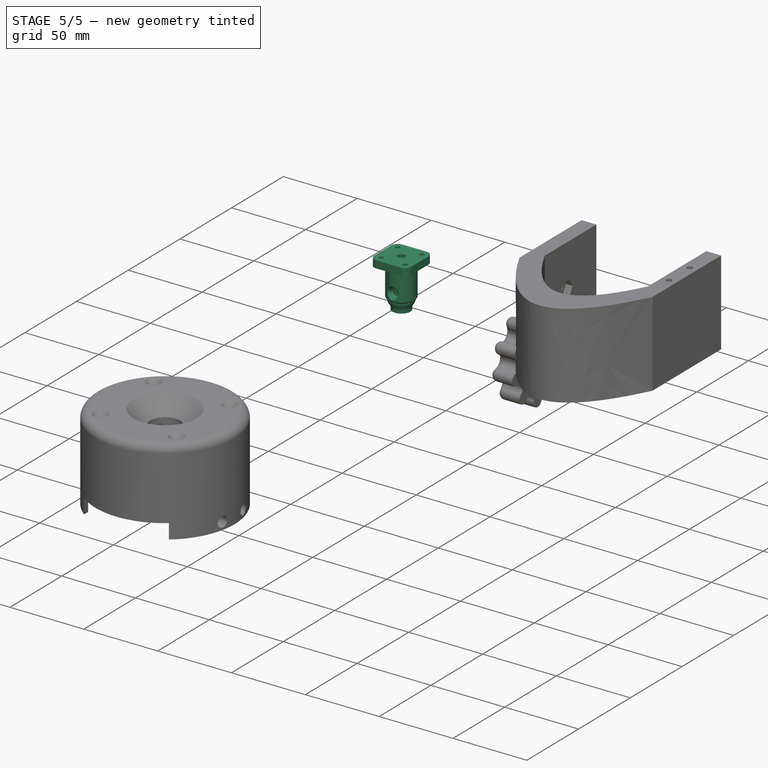
[diagram: stage 5 of 5 — iso view after this stage's code; geometry added in this stage tinted green]
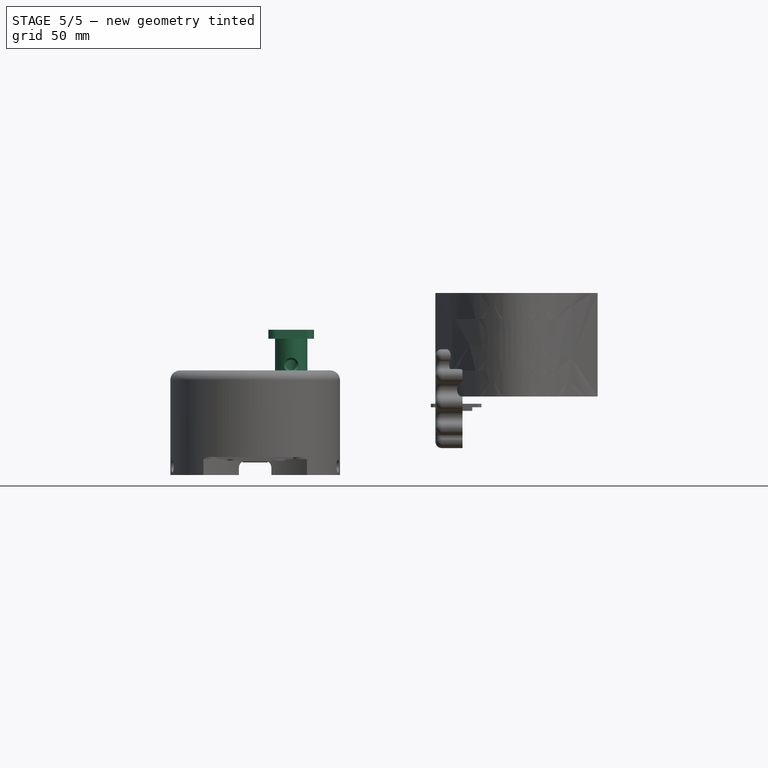
[diagram: stage 5 of 5 — front view after this stage's code; geometry added in this stage tinted green]
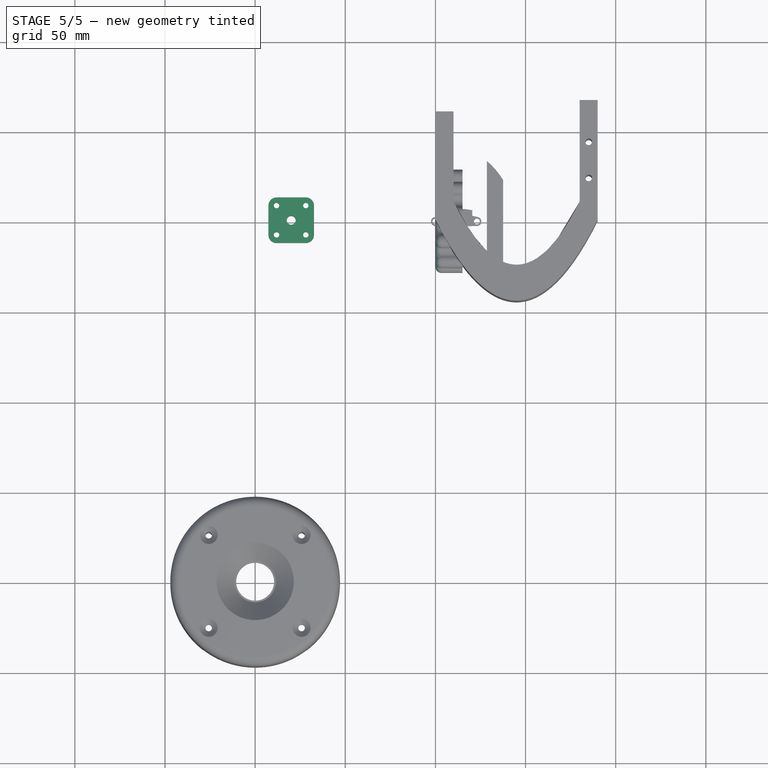
[diagram: stage 5 of 5 — top view after this stage's code; geometry added in this stage tinted green]
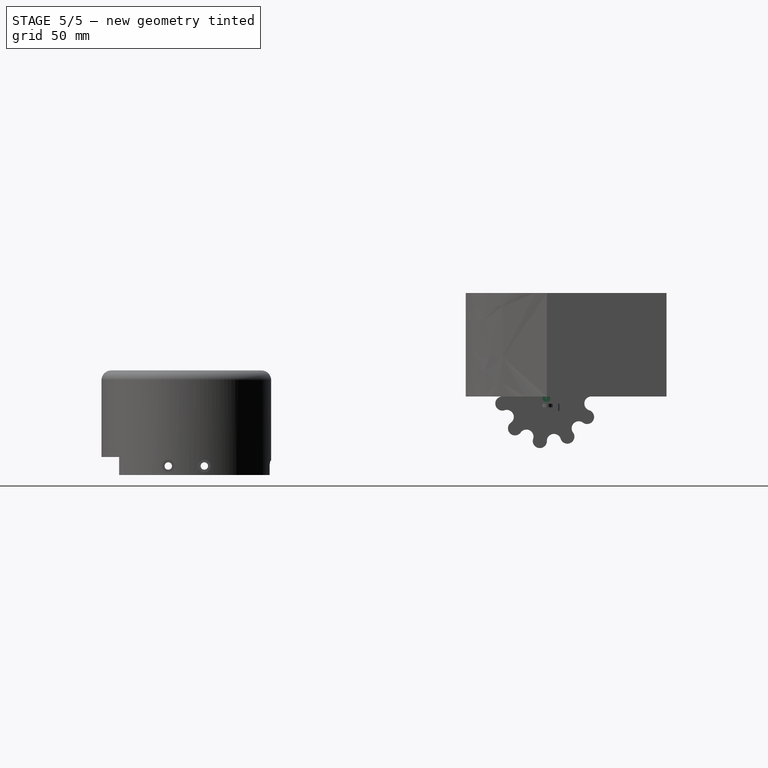
[diagram: stage 5 of 5 — right view after this stage's code; geometry added in this stage tinted green]
FEATURE [Sketcher::SketchObject] Sketch094
  ArcFitTolerance = 0
  AttachmentSupport = -> [XY_Plane012]
  FullyConstrained = true
  MakeInternals = false
  MapMode = 5
  sketch-geometry (1):
    g0: Circle CenterX=-80 CenterY=0 CenterZ=0 NormalX=0 NormalY=0 NormalZ=1 AngleXU=0 Radius=9
  constraints (3):
    c: PointOnObject(g0,g-1)
    c: Diameter(g0) = 18
    c: DistanceX(g0,g-1) = 80
FEATURE [PartDesign::Pad] Pad052
  Direction = (0,0,1)
  Length = 37
  Length2 = -22
  Profile = -> Sketch094
  ReferenceAxis = -> Sketch094 [N_Axis]
  Suppressed = false
  Type = 4
FEATURE [Sketcher::SketchObject] Sketch095
  ArcFitTolerance = 0
  AttachmentSupport = -> [Pad052]
  ExternalGeometry = -> [Pad052]
  FullyConstrained = true
  MakeInternals = false
  MapMode = 5
  Placement = pos=(0,0,37) rot=(0,0,1;0rad)
  sketch-geometry (17):
    g0: LineSegment StartX=-88.1317 StartY=12.6317 StartZ=0 EndX=-71.8683 EndY=12.6317 EndZ=0
    g1: LineSegment StartX=-67.3683 StartY=8.13173 StartZ=0 EndX=-67.3683 EndY=-8.13173 EndZ=0
    g2: LineSegment StartX=-71.8683 StartY=-12.6317 StartZ=0 EndX=-88.1317 EndY=-12.6317 EndZ=0
    g3: LineSegment StartX=-92.6317 StartY=-8.13173 StartZ=0 EndX=-92.6317 EndY=8.13173 EndZ=0
    g4: ArcOfCircle CenterX=-71.8683 CenterY=8.13173 CenterZ=0 NormalX=0 NormalY=0 NormalZ=1 AngleXU=0 Radius=4.5 StartAngle=0 EndAngle=1.5708
    g5: ArcOfCircle CenterX=-88.1317 CenterY=8.13173 CenterZ=0 NormalX=0 NormalY=0 NormalZ=1 AngleXU=0 Radius=4.5 StartAngle=1.5708 EndAngle=3.14159
    g6: ArcOfCircle CenterX=-88.1317 CenterY=-8.13173 CenterZ=0 NormalX=0 NormalY=0 NormalZ=1 AngleXU=0 Radius=4.5 StartAngle=3.14159 EndAngle=4.71239
    g7: ArcOfCircle CenterX=-71.8683 CenterY=-8.13173 CenterZ=0 NormalX=0 NormalY=0 NormalZ=1 AngleXU=0 Radius=4.5 StartAngle=4.71239 EndAngle=6.28319
    g8: Circle [constr] CenterX=-71.8683 CenterY=8.13173 CenterZ=0 NormalX=0 NormalY=0 NormalZ=1 AngleXU=0 Radius=2.5
    g9: LineSegment [constr] StartX=-71.8683 StartY=8.13173 StartZ=0 EndX=-88.1317 EndY=8.13173 EndZ=0
    g10: LineSegment [constr] StartX=-88.1317 StartY=8.13173 StartZ=0 EndX=-88.1317 EndY=-8.13173 EndZ=0
    g11: LineSegment [constr] StartX=-88.1317 StartY=-8.13173 StartZ=0 EndX=-71.8683 EndY=-8.13173 EndZ=0
    g12: LineSegment [constr] StartX=-71.8683 StartY=-8.13173 StartZ=0 EndX=-71.8683 EndY=8.13173 EndZ=0
    g13: Circle CenterX=-88.1317 CenterY=8.13173 CenterZ=0 NormalX=0 NormalY=0 NormalZ=1 AngleXU=0 Radius=1.5
    g14: Circle CenterX=-88.1317 CenterY=-8.13173 CenterZ=0 NormalX=0 NormalY=0 NormalZ=1 AngleXU=0 Radius=1.5
    g15: Circle CenterX=-71.8683 CenterY=-8.13173 CenterZ=0 NormalX=0 NormalY=0 NormalZ=1 AngleXU=0 Radius=1.5
    g16: Circle CenterX=-71.8683 CenterY=8.13173 CenterZ=0 NormalX=0 NormalY=0 NormalZ=1 AngleXU=0 Radius=1.5
  constraints (39):
    c: Horizontal(g0)
    c: Horizontal(g2)
    c: Vertical(g1)
    c: Vertical(g3)
    c: Tangent(g0,g4) = 1.5708
    c: Tangent(g1,g4) = 1.5708
    c: Tangent(g0,g5) = 1.5708
    c: Tangent(g3,g5) = 1.5708
    c: Tangent(g2,g6) = 1.5708
    c: Tangent(g3,g6) = 1.5708
    c: Tangent(g1,g7) = 1.5708
    c: Tangent(g2,g7) = 1.5708
    c: Equal(g4,g5)
    c: Equal(g5,g6)
    c: Equal(g6,g7)
    c: Tangent(g8,g-3)
    c: Coincident(g9,g10)
    c: Coincident(g10,g11)
    c: Coincident(g11,g12)
    c: Coincident(g12,g9)
    c: Horizontal(g9)
    c: Horizontal(g11)
    c: Vertical(g10)
    c: Vertical(g12)
    c: Coincident(g9,g8)
    c: Symmetric(g9,g11,g-3)
    c: Equal(g9,g10)
    c: Diameter(g8) = 5
    c: Coincident(g8,g4)
    c: Coincident(g6,g10)
    c: Coincident(g13,g5)
    c: Coincident(g14,g6)
    c: Coincident(g15,g7)
    c: Coincident(g16,g4)
    c: Diameter(g16) = 3
    c: Equal(g13,g16)
    c: Equal(g15,g14)
    c: Equal(g14,g13)
    c: Diameter(g4) = 9
FEATURE [PartDesign::Pad] Pad053
  BaseFeature = -> Pad052
  Direction = (0,0,1)
  Length = 5
  Length2 = 10
  Profile = -> Sketch095
  ReferenceAxis = -> Sketch095 [N_Axis]
  Reversed = true
  Suppressed = false
  Type = 0
FEATURE [Sketcher::SketchObject] Sketch096
  ArcFitTolerance = 0
  AttachmentSupport = -> [Pad053]
  ExternalGeometry = -> [Pad053]
  FullyConstrained = true
  MakeInternals = false
  MapMode = 5
  Placement = pos=(0,0,37) rot=(0,0,1;0rad)
  sketch-geometry (1):
    g0: Circle CenterX=-80 CenterY=0 CenterZ=0 NormalX=0 NormalY=0 NormalZ=1 AngleXU=0 Radius=2.5
  constraints (2):
    c: Coincident(g0,g-3)
    c: Diameter(g0) = 5
FEATURE [PartDesign::Pocket] Pocket055
  BaseFeature = -> Pad053
  Direction = (0,0,-1)
  Length = 5
  Length2 = 5
  Profile = -> Sketch096
  ReferenceAxis = -> Sketch096 [N_Axis]
  Suppressed = false
  Type = 1
FEATURE [Sketcher::SketchObject] Sketch097
  ArcFitTolerance = 0
  AttachmentSupport = -> [Pocket055]
  ExternalGeometry = -> [Pocket055]
  FullyConstrained = true
  MakeInternals = false
  MapMode = 5
  Placement = pos=(0,0,22) rot=(1,0,0;3.14159rad)
  sketch-geometry (2):
    g0: Circle CenterX=-80 CenterY=0 CenterZ=0 NormalX=0 NormalY=0 NormalZ=1 AngleXU=0 Radius=5
    g1: Circle CenterX=-80 CenterY=0 CenterZ=0 NormalX=0 NormalY=0 NormalZ=1 AngleXU=0 Radius=9
  constraints (4):
    c: Diameter(g0) = 10
    c: Coincident(g0,g-3)
    c: Coincident(g1,g0)
    c: Diameter(g1) = 18
FEATURE [Sketcher::SketchObject] Sketch098
  ArcFitTolerance = 0
  AttachmentSupport = -> [Pocket055]
  ExternalGeometry = -> [Pocket055]
  FullyConstrained = true
  MakeInternals = false
  MapMode = 5
  Placement = pos=(0,-12.6317,0) rot=(1,0,0;1.5708rad)
  sketch-geometry (4):
    g0: Circle CenterX=-80 CenterY=17.5 CenterZ=0 NormalX=0 NormalY=0 NormalZ=1 AngleXU=0 Radius=3
    g1: LineSegment [constr] StartX=-88.1317 StartY=32 StartZ=0 EndX=-80 EndY=32 EndZ=0
    g2: LineSegment [constr] StartX=-71.8683 StartY=32 StartZ=0 EndX=-80 EndY=32 EndZ=0
    g3: LineSegment [constr] StartX=-80 StartY=32 StartZ=0 EndX=-80 EndY=17.5 EndZ=0
  constraints (10):
    c: Diameter(g0) = 6
    c: DistanceY(g0,g-3) = 14.5
    c: Coincident(g1,g-3)
    c: PointOnObject(g1,g-3)
    c: Coincident(g2,g-3)
    c: Equal(g2,g1)
    c: Coincident(g2,g1)
    c: Coincident(g3,g1)
    c: Coincident(g3,g0)
    c: Vertical(g3)
FEATURE [PartDesign::Pad] Pad054
  BaseFeature = -> Pocket055
  Direction = (0,0,-1)
  Length = 10.5
  Length2 = 10
  Profile = -> Sketch097
  ReferenceAxis = -> Sketch097 [N_Axis]
  Suppressed = false
  Type = 0
FEATURE [PartDesign::Chamfer] Chamfer003
  Angle = 45
  Base = -> Pad054 [Edge17]
  BaseFeature = -> Pad054
  ChamferType = 0
  FlipDirection = false
  Size = 1
  Size2 = 1
  SupportTransform = false
  Suppressed = false
  UseAllEdges = false
FEATURE [PartDesign::Pocket] Pocket056
  BaseFeature = -> Chamfer003
  Direction = (0,1,-2e-16)
  Length = 5.63
  Length2 = 5
  Profile = -> Sketch098
  ReferenceAxis = -> Sketch098 [N_Axis]
  Suppressed = false
  Type = 0
FEATURE [PartDesign::Pocket] Pocket057
  BaseFeature = -> Pocket056
  Direction = (0,1,-3e-16)
  Length = 5
  Length2 = 5
  Profile = -> Pocket056 [Face7]
  Suppressed = false
  Type = 0
FEATURE [PartDesign::Chamfer] Chamfer004
  Angle = 45
  Base = -> Pocket057 [Edge4]
  BaseFeature = -> Pocket057
  ChamferType = 0
  FlipDirection = false
  Size = 1
  Size2 = 1
  SupportTransform = false
  Suppressed = false
  UseAllEdges = false
FEATURE [Sketcher::SketchObject] Sketch099
  ArcFitTolerance = 0
  AttachmentSupport = -> [Chamfer004]
  ExternalGeometry = -> [Chamfer004]
  FullyConstrained = false
  MakeInternals = false
  MapMode = 5
  Placement = pos=(0,0,11.5) rot=(1,0,0;3.14159rad)
  sketch-geometry (3):
    g0: Circle CenterX=-80 CenterY=0 CenterZ=0 NormalX=0 NormalY=0 NormalZ=1 AngleXU=0 Radius=8.00746
    g1: Circle CenterX=-80 CenterY=0 CenterZ=0 NormalX=0 NormalY=0 NormalZ=1 AngleXU=0 Radius=5
    g2: GeomPoint [constr] X=-75 Y=0 Z=0
  constraints (5):
    c: Coincident(g0,g-3)
    c: Coincident(g1,g0)
    c: PointOnObject(g2,g-1)
    c: PointOnObject(g2,g-3)
    c: PointOnObject(g2,g1)
FEATURE [PartDesign::Pad] Pad055
  BaseFeature = -> Chamfer004
  Direction = (0,0,-1)
  Length = 4
  Length2 = 10
  Profile = -> Sketch099
  ReferenceAxis = -> Sketch099 [N_Axis]
  Suppressed = false
  Type = 0
FEATURE [PartDesign::Chamfer] Chamfer005
  Angle = 45
  Base = -> Pad055 [Edge29]
  BaseFeature = -> Pad055
  ChamferType = 0
  FlipDirection = false
  Size = 2
  Size2 = 1
  SupportTransform = false
  Suppressed = false
  UseAllEdges = false
FEATURE [PartDesign::Pad] Pad056
  BaseFeature = -> Chamfer005
  Direction = (0,0,-1)
  Length = 3
  Length2 = 10
  Profile = -> Chamfer005 [Face4]
  Suppressed = false
  Type = 0
FEATURE [PartDesign::Chamfer] Chamfer006
  Angle = 45
  Base = -> Pad056 [Edge5]
  BaseFeature = -> Pad056
  ChamferType = 0
  FlipDirection = false
  Size = 1
  Size2 = 1
  SupportTransform = false
  Suppressed = false
  UseAllEdges = false
FEATURE [PartDesign::Chamfer] Chamfer007
  Angle = 45
  Base = -> Chamfer006 [Edge3]
  BaseFeature = -> Chamfer006
  ChamferType = 0
  FlipDirection = false
  Size = 1
  Size2 = 1
  SupportTransform = false
  Suppressed = false
  UseAllEdges = false
FEATURE [Sketcher::SketchObject] Sketch129
  ArcFitTolerance = 1e-06
  AttachmentSupport = -> [YZ_Plane018]
  FullyConstrained = true
  MakeInternals = false
  MapMode = 5
  Placement = pos=(0,0,0) rot=(0.57735,0.57735,0.57735;2.0944rad)
  sketch-geometry (1):
    g0: Circle CenterX=0 CenterY=0 CenterZ=0 NormalX=0 NormalY=0 NormalZ=1 AngleXU=0 Radius=15
  constraints (2):
    c: Diameter(g0) = 30
    c: Coincident(g0,g-1)
FEATURE [PartDesign::Pad] Pad067
  Direction = (1,0,0)
  Length = 5
  Length2 = 10
  Placement = pos=(0,0,0) rot=(1,1,1;2.0944rad)
  Profile = -> Sketch129
  ReferenceAxis = -> Sketch129 [N_Axis]
  Refine = true
  Suppressed = false
  Type = 0
FEATURE [Sketcher::SketchObject] Sketch130
  ArcFitTolerance = 1e-06
  AttachmentSupport = -> [Pad067]
  FullyConstrained = true
  MakeInternals = false
  MapMode = 5
  Placement = pos=(5,0,0) rot=(0.57735,0.57735,0.57735;2.0944rad)
  sketch-geometry (2):
    g0: Circle CenterX=0 CenterY=0 CenterZ=0 NormalX=0 NormalY=0 NormalZ=1 AngleXU=0 Radius=7.5
    g1: Circle CenterX=0 CenterY=0 CenterZ=0 NormalX=0 NormalY=0 NormalZ=1 AngleXU=0 Radius=3
  constraints (4):
    c: Coincident(g0,g-1)
    c: Diameter(g0) = 15
    c: Coincident(g1,g0)
    c: Diameter(g1) = 6
FEATURE [PartDesign::Pad] Pad068
  BaseFeature = -> Pad067
  Direction = (1,0,0)
  Length = 8
  Length2 = 10
  Placement = pos=(0,0,0) rot=(1,1,1;2.0944rad)
  Profile = -> Sketch130
  ReferenceAxis = -> Sketch130 [N_Axis]
  Refine = true
  Suppressed = false
  Type = 0
FEATURE [PartDesign::Fillet] Fillet001
  Base = -> Pad068 [Edge4]
  BaseFeature = -> Pad068
  Placement = pos=(0,0,0) rot=(1,1,1;2.0944rad)
  Radius = 7.49999
  Refine = true
  SupportTransform = false
  Suppressed = false
  UseAllEdges = false
FEATURE [Sketcher::SketchObject] Sketch133
  ArcFitTolerance = 1e-06
  AttachmentSupport = -> [Pocket085]
  FullyConstrained = true
  MakeInternals = false
  MapMode = 5
  Placement = pos=(0,0,0) rot=(0.57735,0.57735,-0.57735;4.18879rad)
  sketch-geometry (1):
    g0: Circle CenterX=0 CenterY=0 CenterZ=0 NormalX=0 NormalY=0 NormalZ=1 AngleXU=0 Radius=15
  constraints (2):
    c: Coincident(g0,g-1)
    c: Diameter(g0) = 30
FEATURE [PartDesign::Pocket] Pocket086
  BaseFeature = -> Pocket085
  Direction = (1,0,0)
  Length = 3
  Length2 = 5
  Placement = pos=(0,0,0) rot=(1,1,1;2.0944rad)
  Profile = -> Sketch133
  ReferenceAxis = -> Sketch133 [N_Axis]
  Refine = true
  Suppressed = false
  Type = 0
FEATURE [PartDesign::Fillet] Fillet002
  Base = -> Pocket086 [Edge3,Edge12,Edge16,Edge11,Edge15,Edge19,Edge23,Edge27,Edge24,Edge20]
  BaseFeature = -> Pocket086
  Placement = pos=(0,0,0) rot=(1,1,1;2.0944rad)
  Radius = 3.5
  Refine = true
  SupportTransform = false
  Suppressed = false
  UseAllEdges = false
FEATURE [PartDesign::Fillet] Fillet
  Base = -> Fillet002 [Edge65,Edge72,Edge57,Edge49,Edge41,Edge7,Edge34,Edge48,Edge56,Edge64]
  BaseFeature = -> Fillet002
  Placement = pos=(0,0,0) rot=(1,1,1;2.0944rad)
  Radius = 3
  Refine = true
  SupportTransform = false
  Suppressed = false
  UseAllEdges = false
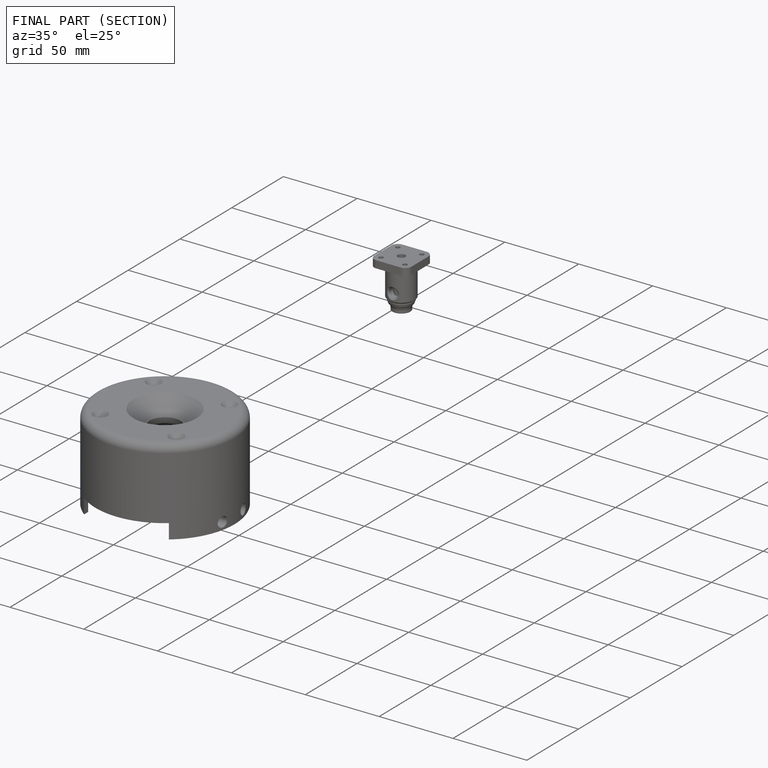
[diagram: finished part — half-section view (interior)]
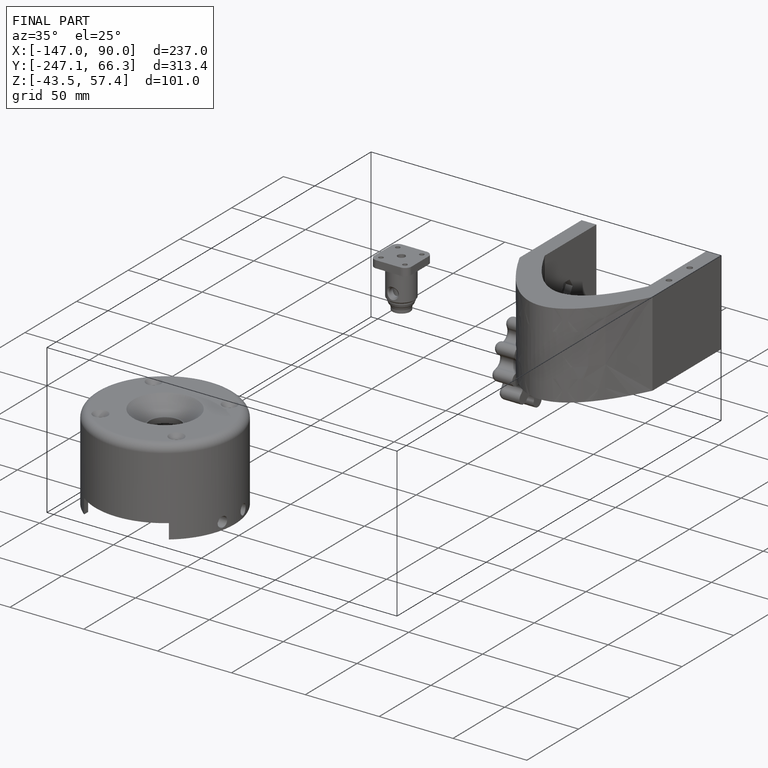
[diagram: finished part — iso view with bounding-box wireframe]
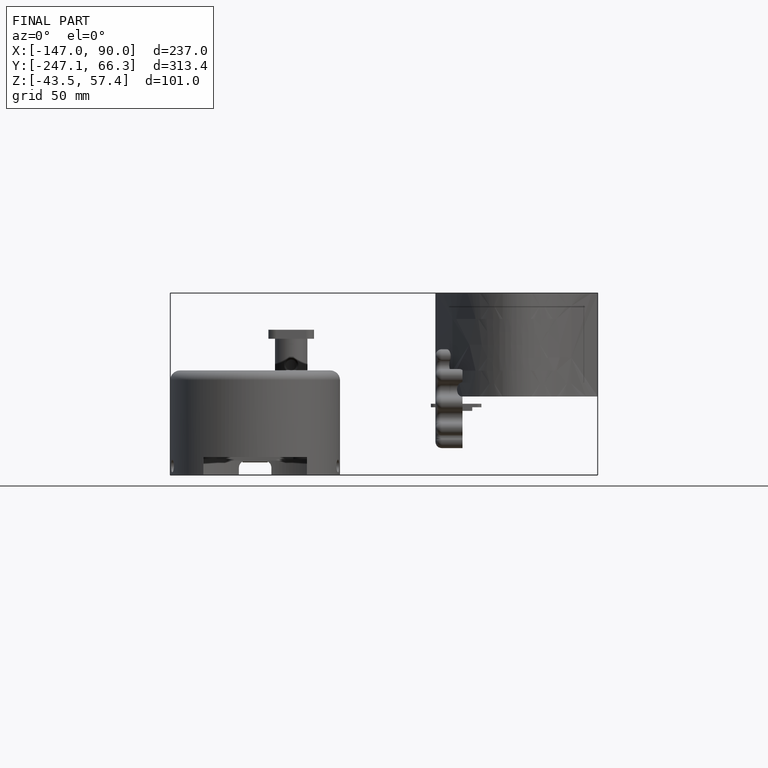
[diagram: finished part — front view with bounding-box wireframe]
